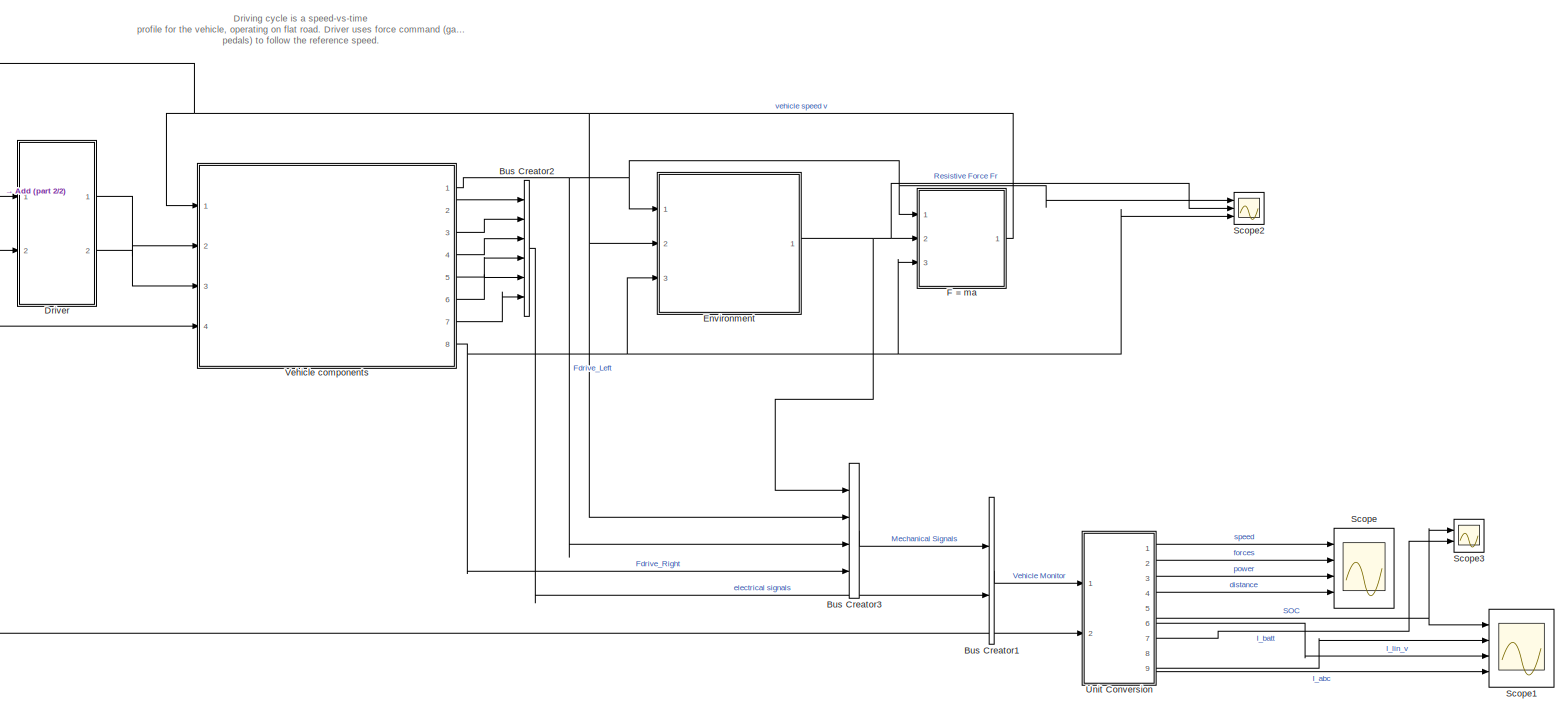
[diagram: root canvas - part 1/2, right side, full height]
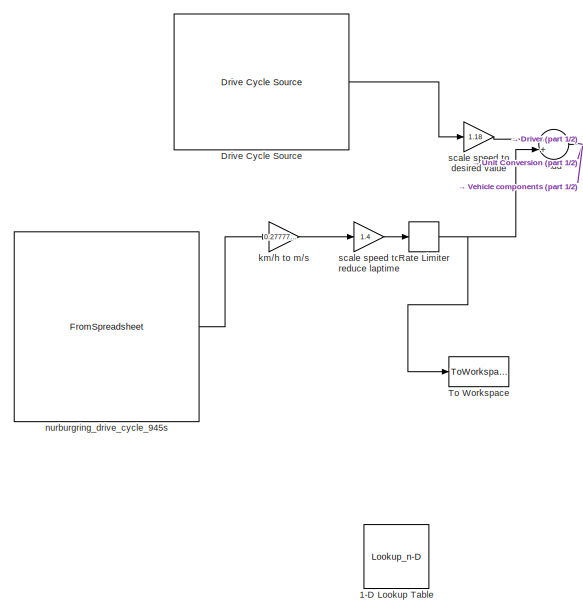
[diagram: root canvas - part 2/2, left side, full height]
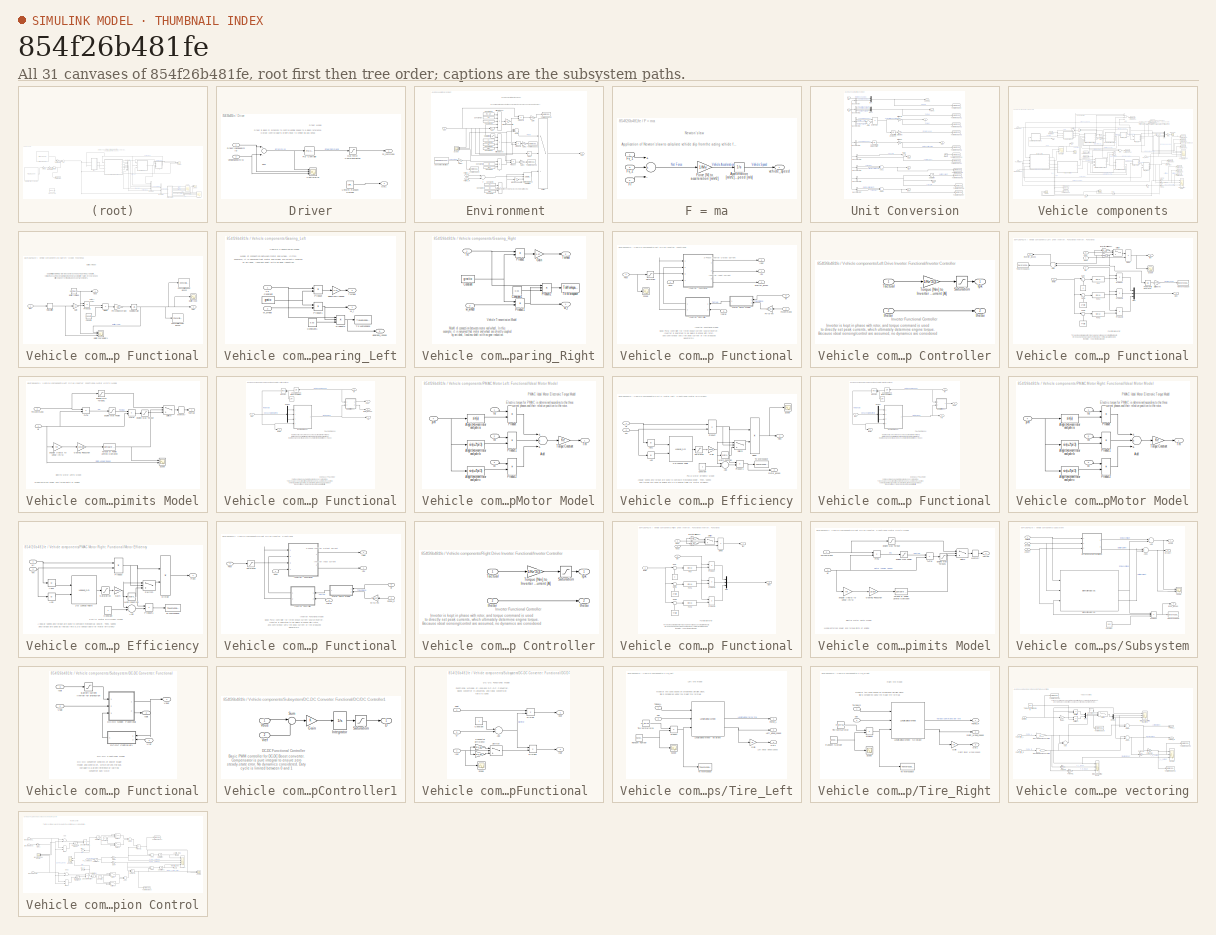
[diagram: thumbnail index - all 31 canvases of the model, root first then tree order]
MODEL slx_854f26b481fe
KIND model
CONFIG AbsTol = auto
CONFIG EnableMultiTasking = off
CONFIG FixedStep = auto
CONFIG MaxStep = auto
CONFIG MinStep = 1e-4
CONFIG RelTol = 3e-2
CONFIG SampleTimeConstraint = Unconstrained
CONFIG Solver = VariableStepAuto
CONFIG SolverName = VariableStepAuto
CONFIG StartTime = 0.0
CONFIG StopTime = 1400.0
BLOCK [Lookup_n-D] 1-D Lookup Table
  BreakpointsForDimension1 = [-5:5]
  InternalRulePriority = Speed
  NumberOfTableDimensions = 1
  Ports = [1, 1]
  RndMeth = Simplest
  Table = tanh([-5:5])
BLOCK [Sum] Add
  InputSameDT = off
  OutDataTypeStr = Inherit: Inherit via internal rule
  Ports = [2, 1]
  SaturateOnIntegerOverflow = off
BLOCK [BusCreator] Bus Creator1
  DisplayOption = bar
  InheritFromInputs = on
  Inputs = 2
  Ports = [2, 1]
BLOCK [BusCreator] Bus Creator2
  DisplayOption = bar
  InheritFromInputs = on
  Inputs = 6
  Ports = [6, 1]
BLOCK [BusCreator] Bus Creator3
  DisplayOption = bar
  InheritFromInputs = on
  Inputs = 4
  Ports = [4, 1]
BLOCK [Reference] Drive Cycle Source  REF=autolibshared/Drive Cycle Source
  AttributesFormatString = %<cycleVar> (%<tfinal>)
  Commented = on
  Ports = [0, 1]
  SourceBlock = autolibshared/Drive Cycle Source
  SourceProductBaseCode = PW
  SourceProductName = Powertrain Blockset
  SourceType = Drive Cycle Source
BLOCK [SubSystem] Driver
  AncestorBlock = Driver_Glider_Library/Driver
  Ports = [2, 2]
  RequestExecContextInheritance = off
BLOCK [Scope] Driver/Control error
  Floating = off
  NumInputPorts = 3
  Ports = [3]
  ScopeSpecificationString = Simulink.scopes.TimeScopeBlockCfg('CurrentConfiguration', extmgr.ConfigurationSet(extmgr.Configuration('Core','General UI',true),extmgr.Configuration('Core','Source UI',true),extmgr.Configuration('Sources','WiredSimulink',true,'DataLoggingVariableName','ScopeData6'),extmgr.Configuration('Visuals','Time Domain',true,'SerializedDisplays',{struct('MinYLimReal','-14.32197','MaxYLimReal','28.11068','YL...<+1442ch>
BLOCK [Inport] Driver/DriveCycleSpeed[m//s]
  IconDisplay = Port number
BLOCK [Outport] Driver/Fv_command
  IconDisplay = Port number
BLOCK [Saturate] Driver/Max Force Command limiter
  InputPortMap = u0
  LowerLimit = -Fv_max*2
  Ports = [1, 1]
  UpperLimit = Fv_max*12
BLOCK [Outport] Driver/Out1
  IconDisplay = Port number
  Port = 2
BLOCK [Reference] Driver/PID Controller  REF=simulink/Continuous/PID Controller
  Ports = [1, 1]
  SourceBlock = simulink/Continuous/PID Controller
  SourceProductBaseCode = SL
  SourceProductName = Simulink
  SourceType = PID 1dof
BLOCK [Sum] Driver/Sum
  InputSameDT = off
  Inputs = +-
  OutDataTypeStr = Inherit: Inherit via internal rule
  Ports = [2, 1]
  SaturateOnIntegerOverflow = off
BLOCK [UniformRandomNumber] Driver/Uniform Random Number
  Maximum = 90
  Minimum = -90
  SampleTime = 1
BLOCK [Inport] Driver/VehicleSpeed[m//s]
  IconDisplay = Port number
  Port = 2
BLOCK [SubSystem] Environment 
  Ports = [3, 1]
  RequestExecContextInheritance = off
BLOCK [Product] Environment /   
  Inputs = 3
  Ports = [3, 1]
  RndMeth = Floor
BLOCK [Product] Environment /   1
  Inputs = 3
  Ports = [3, 1]
  RndMeth = Floor
BLOCK [Sum] Environment /   2
  InputSameDT = off
  OutDataTypeStr = Inherit: Inherit via internal rule
  Ports = [2, 1]
  SaturateOnIntegerOverflow = off
BLOCK [Abs] Environment /Abs
BLOCK [Abs] Environment /Abs1
  SaturateOnIntegerOverflow = off
BLOCK [Gain] Environment /Bromsande kraft1
  Gain = 1/2
BLOCK [Gain] Environment /Bromsande kraft2
  Gain = -1
BLOCK [Constant] Environment /Constant1
  Value = grav
BLOCK [Constant] Environment /Constant13
  Value = rho_air
BLOCK [Constant] Environment /Constant14
  Value = grav
BLOCK [Constant] Environment /Constant15
  Value = Mv
BLOCK [Constant] Environment /Constant16
  Value = Cd
BLOCK [Constant] Environment /Constant18
  Value = Cr
BLOCK [Constant] Environment /Constant19
  Value = Av
BLOCK [Constant] Environment /Constant2
  Value = Mv
BLOCK [Constant] Environment /Constant3
  Value = Cr
BLOCK [Constant] Environment /Constant4
  Value = 9.81
BLOCK [Constant] Environment /Constant5
  Value = Mv
BLOCK [Inport] Environment /Fdrive_L
  IconDisplay = Port number
BLOCK [Inport] Environment /Fdrive_R
  IconDisplay = Port number
  Port = 3
BLOCK [Outport] Environment /Fres
  IconDisplay = Port number
  InitialOutput = 0
BLOCK [Gain] Environment /Gain
  Gain = 0.001
  OutDataTypeStr = Inherit: Inherit via internal rule
  ParamDataTypeStr = Inherit: Inherit via internal rule
  SaturateOnIntegerOverflow = off
BLOCK [Gain] Environment /Gain1
  Gain = 0.01
  OutDataTypeStr = Inherit: Inherit via internal rule
  ParamDataTypeStr = Inherit: Inherit via internal rule
  SaturateOnIntegerOverflow = off
BLOCK [Gain] Environment /Gain2
  Gain = 0.001
  OutDataTypeStr = Inherit: Inherit via internal rule
  ParamDataTypeStr = Inherit: Inherit via internal rule
  SaturateOnIntegerOverflow = off
BLOCK [Gain] Environment /Gain3
  Gain = 0.001
  OutDataTypeStr = Inherit: Inherit via internal rule
  ParamDataTypeStr = Inherit: Inherit via internal rule
  SaturateOnIntegerOverflow = off
BLOCK [Product] Environment /Product
  InputSameDT = off
  OutDataTypeStr = Inherit: Inherit via internal rule
  Ports = [2, 1]
  RndMeth = Floor
  SaturateOnIntegerOverflow = off
BLOCK [Product] Environment /Product1
  InputSameDT = off
  OutDataTypeStr = Inherit: Inherit via internal rule
  Ports = [2, 1]
  RndMeth = Floor
  SaturateOnIntegerOverflow = off
BLOCK [Product] Environment /Product2
  InputSameDT = off
  OutDataTypeStr = Inherit: Inherit via internal rule
  Ports = [2, 1]
  RndMeth = Floor
  SaturateOnIntegerOverflow = off
BLOCK [Reference] Environment /Roll Resistance Saturation  REF=simulink/Discontinuities/Saturation
Dynamic
  Ports = [3, 1]
  SourceBlock = simulink/Discontinuities/Saturation\nDynamic
  SourceProductBaseCode = SL
  SourceProductName = Simulink
  SourceType = Saturation Dynamic
BLOCK [Saturate] Environment /Saturation
  InputPortMap = u0
  LowerLimit = -1
  Ports = [1, 1]
  UpperLimit = 1
BLOCK [Scope] Environment /Scope
  Floating = off
  NumInputPorts = 3
  Ports = [3]
  ScopeSpecificationString = Simulink.scopes.TimeScopeBlockCfg('CurrentConfiguration', extmgr.ConfigurationSet(extmgr.Configuration('Core','General UI',true),extmgr.Configuration('Core','Source UI',true),extmgr.Configuration('Sources','WiredSimulink',true,'DataLoggingVariableName','ScopeData2'),extmgr.Configuration('Visuals','Time Domain',true,'SerializedDisplays',{struct('MinYLimReal','-0.4364','MaxYLimReal','0.34971','YLabe...<+1517ch>
BLOCK [Sum] Environment /Sum1
  Inputs = +++
  Ports = [3, 1]
BLOCK [Switch] Environment /Switch
  InputSameDT = off
  SaturateOnIntegerOverflow = off
BLOCK [ToWorkspace] Environment /To Workspace
  FixptAsFi = on
  MaxDataPoints = inf
  Ports = [1]
  SampleTime = -1
  Save2DSignal = 3-D array (concatenate along third dimension)
  SaveFormat = Structure With Time
  VariableName = slope
BLOCK [ToWorkspace] Environment /To Workspace1
  FixptAsFi = on
  MaxDataPoints = inf
  Ports = [1]
  SampleTime = s_time
  Save2DSignal = 3-D array (concatenate along third dimension)
  SaveFormat = Structure With Time
  VariableName = rolling_losses
BLOCK [ToWorkspace] Environment /To Workspace2
  FixptAsFi = on
  MaxDataPoints = inf
  Ports = [1]
  SampleTime = s_time
  Save2DSignal = 3-D array (concatenate along third dimension)
  SaveFormat = Structure With Time
  VariableName = aero_losses
BLOCK [ToWorkspace] Environment /To Workspace3
  FixptAsFi = on
  MaxDataPoints = inf
  Ports = [1]
  SampleTime = s_time
  Save2DSignal = 3-D array (concatenate along third dimension)
  SaveFormat = Structure With Time
  VariableName = incline_losses
BLOCK [Inport] Environment /Vev
  IconDisplay = Port number
  Port = 2
BLOCK [Product] Environment /air resistance
  Inputs = 5
  Ports = [5, 1]
  RndMeth = Floor
BLOCK [Product] Environment /roll resistance
  Inputs = 4
  Ports = [4, 1]
  RndMeth = Floor
BLOCK [FromSpreadsheet] Environment /slope profice of test track
  FileName = nurburg_data.xlsx
  OutDataTypeStr = double
  Ports = [0, 1]
  Range = d11:d844, i11:i844
  SampleTime = s_time
BLOCK [SubSystem] F = ma
  Ports = [3, 1]
  RequestExecContextInheritance = off
BLOCK [Sum] F = ma/   
  InputSameDT = off
  Inputs = ++-
  OutDataTypeStr = Inherit: Inherit via internal rule
  Ports = [3, 1]
  SaturateOnIntegerOverflow = off
BLOCK [Integrator] F = ma/Acceleration [m//s^2] to speed [m//s]
  Ports = [1, 1]
BLOCK [Gain] F = ma/Force [N] to acceleration [m//s^2]
  Gain = 1/Mv
  OutDataTypeStr = Inherit: Inherit via internal rule
  ParamDataTypeStr = Inherit: Inherit via internal rule
  SaturateOnIntegerOverflow = off
BLOCK [Inport] F = ma/Fr
  IconDisplay = Port number
  Port = 2
BLOCK [Inport] F = ma/Fv_1
  IconDisplay = Port number
BLOCK [Inport] F = ma/Fv_2
  IconDisplay = Port number
  Port = 3
BLOCK [Outport] F = ma/vehicle_speed
  IconDisplay = Port number
BLOCK [RateLimiter] Rate Limiter
  FallingSlewLimit = -2
  RisingSlewLimit = 2
  SampleTimeMode = inherited
BLOCK [Scope] Scope
  Floating = off
  NumInputPorts = 4
  Ports = [4]
  ScopeSpecificationString = Simulink.scopes.TimeScopeBlockCfg('CurrentConfiguration', extmgr.ConfigurationSet(extmgr.Configuration('Core','General UI',true),extmgr.Configuration('Core','Source UI',true),extmgr.Configuration('Sources','WiredSimulink',true,'DataLoggingSaveFormat','StructureWithTime','DataLoggingDecimation','1','DataLoggingDecimateData',true,'DataLoggingVariableName','ScopeData1'),extmgr.Configuration('Visuals'...<+3729ch>
BLOCK [Scope] Scope1
  Floating = off
  NumInputPorts = 4
  Ports = [4]
  ScopeSpecificationString = Simulink.scopes.TimeScopeBlockCfg('CurrentConfiguration', extmgr.ConfigurationSet(extmgr.Configuration('Core','General UI',true),extmgr.Configuration('Core','Source UI',true),extmgr.Configuration('Sources','WiredSimulink',true,'DataLoggingSaveFormat','StructureWithTime','DataLoggingDecimation','1','DataLoggingDecimateData',true),extmgr.Configuration('Visuals','Time Domain',true,'SerializedDisplays...<+3013ch>
BLOCK [Scope] Scope2
  Floating = off
  NumInputPorts = 3
  Ports = [3]
  ScopeSpecificationString = Simulink.scopes.TimeScopeBlockCfg('CurrentConfiguration', extmgr.ConfigurationSet(extmgr.Configuration('Core','General UI',true),extmgr.Configuration('Core','Source UI',true),extmgr.Configuration('Sources','WiredSimulink',true,'DataLoggingVariableName','ScopeData1'),extmgr.Configuration('Visuals','Time Domain',true,'SerializedDisplays',{struct('MinYLimReal','-3677.87871','MaxYLimReal','3831.6785',...<+1520ch>
BLOCK [Scope] Scope3
  Floating = off
  NumInputPorts = 2
  Ports = [2]
  ScopeSpecificationString = Simulink.scopes.TimeScopeBlockCfg('CurrentConfiguration', extmgr.ConfigurationSet(extmgr.Configuration('Core','General UI',true),extmgr.Configuration('Core','Source UI',true),extmgr.Configuration('Sources','WiredSimulink',true,'DataLoggingVariableName','ScopeData3'),extmgr.Configuration('Visuals','Time Domain',true,'SerializedDisplays',{struct('MinYLimReal','-690.75843','MaxYLimReal','4585.55269',...<+1418ch>
BLOCK [ToWorkspace] To Workspace
  Decimation = 2
  FixptAsFi = on
  MaxDataPoints = inf
  Ports = [1]
  SampleTime = -1
  Save2DSignal = 3-D array (concatenate along third dimension)
  SaveFormat = Structure With Time
  VariableName = nurburg_drive_cycle
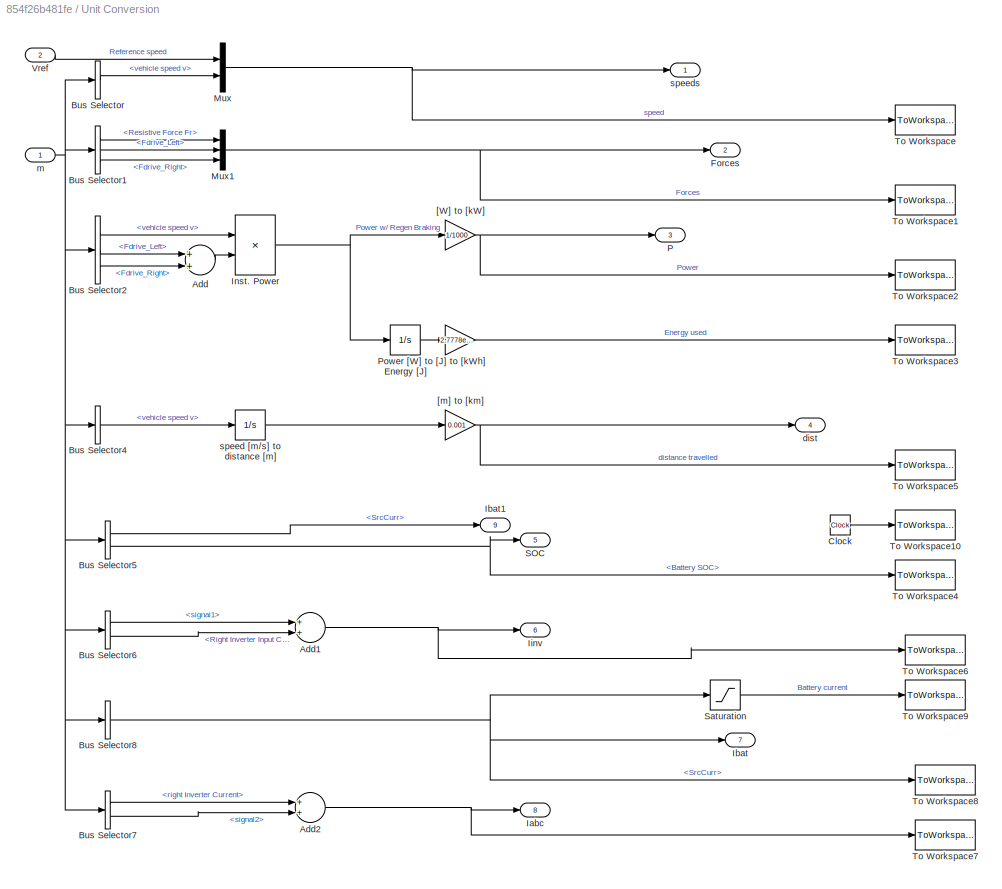
BLOCK [SubSystem] Unit Conversion
  Ports = [2, 9]
  RequestExecContextInheritance = off
BLOCK [Sum] Unit Conversion/Add
  InputSameDT = off
  OutDataTypeStr = Inherit: Inherit via internal rule
  Ports = [2, 1]
  SaturateOnIntegerOverflow = off
BLOCK [Sum] Unit Conversion/Add1
  InputSameDT = off
  OutDataTypeStr = Inherit: Inherit via internal rule
  Ports = [2, 1]
  SaturateOnIntegerOverflow = off
BLOCK [Sum] Unit Conversion/Add2
  InputSameDT = off
  OutDataTypeStr = Inherit: Inherit via internal rule
  Ports = [2, 1]
  SaturateOnIntegerOverflow = off
BLOCK [BusSelector] Unit Conversion/Bus Selector
  OutputAsBus = off
  OutputSignals = Mechanical Signals.vehicle speed v
  Ports = [1, 1]
BLOCK [BusSelector] Unit Conversion/Bus Selector1
  OutputAsBus = off
  OutputSignals = Mechanical Signals.Resistive Force Fr,Mechanical Signals.Fdrive_Left,Mechanical Signals.Fdrive_Right
  Ports = [1, 3]
BLOCK [BusSelector] Unit Conversion/Bus Selector2
  OutputAsBus = off
  OutputSignals = Mechanical Signals.vehicle speed v,Mechanical Signals.Fdrive_Left,Mechanical Signals.Fdrive_Right
  Ports = [1, 3]
BLOCK [BusSelector] Unit Conversion/Bus Selector4
  OutputAsBus = off
  OutputSignals = Mechanical Signals.vehicle speed v
  Ports = [1, 1]
BLOCK [BusSelector] Unit Conversion/Bus Selector5
  OutputAsBus = off
  OutputSignals = electrical signals.SrcCurr,electrical signals.Battery SOC
  Ports = [1, 2]
BLOCK [BusSelector] Unit Conversion/Bus Selector6
  OutputAsBus = off
  OutputSignals = electrical signals.signal1,electrical signals.Right Inverter Input Current
  Ports = [1, 2]
BLOCK [BusSelector] Unit Conversion/Bus Selector7
  OutputAsBus = off
  OutputSignals = electrical signals.right Inverter Current,electrical signals.signal2
  Ports = [1, 2]
BLOCK [BusSelector] Unit Conversion/Bus Selector8
  OutputAsBus = off
  OutputSignals = electrical signals.SrcCurr
  Ports = [1, 1]
BLOCK [Clock] Unit Conversion/Clock
BLOCK [Outport] Unit Conversion/Forces
  IconDisplay = Port number
  Port = 2
BLOCK [Outport] Unit Conversion/Iabc
  IconDisplay = Port number
  Port = 8
BLOCK [Outport] Unit Conversion/Ibat
  IconDisplay = Port number
  Port = 7
BLOCK [Outport] Unit Conversion/Ibat1
  IconDisplay = Port number
  Port = 9
BLOCK [Outport] Unit Conversion/Iinv
  IconDisplay = Port number
  Port = 6
BLOCK [Product] Unit Conversion/Inst. Power
  InputSameDT = off
  OutDataTypeStr = Inherit: Inherit via internal rule
  Ports = [2, 1]
  SaturateOnIntegerOverflow = off
BLOCK [Mux] Unit Conversion/Mux
  DisplayOption = bar
  Inputs = 2
  Ports = [2, 1]
BLOCK [Mux] Unit Conversion/Mux1
  DisplayOption = bar
  Inputs = 3
  Ports = [3, 1]
BLOCK [Outport] Unit Conversion/P
  IconDisplay = Port number
  Port = 3
BLOCK [Integrator] Unit Conversion/Power [W] to Energy [J]
  Ports = [1, 1]
BLOCK [Outport] Unit Conversion/SOC
  IconDisplay = Port number
  Port = 5
BLOCK [Saturate] Unit Conversion/Saturation
  InputPortMap = u0
  LowerLimit = 0
  Ports = [1, 1]
  UpperLimit = 1000
BLOCK [ToWorkspace] Unit Conversion/To Workspace
  MaxDataPoints = inf
  Ports = [1]
  SampleTime = s_time
  SaveFormat = Structure With Time
  VariableName = speeds
BLOCK [ToWorkspace] Unit Conversion/To Workspace1
  MaxDataPoints = inf
  Ports = [1]
  SampleTime = s_time
  SaveFormat = Structure With Time
  VariableName = Forces
BLOCK [ToWorkspace] Unit Conversion/To Workspace10
  Decimation = 3
  MaxDataPoints = inf
  Ports = [1]
  SampleTime = tstep
  Save2DSignal = 2-D array (concatenate along first dimension)
  VariableName = t_step
BLOCK [ToWorkspace] Unit Conversion/To Workspace2
  MaxDataPoints = inf
  Ports = [1]
  SampleTime = s_time
  SaveFormat = Structure With Time
  VariableName = P_single
BLOCK [ToWorkspace] Unit Conversion/To Workspace3
  MaxDataPoints = inf
  Ports = [1]
  SampleTime = s_time
  SaveFormat = Structure With Time
  VariableName = E_single
BLOCK [ToWorkspace] Unit Conversion/To Workspace4
  MaxDataPoints = inf
  Ports = [1]
  SampleTime = s_time
  Save2DSignal = 2-D array (concatenate along first dimension)
  SaveFormat = Structure With Time
  VariableName = SOC_single
BLOCK [ToWorkspace] Unit Conversion/To Workspace5
  MaxDataPoints = inf
  Ports = [1]
  SampleTime = tstep
  Save2DSignal = 2-D array (concatenate along first dimension)
  SaveFormat = Structure With Time
  VariableName = dist_single
BLOCK [ToWorkspace] Unit Conversion/To Workspace6
  MaxDataPoints = inf
  Ports = [1]
  SampleTime = s_time
  SaveFormat = Structure With Time
  VariableName = Iinv
BLOCK [ToWorkspace] Unit Conversion/To Workspace7
  MaxDataPoints = inf
  Ports = [1]
  SampleTime = s_time
  SaveFormat = Structure With Time
  VariableName = Iabc
BLOCK [ToWorkspace] Unit Conversion/To Workspace8
  MaxDataPoints = inf
  Ports = [1]
  SampleTime = s_time
  SaveFormat = Structure With Time
  VariableName = Ibat
BLOCK [ToWorkspace] Unit Conversion/To Workspace9
  MaxDataPoints = inf
  Ports = [1]
  SampleTime = s_time
  SaveFormat = Structure With Time
  VariableName = Ibat1
BLOCK [Inport] Unit Conversion/Vref
  IconDisplay = Port number
  Port = 2
BLOCK [Gain] Unit Conversion/[J] to [kWh]
  Gain = 2.7778e-7
  OutDataTypeStr = Inherit: Inherit via internal rule
  ParamDataTypeStr = Inherit: Inherit via internal rule
  SaturateOnIntegerOverflow = off
BLOCK [Gain] Unit Conversion/[W] to [kW]
  Gain = 1/1000
  OutDataTypeStr = Inherit: Inherit via internal rule
  ParamDataTypeStr = Inherit: Inherit via internal rule
  SaturateOnIntegerOverflow = off
BLOCK [Gain] Unit Conversion/[m] to [km]
  Gain = 0.001
  OutDataTypeStr = Inherit: Inherit via internal rule
  ParamDataTypeStr = Inherit: Inherit via internal rule
  SaturateOnIntegerOverflow = off
BLOCK [Outport] Unit Conversion/dist
  IconDisplay = Port number
  Port = 4
BLOCK [Inport] Unit Conversion/m
  IconDisplay = Port number
BLOCK [Integrator] Unit Conversion/speed [m//s] to distance [m]
  Ports = [1, 1]
BLOCK [Outport] Unit Conversion/speeds
  IconDisplay = Port number
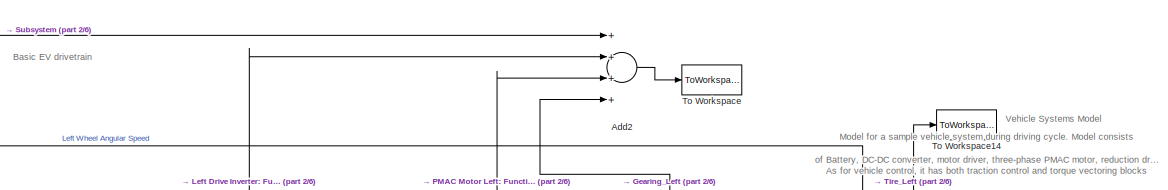
[diagram: Vehicle components - part 1/6, top center region]
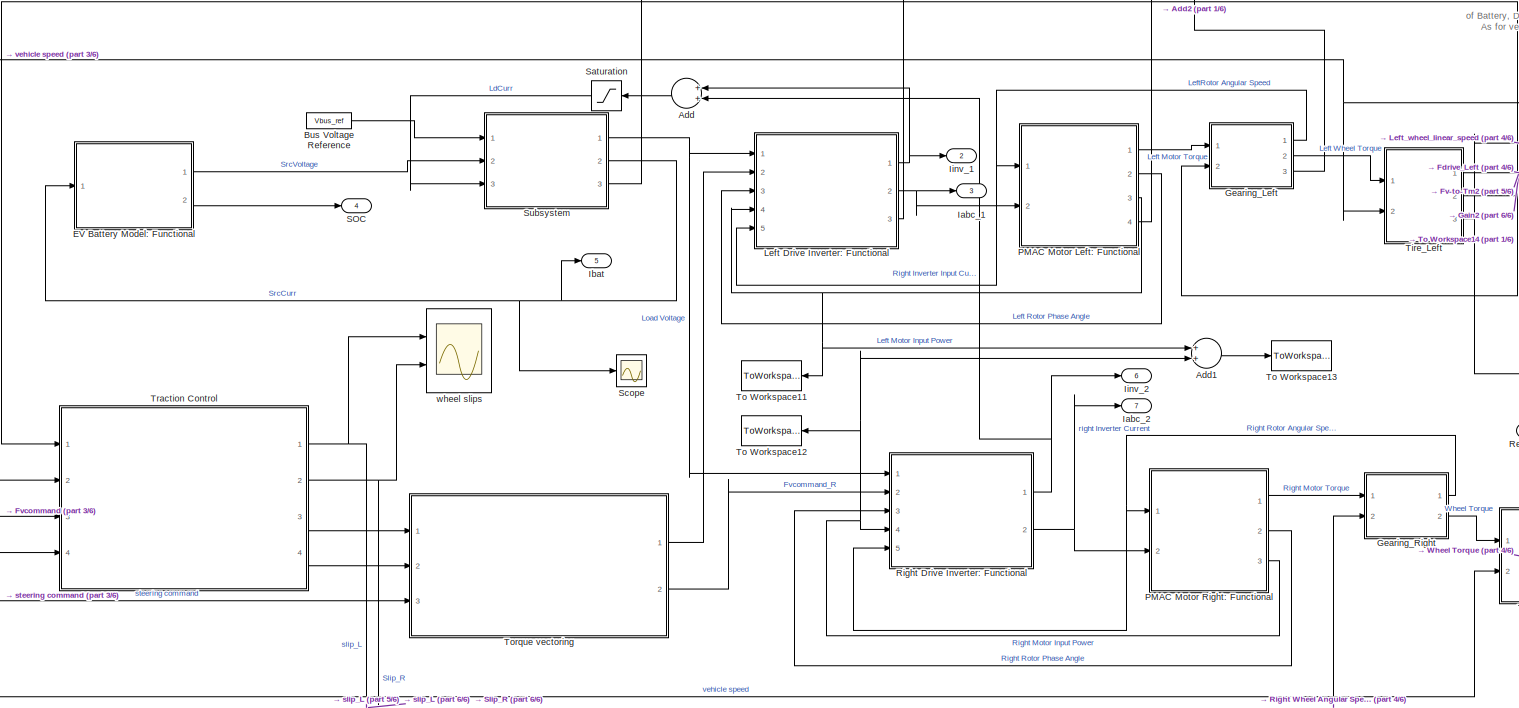
[diagram: Vehicle components - part 2/6, central region]
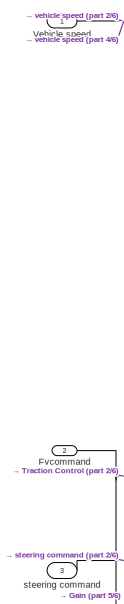
[diagram: Vehicle components - part 3/6, middle left region]
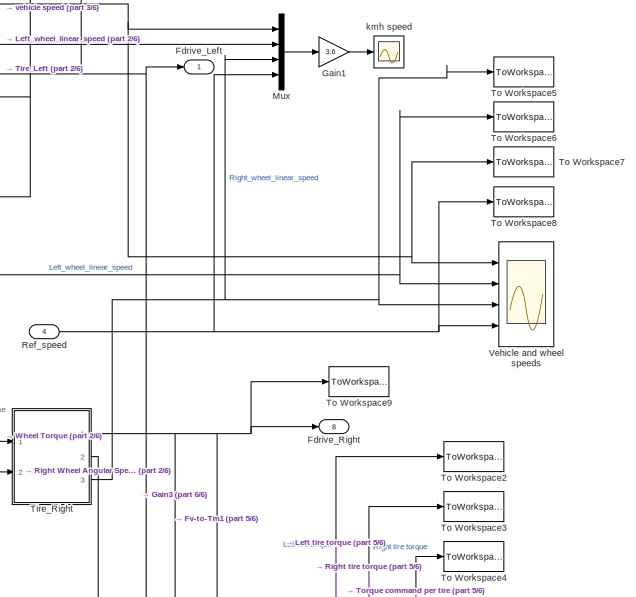
[diagram: Vehicle components - part 4/6, middle right region]
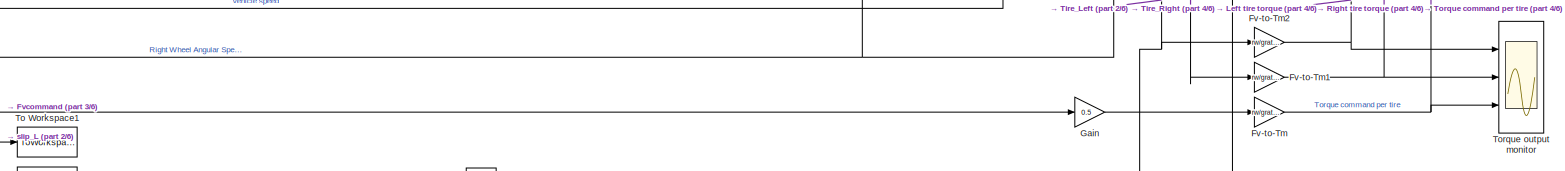
[diagram: Vehicle components - part 5/6, bottom center region]
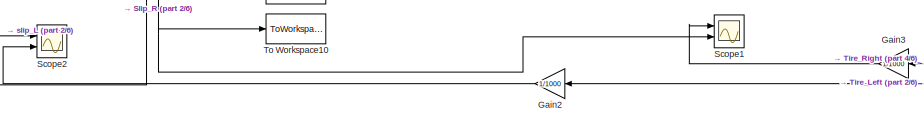
[diagram: Vehicle components - part 6/6, bottom center region]
BLOCK [SubSystem] Vehicle components
  Ports = [4, 8]
  RequestExecContextInheritance = off
BLOCK [Sum] Vehicle components/Add
  InputSameDT = off
  OutDataTypeStr = Inherit: Inherit via internal rule
  Ports = [2, 1]
  SaturateOnIntegerOverflow = off
BLOCK [Sum] Vehicle components/Add1
  InputSameDT = off
  OutDataTypeStr = Inherit: Inherit via internal rule
  Ports = [2, 1]
  SaturateOnIntegerOverflow = off
BLOCK [Sum] Vehicle components/Add2
  InputSameDT = off
  Inputs = ++++
  OutDataTypeStr = Inherit: Inherit via internal rule
  Ports = [4, 1]
  SaturateOnIntegerOverflow = off
BLOCK [Constant] Vehicle components/Bus Voltage Reference
  Value = Vbus_ref
BLOCK [SubSystem] Vehicle components/EV Battery Model: Functional
  Ports = [1, 2]
  RequestExecContextInheritance = off
BLOCK [Scope] Vehicle components/EV Battery Model: Functional/Battery SOC 
  Floating = off
  NumInputPorts = 1
  Ports = [1]
  ScopeSpecificationString = Simulink.scopes.TimeScopeBlockCfg('CurrentConfiguration', extmgr.ConfigurationSet(extmgr.Configuration('Core','General UI',true),extmgr.Configuration('Core','Source UI',true),extmgr.Configuration('Sources','WiredSimulink',true,'DataLoggingVariableName','ScopeData1'),extmgr.Configuration('Visuals','Time Domain',true,'SerializedDisplays',{struct('MinYLimReal','27.20128','MaxYLimReal','85.86652','YLa...<+1476ch>
BLOCK [Constant] Vehicle components/EV Battery Model: Functional/Battery Voltage
  Value = batt_max_v
BLOCK [Scope] Vehicle components/EV Battery Model: Functional/Battery parameters
  Floating = off
  NumInputPorts = 3
  Ports = [3]
  ScopeSpecificationString = Simulink.scopes.TimeScopeBlockCfg('CurrentConfiguration', extmgr.ConfigurationSet(extmgr.Configuration('Core','General UI',true),extmgr.Configuration('Core','Source UI',true),extmgr.Configuration('Sources','WiredSimulink',true,'DataLoggingVariableName','Battery_log','DataLogging',true,'DataLoggingSaveFormat','StructureWithTime'),extmgr.Configuration('Visuals','Time Domain',true,'SerializedDisplays...<+1618ch>
BLOCK [Constant] Vehicle components/EV Battery Model: Functional/Capacity
  Value = Capacity
BLOCK [Reference] Vehicle components/EV Battery Model: Functional/Check Static Lower Bound  REF=simulink/Model
Verification/Check Static 
Lower Bound
  Description = 0 <= u
  Ports = [1]
  SourceBlock = simulink/Model\nVerification/Check Static \nLower Bound
  SourceProductBaseCode = SL
  SourceProductName = Simulink
  SourceType = Checks_SMin
BLOCK [Reference] Vehicle components/EV Battery Model: Functional/Check Static Upper Bound  REF=simulink/Model
Verification/Check Static 
Upper Bound
  Description = u <= 100
  Ports = [1]
  SourceBlock = simulink/Model\nVerification/Check Static \nUpper Bound
  SourceProductBaseCode = SL
  SourceProductName = Simulink
  SourceType = Checks_SMax
BLOCK [Product] Vehicle components/EV Battery Model: Functional/Divide
  InputSameDT = off
  Inputs = */
  OutDataTypeStr = Inherit: Inherit via internal rule
  Ports = [2, 1]
  RndMeth = Floor
  SaturateOnIntegerOverflow = off
BLOCK [Gain] Vehicle components/EV Battery Model: Functional/Gain
  Gain = -1
  OutDataTypeStr = Inherit: Inherit via internal rule
  ParamDataTypeStr = Inherit: Inherit via internal rule
  SaturateOnIntegerOverflow = off
BLOCK [Inport] Vehicle components/EV Battery Model: Functional/Ibat
  IconDisplay = Port number
BLOCK [Gain] Vehicle components/EV Battery Model: Functional/Percent Conversion
  Gain = 100
  OutDataTypeStr = Inherit: Inherit via internal rule
  ParamDataTypeStr = Inherit: Inherit via internal rule
  SaturateOnIntegerOverflow = off
BLOCK [Product] Vehicle components/EV Battery Model: Functional/Product1
  InputSameDT = off
  OutDataTypeStr = Inherit: Inherit via internal rule
  Ports = [2, 1]
  SaturateOnIntegerOverflow = off
BLOCK [RateLimiter] Vehicle components/EV Battery Model: Functional/Rate Limiter
  FallingSlewLimit = -3
  RisingSlewLimit = 3
  SampleTimeMode = inherited
BLOCK [Outport] Vehicle components/EV Battery Model: Functional/SOC
  IconDisplay = Port number
  Port = 2
BLOCK [Integrator] Vehicle components/EV Battery Model: Functional/SOC Integrator
  InitialCondition = SOC_0
  Ports = [1, 1]
  ZeroCross = off
BLOCK [Outport] Vehicle components/EV Battery Model: Functional/Vbat
  IconDisplay = Port number
BLOCK [Outport] Vehicle components/Fdrive_Left 
  IconDisplay = Port number
BLOCK [Outport] Vehicle components/Fdrive_Right 
  IconDisplay = Port number
  Port = 8
BLOCK [Gain] Vehicle components/Fv-to-Tm
  Gain = rw/gratio
  OutDataTypeStr = Inherit: Inherit via internal rule
  ParamDataTypeStr = Inherit: Inherit via internal rule
  SaturateOnIntegerOverflow = off
BLOCK [Gain] Vehicle components/Fv-to-Tm1
  Gain = rw/gratio
  OutDataTypeStr = Inherit: Inherit via internal rule
  ParamDataTypeStr = Inherit: Inherit via internal rule
  SaturateOnIntegerOverflow = off
BLOCK [Gain] Vehicle components/Fv-to-Tm2
  Gain = rw/gratio
  OutDataTypeStr = Inherit: Inherit via internal rule
  ParamDataTypeStr = Inherit: Inherit via internal rule
  SaturateOnIntegerOverflow = off
BLOCK [Inport] Vehicle components/Fvcommand
  IconDisplay = Port number
  Port = 2
BLOCK [Gain] Vehicle components/Gain
  Gain = 0.5
  OutDataTypeStr = Inherit: Inherit via internal rule
  ParamDataTypeStr = Inherit: Inherit via internal rule
  SaturateOnIntegerOverflow = off
BLOCK [Gain] Vehicle components/Gain1
  Gain = 3.6
  OutDataTypeStr = Inherit: Inherit via internal rule
  ParamDataTypeStr = Inherit: Inherit via internal rule
  SaturateOnIntegerOverflow = off
BLOCK [Gain] Vehicle components/Gain2
  Gain = 1/1000
  OutDataTypeStr = Inherit: Inherit via internal rule
  ParamDataTypeStr = Inherit: Inherit via internal rule
  SaturateOnIntegerOverflow = off
BLOCK [Gain] Vehicle components/Gain3
  Gain = 1/1000
  OutDataTypeStr = Inherit: Inherit via internal rule
  ParamDataTypeStr = Inherit: Inherit via internal rule
  SaturateOnIntegerOverflow = off
BLOCK [SubSystem] Vehicle components/Gearing_Left
  Ports = [2, 3]
  RequestExecContextInheritance = off
BLOCK [Constant] Vehicle components/Gearing_Left/Constant
  Value = gratio
BLOCK [Constant] Vehicle components/Gearing_Left/Constant1
  Value = 0.03
BLOCK [Product] Vehicle components/Gearing_Left/Product
  InputSameDT = off
  OutDataTypeStr = Inherit: Inherit via internal rule
  Ports = [2, 1]
  SaturateOnIntegerOverflow = off
BLOCK [Product] Vehicle components/Gearing_Left/Product1
  InputSameDT = off
  OutDataTypeStr = Inherit: Inherit via internal rule
  Ports = [2, 1]
  SaturateOnIntegerOverflow = off
BLOCK [Product] Vehicle components/Gearing_Left/Product2
  InputSameDT = off
  Inputs = 3
  OutDataTypeStr = Inherit: Inherit via internal rule
  Ports = [3, 1]
  RndMeth = Floor
  SaturateOnIntegerOverflow = off
BLOCK [Inport] Vehicle components/Gearing_Left/Te
  IconDisplay = Port number
BLOCK [ToWorkspace] Vehicle components/Gearing_Left/To Workspace
  FixptAsFi = on
  MaxDataPoints = inf
  Ports = [1]
  SampleTime = s_time
  Save2DSignal = 3-D array (concatenate along third dimension)
  SaveFormat = Structure With Time
  VariableName = gearbox_losses_l
BLOCK [Outport] Vehicle components/Gearing_Left/Twheel
  IconDisplay = Port number
  Port = 2
BLOCK [Outport] Vehicle components/Gearing_Left/gearbox_losses
  IconDisplay = Port number
  Port = 3
BLOCK [Gain] Vehicle components/Gearing_Left/geartrain losses
  Gain = 0.97
  OutDataTypeStr = Inherit: Inherit via internal rule
  ParamDataTypeStr = Inherit: Inherit via internal rule
  SaturateOnIntegerOverflow = off
BLOCK [Outport] Vehicle components/Gearing_Left/w_r
  IconDisplay = Port number
BLOCK [Inport] Vehicle components/Gearing_Left/w_wheel
  IconDisplay = Port number
  Port = 2
BLOCK [SubSystem] Vehicle components/Gearing_Right
  Ports = [2, 2]
  RequestExecContextInheritance = off
BLOCK [Constant] Vehicle components/Gearing_Right/Constant
  Value = gratio
BLOCK [Constant] Vehicle components/Gearing_Right/Constant1
  Value = 0.03
BLOCK [Gain] Vehicle components/Gearing_Right/Gain
  Gain = 0.97
  OutDataTypeStr = Inherit: Inherit via internal rule
  ParamDataTypeStr = Inherit: Inherit via internal rule
  SaturateOnIntegerOverflow = off
BLOCK [Product] Vehicle components/Gearing_Right/Product
  InputSameDT = off
  OutDataTypeStr = Inherit: Inherit via internal rule
  Ports = [2, 1]
  SaturateOnIntegerOverflow = off
BLOCK [Product] Vehicle components/Gearing_Right/Product1
  InputSameDT = off
  OutDataTypeStr = Inherit: Inherit via internal rule
  Ports = [2, 1]
  SaturateOnIntegerOverflow = off
BLOCK [Product] Vehicle components/Gearing_Right/Product2
  InputSameDT = off
  Inputs = 3
  OutDataTypeStr = Inherit: Inherit via internal rule
  Ports = [3, 1]
  RndMeth = Floor
  SaturateOnIntegerOverflow = off
BLOCK [Inport] Vehicle components/Gearing_Right/Te
  IconDisplay = Port number
BLOCK [ToWorkspace] Vehicle components/Gearing_Right/To Workspace
  FixptAsFi = on
  MaxDataPoints = inf
  Ports = [1]
  SampleTime = s_time
  Save2DSignal = 3-D array (concatenate along third dimension)
  SaveFormat = Structure With Time
  VariableName = gearbox_losses_r
BLOCK [Outport] Vehicle components/Gearing_Right/Twheel
  IconDisplay = Port number
  Port = 2
BLOCK [Outport] Vehicle components/Gearing_Right/w_r
  IconDisplay = Port number
BLOCK [Inport] Vehicle components/Gearing_Right/w_wheel
  IconDisplay = Port number
  Port = 2
BLOCK [Outport] Vehicle components/Iabc_1
  IconDisplay = Port number
  Port = 3
BLOCK [Outport] Vehicle components/Iabc_2
  IconDisplay = Port number
  Port = 7
BLOCK [Outport] Vehicle components/Ibat
  IconDisplay = Port number
  Port = 5
BLOCK [Outport] Vehicle components/Iinv_1
  IconDisplay = Port number
  Port = 2
BLOCK [Outport] Vehicle components/Iinv_2
  IconDisplay = Port number
  Port = 6
BLOCK [SubSystem] Vehicle components/Left Drive Inverter: Functional
  Ports = [5, 3]
  RequestExecContextInheritance = off
BLOCK [Gain] Vehicle components/Left Drive Inverter: Functional/Fv-to-Tm
  Gain = rw/gratio
  OutDataTypeStr = Inherit: Inherit via internal rule
  ParamDataTypeStr = Inherit: Inherit via internal rule
  SaturateOnIntegerOverflow = off
BLOCK [Inport] Vehicle components/Left Drive Inverter: Functional/Fvcommand
  IconDisplay = Port number
  Port = 2
BLOCK [Outport] Vehicle components/Left Drive Inverter: Functional/Iabc
  IconDisplay = Port number
  Port = 2
BLOCK [Outport] Vehicle components/Left Drive Inverter: Functional/Iinv
  IconDisplay = Port number
BLOCK [SubSystem] Vehicle components/Left Drive Inverter: Functional/Inverter Controller
  Ports = [2, 2]
  RequestExecContextInheritance = off
BLOCK [Outport] Vehicle components/Left Drive Inverter: Functional/Inverter Controller/Ipk
  IconDisplay = Port number
BLOCK [Saturate] Vehicle components/Left Drive Inverter: Functional/Inverter Controller/Saturation
  InputPortMap = u0
  LowerLimit = -500
  Ports = [1, 1]
  UpperLimit = 500
BLOCK [Inport] Vehicle components/Left Drive Inverter: Functional/Inverter Controller/Tactual
  IconDisplay = Port number
BLOCK [Gain] Vehicle components/Left Drive Inverter: Functional/Inverter Controller/Torque [Nm] to Inverter Peak Current [A]
  Gain = 1/Ke*2/3
  OutDataTypeStr = Inherit: Inherit via internal rule
  ParamDataTypeStr = Inherit: Inherit via internal rule
  SaturateOnIntegerOverflow = off
BLOCK [Outport] Vehicle components/Left Drive Inverter: Functional/Inverter Controller/thetai
  IconDisplay = Port number
  Port = 2
BLOCK [Inport] Vehicle components/Left Drive Inverter: Functional/Inverter Controller/thetar
  IconDisplay = Port number
  Port = 2
BLOCK [SubSystem] Vehicle components/Left Drive Inverter: Functional/Inverter: Functional
  Ports = [4, 3]
  RequestExecContextInheritance = off
BLOCK [Constant] Vehicle components/Left Drive Inverter: Functional/Inverter: Functional/ 
  Value = 0
BLOCK [Constant] Vehicle components/Left Drive Inverter: Functional/Inverter: Functional/   
  Value = 2*pi/3
BLOCK [Constant] Vehicle components/Left Drive Inverter: Functional/Inverter: Functional/    
  Value = 4*pi/3
BLOCK [Fcn] Vehicle components/Left Drive Inverter: Functional/Inverter: Functional/ Fcn
  Expr = sin(u)
BLOCK [Sum] Vehicle components/Left Drive Inverter: Functional/Inverter: Functional/Add
  InputSameDT = off
  Inputs = +-
  OutDataTypeStr = Inherit: Inherit via internal rule
  Ports = [2, 1]
  SaturateOnIntegerOverflow = off
BLOCK [Product] Vehicle components/Left Drive Inverter: Functional/Inverter: Functional/Divide
  InputSameDT = off
  Inputs = */
  OutDataTypeStr = Inherit: Inherit via internal rule
  Ports = [2, 1]
  RndMeth = Floor
  SaturateOnIntegerOverflow = off
BLOCK [Fcn] Vehicle components/Left Drive Inverter: Functional/Inverter: Functional/Fcn1
  Expr = sin(u)
BLOCK [Fcn] Vehicle components/Left Drive Inverter: Functional/Inverter: Functional/Fcn2
  Expr = sin(u)
BLOCK [Outport] Vehicle components/Left Drive Inverter: Functional/Inverter: Functional/Iabc
  IconDisplay = Port number
BLOCK [Outport] Vehicle components/Left Drive Inverter: Functional/Inverter: Functional/Iinv
  IconDisplay = Port number
  Port = 2
BLOCK [Gain] Vehicle components/Left Drive Inverter: Functional/Inverter: Functional/Inverter Efficiency
  Gain = inv_eff-0.002*(front_motor+rear_motor)
  OutDataTypeStr = Inherit: Inherit via internal rule
  ParamDataTypeStr = Inherit: Inherit via internal rule
  SaturateOnIntegerOverflow = off
BLOCK [Inport] Vehicle components/Left Drive Inverter: Functional/Inverter: Functional/Ipk
  IconDisplay = Port number
  Port = 2
BLOCK [Mux] Vehicle components/Left Drive Inverter: Functional/Inverter: Functional/Mux
  DisplayOption = bar
  Inputs = 3
  Ports = [3, 1]
BLOCK [Inport] Vehicle components/Left Drive Inverter: Functional/Inverter: Functional/Pout
  IconDisplay = Port number
  Port = 3
BLOCK [Integrator] Vehicle components/Left Drive Inverter: Functional/Inverter: Functional/Power [W] to Energy [J]
  Ports = [1, 1]
BLOCK [Product] Vehicle components/Left Drive Inverter: Functional/Inverter: Functional/Product
  InputSameDT = off
  OutDataTypeStr = Inherit: Inherit via internal rule
  Ports = [2, 1]
  SaturateOnIntegerOverflow = off
BLOCK [Product] Vehicle components/Left Drive Inverter: Functional/Inverter: Functional/Product2
  InputSameDT = off
  OutDataTypeStr = Inherit: Inherit via internal rule
  Ports = [2, 1]
  SaturateOnIntegerOverflow = off
BLOCK [Product] Vehicle components/Left Drive Inverter: Functional/Inverter: Functional/Product3
  InputSameDT = off
  OutDataTypeStr = Inherit: Inherit via internal rule
  Ports = [2, 1]
  SaturateOnIntegerOverflow = off
BLOCK [Scope] Vehicle components/Left Drive Inverter: Functional/Inverter: Functional/Scope
  Floating = off
  NumInputPorts = 1
  Ports = [1]
  ScopeSpecificationString = Simulink.scopes.TimeScopeBlockCfg('CurrentConfiguration', extmgr.ConfigurationSet(extmgr.Configuration('Core','General UI',true),extmgr.Configuration('Core','Source UI',true),extmgr.Configuration('Sources','WiredSimulink',true,'DataLoggingVariableName','ScopeData1'),extmgr.Configuration('Visuals','Time Domain',true,'SerializedDisplays',{struct('MinYLimReal','-78.764','MaxYLimReal','194.32383','YLa...<+1400ch>
BLOCK [Sum] Vehicle components/Left Drive Inverter: Functional/Inverter: Functional/Sum
  IconShape = round
  InputSameDT = off
  Inputs = |+-
  OutDataTypeStr = Inherit: Inherit via internal rule
  Ports = [2, 1]
  SaturateOnIntegerOverflow = off
BLOCK [Sum] Vehicle components/Left Drive Inverter: Functional/Inverter: Functional/Sum1
  IconShape = round
  InputSameDT = off
  Inputs = |+-
  OutDataTypeStr = Inherit: Inherit via internal rule
  Ports = [2, 1]
  SaturateOnIntegerOverflow = off
BLOCK [Sum] Vehicle components/Left Drive Inverter: Functional/Inverter: Functional/Sum2
  IconShape = round
  InputSameDT = off
  Inputs = |+-
  OutDataTypeStr = Inherit: Inherit via internal rule
  Ports = [2, 1]
  SaturateOnIntegerOverflow = off
BLOCK [Switch] Vehicle components/Left Drive Inverter: Functional/Inverter: Functional/Switch
  InputSameDT = off
  SaturateOnIntegerOverflow = off
BLOCK [ToWorkspace] Vehicle components/Left Drive Inverter: Functional/Inverter: Functional/To Workspace
  FixptAsFi = on
  MaxDataPoints = inf
  Ports = [1]
  SampleTime = s_time
  Save2DSignal = 3-D array (concatenate along third dimension)
  SaveFormat = Structure With Time
  VariableName = energy_regen
BLOCK [ToWorkspace] Vehicle components/Left Drive Inverter: Functional/Inverter: Functional/To Workspace1
  FixptAsFi = on
  MaxDataPoints = inf
  Ports = [1]
  SampleTime = -1
  Save2DSignal = 3-D array (concatenate along third dimension)
  SaveFormat = Timeseries
  VariableName = inverter_losses_single
BLOCK [Inport] Vehicle components/Left Drive Inverter: Functional/Inverter: Functional/Vbus
  IconDisplay = Port number
  Port = 4
BLOCK [Gain] Vehicle components/Left Drive Inverter: Functional/Inverter: Functional/[J] to [kWh]
  Gain = 2.7778e-7
  OutDataTypeStr = Inherit: Inherit via internal rule
  ParamDataTypeStr = Inherit: Inherit via internal rule
  SaturateOnIntegerOverflow = off
BLOCK [Outport] Vehicle components/Left Drive Inverter: Functional/Inverter: Functional/inverter_losses
  IconDisplay = Port number
  Port = 3
BLOCK [Inport] Vehicle components/Left Drive Inverter: Functional/Inverter: Functional/thetai
  IconDisplay = Port number
BLOCK [SubSystem] Vehicle components/Left Drive Inverter: Functional/Motor Limits Model
  Ports = [2, 1]
  RequestExecContextInheritance = off
BLOCK [Saturate] Vehicle components/Left Drive Inverter: Functional/Motor Limits Model/Engine Max Power
  InputPortMap = u0
  LowerLimit = -Pe_max*0.5*(0.5*front_motor+0.5*rear_motor)
  Ports = [1, 1]
  UpperLimit = Pe_max*0.5*(0.5*front_motor+0.5*rear_motor)
BLOCK [Saturate] Vehicle components/Left Drive Inverter: Functional/Motor Limits Model/Engine Max Torque
  InputPortMap = u0
  LowerLimit = -Te_max*1.3
  Ports = [1, 1]
  UpperLimit = Te_max*1.3
BLOCK [Saturate] Vehicle components/Left Drive Inverter: Functional/Motor Limits Model/Engine Max Torque1
  InputPortMap = u0
  LowerLimit = -Te_max*0.5*(0.5*front_motor+0.5*rear_motor)
  Ports = [1, 1]
  UpperLimit = Te_max*0.5*(0.5*front_motor+0.5*rear_motor)
BLOCK [Gain] Vehicle components/Left Drive Inverter: Functional/Motor Limits Model/Gearing Reduction
  Gain = 1/gratio
  OutDataTypeStr = Inherit: Inherit via internal rule
  ParamDataTypeStr = Inherit: Inherit via internal rule
  SaturateOnIntegerOverflow = off
BLOCK [Memory] Vehicle components/Left Drive Inverter: Functional/Motor Limits Model/Memory
BLOCK [Product] Vehicle components/Left Drive Inverter: Functional/Motor Limits Model/P=Tw
  InputSameDT = off
  OutDataTypeStr = Inherit: Inherit via internal rule
  Ports = [2, 1]
  SaturateOnIntegerOverflow = off
BLOCK [Scope] Vehicle components/Left Drive Inverter: Functional/Motor Limits Model/Scope
  Floating = off
  NumInputPorts = 2
  Ports = [2]
  ScopeSpecificationString = Simulink.scopes.TimeScopeBlockCfg('CurrentConfiguration', extmgr.ConfigurationSet(extmgr.Configuration('Core','General UI',true),extmgr.Configuration('Core','Source UI',true),extmgr.Configuration('Sources','WiredSimulink',true,'DataLoggingVariableName','ScopeData9'),extmgr.Configuration('Visuals','Time Domain',true,'SerializedDisplays',{struct('MinYLimReal','-275.5477','MaxYLimReal','1219.99712','...<+1456ch>
BLOCK [Switch] Vehicle components/Left Drive Inverter: Functional/Motor Limits Model/Switch
  Criteria = u2 ~= 0
  InputSameDT = off
  SaturateOnIntegerOverflow = off
BLOCK [Product] Vehicle components/Left Drive Inverter: Functional/Motor Limits Model/T=P//w
  InputSameDT = off
  Inputs = */
  OutDataTypeStr = Inherit: Inherit via internal rule
  Ports = [2, 1]
  RndMeth = Floor
  SaturateOnIntegerOverflow = off
BLOCK [Outport] Vehicle components/Left Drive Inverter: Functional/Motor Limits Model/Tactual
  IconDisplay = Port number
BLOCK [Inport] Vehicle components/Left Drive Inverter: Functional/Motor Limits Model/Tmcommand
  IconDisplay = Port number
  Port = 2
BLOCK [Reference] Vehicle components/Left Drive Inverter: Functional/Motor Limits Model/Torque or Power Limited Operation  REF=simulink/Logic and Bit
Operations/Compare
To Constant
  Ports = [1, 1]
  SourceBlock = simulink/Logic and Bit\nOperations/Compare\nTo Constant
  SourceProductBaseCode = SL
  SourceProductName = Simulink
  SourceType = Compare To Constant
BLOCK [Gain] Vehicle components/Left Drive Inverter: Functional/Motor Limits Model/angular [rad//s]  to Linear [m//s]
  Gain = rw
  OutDataTypeStr = Inherit: Inherit via internal rule
  ParamDataTypeStr = Inherit: Inherit via internal rule
  SaturateOnIntegerOverflow = off
BLOCK [Inport] Vehicle components/Left Drive Inverter: Functional/Motor Limits Model/wr
  IconDisplay = Port number
BLOCK [Inport] Vehicle components/Left Drive Inverter: Functional/Pout
  IconDisplay = Port number
  Port = 4
BLOCK [Saturate] Vehicle components/Left Drive Inverter: Functional/Saturation
  InputPortMap = u0
  LowerLimit = -3e5
  Ports = [1, 1]
  UpperLimit = 3e5
BLOCK [Scope] Vehicle components/Left Drive Inverter: Functional/Scope
  Floating = off
  NumInputPorts = 1
  Ports = [1]
  ScopeSpecificationString = Simulink.scopes.TimeScopeBlockCfg('CurrentConfiguration', extmgr.ConfigurationSet(extmgr.Configuration('Core','General UI',true),extmgr.Configuration('Core','Source UI',true),extmgr.Configuration('Sources','WiredSimulink',true,'DataLoggingVariableName','ScopeData1'),extmgr.Configuration('Visuals','Time Domain',true,'SerializedDisplays',{struct('MinYLimReal','-233363.22145','MaxYLimReal','2649930.7...<+1480ch>
BLOCK [Inport] Vehicle components/Left Drive Inverter: Functional/Vbus
  IconDisplay = Port number
BLOCK [Outport] Vehicle components/Left Drive Inverter: Functional/inverter_losses
  IconDisplay = Port number
  Port = 3
BLOCK [Inport] Vehicle components/Left Drive Inverter: Functional/thetar
  IconDisplay = Port number
  Port = 3
BLOCK [Inport] Vehicle components/Left Drive Inverter: Functional/wr
  IconDisplay = Port number
  Port = 5
BLOCK [Mux] Vehicle components/Mux
  DisplayOption = bar
  Ports = [4, 1]
BLOCK [SubSystem] Vehicle components/PMAC Motor Left: Functional
  Ports = [2, 4]
  RequestExecContextInheritance = off
BLOCK [Constant] Vehicle components/PMAC Motor Left: Functional/ 
  Value = 2*pi
BLOCK [Demux] Vehicle components/PMAC Motor Left: Functional/Demux
  DisplayOption = bar
  Outputs = 3
  Ports = [1, 3]
BLOCK [Inport] Vehicle components/PMAC Motor Left: Functional/Iabc
  IconDisplay = Port number
  Port = 2
BLOCK [SubSystem] Vehicle components/PMAC Motor Left: Functional/Ideal Motor Model
  Ports = [4, 1]
  RequestExecContextInheritance = off
BLOCK [Sum] Vehicle components/PMAC Motor Left: Functional/Ideal Motor Model/Add
  InputSameDT = off
  Inputs = +++
  OutDataTypeStr = Inherit: Inherit via internal rule
  Ports = [3, 1]
  SaturateOnIntegerOverflow = off
BLOCK [Fcn] Vehicle components/PMAC Motor Left: Functional/Ideal Motor Model/Angle between rotor and pole a
  Expr = sin(u)
BLOCK [Fcn] Vehicle components/PMAC Motor Left: Functional/Ideal Motor Model/Angle between rotor and pole b
  Expr = sin(u-2*pi/3)
BLOCK [Fcn] Vehicle components/PMAC Motor Left: Functional/Ideal Motor Model/Angle between rotor and pole c
  Expr = sin(u-4*pi/3)
BLOCK [Inport] Vehicle components/PMAC Motor Left: Functional/Ideal Motor Model/Ia
  IconDisplay = Port number
BLOCK [Inport] Vehicle components/PMAC Motor Left: Functional/Ideal Motor Model/Ib
  IconDisplay = Port number
  Port = 2
BLOCK [Inport] Vehicle components/PMAC Motor Left: Functional/Ideal Motor Model/Ic
  IconDisplay = Port number
  Port = 3
BLOCK [Product] Vehicle components/PMAC Motor Left: Functional/Ideal Motor Model/Product
  InputSameDT = off
  OutDataTypeStr = Inherit: Inherit via internal rule
  Ports = [2, 1]
  SaturateOnIntegerOverflow = off
BLOCK [Product] Vehicle components/PMAC Motor Left: Functional/Ideal Motor Model/Product1
  InputSameDT = off
  OutDataTypeStr = Inherit: Inherit via internal rule
  Ports = [2, 1]
  SaturateOnIntegerOverflow = off
BLOCK [Product] Vehicle components/PMAC Motor Left: Functional/Ideal Motor Model/Product2
  InputSameDT = off
  OutDataTypeStr = Inherit: Inherit via internal rule
  Ports = [2, 1]
  SaturateOnIntegerOverflow = off
BLOCK [Outport] Vehicle components/PMAC Motor Left: Functional/Ideal Motor Model/Tm
  IconDisplay = Port number
BLOCK [Gain] Vehicle components/PMAC Motor Left: Functional/Ideal Motor Model/Torque Constant
  Gain = Ke
  OutDataTypeStr = Inherit: Inherit via internal rule
  ParamDataTypeStr = Inherit: Inherit via internal rule
  SaturateOnIntegerOverflow = off
BLOCK [Inport] Vehicle components/PMAC Motor Left: Functional/Ideal Motor Model/pihr
  IconDisplay = Port number
  Port = 4
BLOCK [Math] Vehicle components/PMAC Motor Left: Functional/Modulus
  Operator = mod
  Ports = [2, 1]
BLOCK [SubSystem] Vehicle components/PMAC Motor Left: Functional/Motor Efficiency
  Ports = [2, 2]
  RequestExecContextInheritance = off
BLOCK [Lookup_n-D] Vehicle components/PMAC Motor Left: Functional/Motor Efficiency/2-D Lookup Table
  BeginIndexSearchUsingPreviousIndexResult = on
  BreakpointsForDimension1 = motoreff_w
  BreakpointsForDimension2 = motoreff_T
  Ports = [2, 1]
  RndMeth = Simplest
  Table = motoreff'
  UseLastTableValue = on
BLOCK [Abs] Vehicle components/PMAC Motor Left: Functional/Motor Efficiency/Abs
  SaturateOnIntegerOverflow = off
BLOCK [Abs] Vehicle components/PMAC Motor Left: Functional/Motor Efficiency/Abs1
  SaturateOnIntegerOverflow = off
BLOCK [Sum] Vehicle components/PMAC Motor Left: Functional/Motor Efficiency/Add
  InputSameDT = off
  Inputs = -+
  OutDataTypeStr = Inherit: Inherit via internal rule
  Ports = [2, 1]
  SaturateOnIntegerOverflow = off
BLOCK [Constant] Vehicle components/PMAC Motor Left: Functional/Motor Efficiency/Constant
BLOCK [Product] Vehicle components/PMAC Motor Left: Functional/Motor Efficiency/Divide
  InputSameDT = off
  Inputs = */
  OutDataTypeStr = Inherit: Inherit via internal rule
  Ports = [2, 1]
  RndMeth = Floor
  SaturateOnIntegerOverflow = off
BLOCK [Gain] Vehicle components/PMAC Motor Left: Functional/Motor Efficiency/Gain
  Gain = 1-0.003*(front_motor+rear_motor)
  OutDataTypeStr = Inherit: Inherit via internal rule
  ParamDataTypeStr = Inherit: Inherit via internal rule
  SaturateOnIntegerOverflow = off
BLOCK [Math] Vehicle components/PMAC Motor Left: Functional/Motor Efficiency/Math Function
  Operator = reciprocal
  Ports = [1, 1]
BLOCK [Outport] Vehicle components/PMAC Motor Left: Functional/Motor Efficiency/Pem
  IconDisplay = Port number
BLOCK [Product] Vehicle components/PMAC Motor Left: Functional/Motor Efficiency/Product
  InputSameDT = off
  OutDataTypeStr = Inherit: Inherit via internal rule
  Ports = [2, 1]
  SaturateOnIntegerOverflow = off
BLOCK [Product] Vehicle components/PMAC Motor Left: Functional/Motor Efficiency/Product1
  InputSameDT = off
  OutDataTypeStr = Inherit: Inherit via internal rule
  Ports = [2, 1]
  RndMeth = Floor
  SaturateOnIntegerOverflow = off
BLOCK [Saturate] Vehicle components/PMAC Motor Left: Functional/Motor Efficiency/Saturation
  InputPortMap = u0
  LowerLimit = .3
  Ports = [1, 1]
  UpperLimit = 1
BLOCK [Scope] Vehicle components/PMAC Motor Left: Functional/Motor Efficiency/Scope
  Floating = off
  NumInputPorts = 1
  Ports = [1]
  ScopeSpecificationString = Simulink.scopes.TimeScopeBlockCfg('CurrentConfiguration', extmgr.ConfigurationSet(extmgr.Configuration('Core','General UI',true),extmgr.Configuration('Core','Source UI',true),extmgr.Configuration('Sources','WiredSimulink',true,'DataLoggingVariableName','ScopeData2'),extmgr.Configuration('Visuals','Time Domain',true,'SerializedDisplays',{struct('MinYLimReal','-52681.16638','MaxYLimReal','67982.6284...<+1466ch>
BLOCK [Switch] Vehicle components/PMAC Motor Left: Functional/Motor Efficiency/Switch
  InputSameDT = off
  SaturateOnIntegerOverflow = off
BLOCK [Inport] Vehicle components/PMAC Motor Left: Functional/Motor Efficiency/Tm
  IconDisplay = Port number
  Port = 2
BLOCK [ToWorkspace] Vehicle components/PMAC Motor Left: Functional/Motor Efficiency/To Workspace
  FixptAsFi = on
  MaxDataPoints = inf
  Ports = [1]
  SampleTime = s_time
  Save2DSignal = 3-D array (concatenate along third dimension)
  SaveFormat = Structure With Time
  VariableName = motor_losses_single
BLOCK [Outport] Vehicle components/PMAC Motor Left: Functional/Motor Efficiency/motor_losses
  IconDisplay = Port number
  Port = 2
BLOCK [Inport] Vehicle components/PMAC Motor Left: Functional/Motor Efficiency/wr
  IconDisplay = Port number
BLOCK [Outport] Vehicle components/PMAC Motor Left: Functional/Pem
  IconDisplay = Port number
  Port = 3
BLOCK [Outport] Vehicle components/PMAC Motor Left: Functional/Tm
  IconDisplay = Port number
BLOCK [Integrator] Vehicle components/PMAC Motor Left: Functional/angular speed [rad//s] to angle [rad]
  Ports = [1, 1]
BLOCK [Outport] Vehicle components/PMAC Motor Left: Functional/motor_losses
  IconDisplay = Port number
  Port = 4
BLOCK [Outport] Vehicle components/PMAC Motor Left: Functional/thetar
  IconDisplay = Port number
  Port = 2
BLOCK [Inport] Vehicle components/PMAC Motor Left: Functional/wr
  IconDisplay = Port number
BLOCK [SubSystem] Vehicle components/PMAC Motor Right: Functional
  Ports = [2, 3]
  RequestExecContextInheritance = off
BLOCK [Constant] Vehicle components/PMAC Motor Right: Functional/ 
  Value = 2*pi
BLOCK [Demux] Vehicle components/PMAC Motor Right: Functional/Demux
  DisplayOption = bar
  Outputs = 3
  Ports = [1, 3]
BLOCK [Inport] Vehicle components/PMAC Motor Right: Functional/Iabc
  IconDisplay = Port number
  Port = 2
BLOCK [SubSystem] Vehicle components/PMAC Motor Right: Functional/Ideal Motor Model
  Ports = [4, 1]
  RequestExecContextInheritance = off
BLOCK [Sum] Vehicle components/PMAC Motor Right: Functional/Ideal Motor Model/Add
  InputSameDT = off
  Inputs = +++
  OutDataTypeStr = Inherit: Inherit via internal rule
  Ports = [3, 1]
  SaturateOnIntegerOverflow = off
BLOCK [Fcn] Vehicle components/PMAC Motor Right: Functional/Ideal Motor Model/Angle between rotor and pole a
  Expr = sin(u)
BLOCK [Fcn] Vehicle components/PMAC Motor Right: Functional/Ideal Motor Model/Angle between rotor and pole b
  Expr = sin(u-2*pi/3)
BLOCK [Fcn] Vehicle components/PMAC Motor Right: Functional/Ideal Motor Model/Angle between rotor and pole c
  Expr = sin(u-4*pi/3)
BLOCK [Inport] Vehicle components/PMAC Motor Right: Functional/Ideal Motor Model/Ia
  IconDisplay = Port number
BLOCK [Inport] Vehicle components/PMAC Motor Right: Functional/Ideal Motor Model/Ib
  IconDisplay = Port number
  Port = 2
BLOCK [Inport] Vehicle components/PMAC Motor Right: Functional/Ideal Motor Model/Ic
  IconDisplay = Port number
  Port = 3
BLOCK [Product] Vehicle components/PMAC Motor Right: Functional/Ideal Motor Model/Product
  InputSameDT = off
  OutDataTypeStr = Inherit: Inherit via internal rule
  Ports = [2, 1]
  SaturateOnIntegerOverflow = off
BLOCK [Product] Vehicle components/PMAC Motor Right: Functional/Ideal Motor Model/Product1
  InputSameDT = off
  OutDataTypeStr = Inherit: Inherit via internal rule
  Ports = [2, 1]
  SaturateOnIntegerOverflow = off
BLOCK [Product] Vehicle components/PMAC Motor Right: Functional/Ideal Motor Model/Product2
  InputSameDT = off
  OutDataTypeStr = Inherit: Inherit via internal rule
  Ports = [2, 1]
  SaturateOnIntegerOverflow = off
BLOCK [Outport] Vehicle components/PMAC Motor Right: Functional/Ideal Motor Model/Tm
  IconDisplay = Port number
BLOCK [Gain] Vehicle components/PMAC Motor Right: Functional/Ideal Motor Model/Torque Constant
  Gain = Ke
  OutDataTypeStr = Inherit: Inherit via internal rule
  ParamDataTypeStr = Inherit: Inherit via internal rule
  SaturateOnIntegerOverflow = off
BLOCK [Inport] Vehicle components/PMAC Motor Right: Functional/Ideal Motor Model/pihr
  IconDisplay = Port number
  Port = 4
BLOCK [Math] Vehicle components/PMAC Motor Right: Functional/Modulus
  Operator = mod
  Ports = [2, 1]
BLOCK [SubSystem] Vehicle components/PMAC Motor Right: Functional/Motor Efficiency
  Ports = [2, 1]
  RequestExecContextInheritance = off
BLOCK [Lookup_n-D] Vehicle components/PMAC Motor Right: Functional/Motor Efficiency/2-D Lookup Table
  BeginIndexSearchUsingPreviousIndexResult = on
  BreakpointsForDimension1 = motoreff_w
  BreakpointsForDimension2 = motoreff_T
  Ports = [2, 1]
  RndMeth = Simplest
  Table = motoreff'
  UseLastTableValue = on
BLOCK [Abs] Vehicle components/PMAC Motor Right: Functional/Motor Efficiency/Abs
  SaturateOnIntegerOverflow = off
BLOCK [Abs] Vehicle components/PMAC Motor Right: Functional/Motor Efficiency/Abs1
  SaturateOnIntegerOverflow = off
BLOCK [Sum] Vehicle components/PMAC Motor Right: Functional/Motor Efficiency/Add
  InputSameDT = off
  Inputs = -+
  OutDataTypeStr = Inherit: Inherit via internal rule
  Ports = [2, 1]
  SaturateOnIntegerOverflow = off
BLOCK [Constant] Vehicle components/PMAC Motor Right: Functional/Motor Efficiency/Constant
BLOCK [Product] Vehicle components/PMAC Motor Right: Functional/Motor Efficiency/Divide
  InputSameDT = off
  Inputs = */
  OutDataTypeStr = Inherit: Inherit via internal rule
  Ports = [2, 1]
  RndMeth = Floor
  SaturateOnIntegerOverflow = off
BLOCK [Gain] Vehicle components/PMAC Motor Right: Functional/Motor Efficiency/Gain
  Gain = 1-0.003*(front_motor+rear_motor)
  OutDataTypeStr = Inherit: Inherit via internal rule
  ParamDataTypeStr = Inherit: Inherit via internal rule
  SaturateOnIntegerOverflow = off
BLOCK [Math] Vehicle components/PMAC Motor Right: Functional/Motor Efficiency/Math Function
  Operator = reciprocal
  Ports = [1, 1]
BLOCK [Outport] Vehicle components/PMAC Motor Right: Functional/Motor Efficiency/Pem
  IconDisplay = Port number
BLOCK [Product] Vehicle components/PMAC Motor Right: Functional/Motor Efficiency/Product
  InputSameDT = off
  OutDataTypeStr = Inherit: Inherit via internal rule
  Ports = [2, 1]
  SaturateOnIntegerOverflow = off
BLOCK [Product] Vehicle components/PMAC Motor Right: Functional/Motor Efficiency/Product1
  InputSameDT = off
  OutDataTypeStr = Inherit: Inherit via internal rule
  Ports = [2, 1]
  RndMeth = Floor
  SaturateOnIntegerOverflow = off
BLOCK [Saturate] Vehicle components/PMAC Motor Right: Functional/Motor Efficiency/Saturation
  InputPortMap = u0
  LowerLimit = .05
  Ports = [1, 1]
  UpperLimit = 1
BLOCK [Switch] Vehicle components/PMAC Motor Right: Functional/Motor Efficiency/Switch
  InputSameDT = off
  SaturateOnIntegerOverflow = off
BLOCK [Inport] Vehicle components/PMAC Motor Right: Functional/Motor Efficiency/Tm
  IconDisplay = Port number
  Port = 2
BLOCK [ToWorkspace] Vehicle components/PMAC Motor Right: Functional/Motor Efficiency/To Workspace
  FixptAsFi = on
  MaxDataPoints = inf
  Ports = [1]
  SampleTime = s_time
  Save2DSignal = 3-D array (concatenate along third dimension)
  SaveFormat = Structure With Time
  VariableName = motor_losses_r
BLOCK [Inport] Vehicle components/PMAC Motor Right: Functional/Motor Efficiency/wr
  IconDisplay = Port number
BLOCK [Outport] Vehicle components/PMAC Motor Right: Functional/Pem
  IconDisplay = Port number
  Port = 3
BLOCK [Outport] Vehicle components/PMAC Motor Right: Functional/Tm
  IconDisplay = Port number
BLOCK [Integrator] Vehicle components/PMAC Motor Right: Functional/angular speed [rad//s] to angle [rad]
  Ports = [1, 1]
BLOCK [Outport] Vehicle components/PMAC Motor Right: Functional/thetar
  IconDisplay = Port number
  Port = 2
BLOCK [Inport] Vehicle components/PMAC Motor Right: Functional/wr
  IconDisplay = Port number
BLOCK [Inport] Vehicle components/Ref_speed
  IconDisplay = Port number
  Port = 4
BLOCK [SubSystem] Vehicle components/Right Drive Inverter: Functional
  Ports = [5, 2]
  RequestExecContextInheritance = off
BLOCK [Inport] Vehicle components/Right Drive Inverter: Functional/Fdrive_R
  IconDisplay = Port number
  Port = 2
BLOCK [Gain] Vehicle components/Right Drive Inverter: Functional/Fv-to-Tm
  Gain = rw/gratio
  OutDataTypeStr = Inherit: Inherit via internal rule
  ParamDataTypeStr = Inherit: Inherit via internal rule
  SaturateOnIntegerOverflow = off
BLOCK [Outport] Vehicle components/Right Drive Inverter: Functional/Iabc
  IconDisplay = Port number
  Port = 2
BLOCK [Outport] Vehicle components/Right Drive Inverter: Functional/Iinv
  IconDisplay = Port number
BLOCK [SubSystem] Vehicle components/Right Drive Inverter: Functional/Inverter Controller
  Ports = [2, 2]
  RequestExecContextInheritance = off
BLOCK [Outport] Vehicle components/Right Drive Inverter: Functional/Inverter Controller/Ipk
  IconDisplay = Port number
BLOCK [Saturate] Vehicle components/Right Drive Inverter: Functional/Inverter Controller/Saturation
  InputPortMap = u0
  LowerLimit = -500
  Ports = [1, 1]
  UpperLimit = 500
BLOCK [Inport] Vehicle components/Right Drive Inverter: Functional/Inverter Controller/Tactual
  IconDisplay = Port number
BLOCK [Gain] Vehicle components/Right Drive Inverter: Functional/Inverter Controller/Torque [Nm] to Inverter Peak Current [A]
  Gain = 1/Ke*2/3
  OutDataTypeStr = Inherit: Inherit via internal rule
  ParamDataTypeStr = Inherit: Inherit via internal rule
  SaturateOnIntegerOverflow = off
BLOCK [Outport] Vehicle components/Right Drive Inverter: Functional/Inverter Controller/thetai
  IconDisplay = Port number
  Port = 2
BLOCK [Inport] Vehicle components/Right Drive Inverter: Functional/Inverter Controller/thetar
  IconDisplay = Port number
  Port = 2
BLOCK [SubSystem] Vehicle components/Right Drive Inverter: Functional/Inverter: Functional
  Ports = [4, 2]
  RequestExecContextInheritance = off
BLOCK [Constant] Vehicle components/Right Drive Inverter: Functional/Inverter: Functional/ 
  Value = 0
BLOCK [Constant] Vehicle components/Right Drive Inverter: Functional/Inverter: Functional/   
  Value = 2*pi/3
BLOCK [Constant] Vehicle components/Right Drive Inverter: Functional/Inverter: Functional/    
  Value = 4*pi/3
BLOCK [Fcn] Vehicle components/Right Drive Inverter: Functional/Inverter: Functional/ Fcn
  Expr = sin(u)
BLOCK [Product] Vehicle components/Right Drive Inverter: Functional/Inverter: Functional/Divide
  InputSameDT = off
  Inputs = */
  OutDataTypeStr = Inherit: Inherit via internal rule
  Ports = [2, 1]
  RndMeth = Floor
  SaturateOnIntegerOverflow = off
BLOCK [Fcn] Vehicle components/Right Drive Inverter: Functional/Inverter: Functional/Fcn1
  Expr = sin(u)
BLOCK [Fcn] Vehicle components/Right Drive Inverter: Functional/Inverter: Functional/Fcn2
  Expr = sin(u)
BLOCK [Outport] Vehicle components/Right Drive Inverter: Functional/Inverter: Functional/Iabc
  IconDisplay = Port number
BLOCK [Outport] Vehicle components/Right Drive Inverter: Functional/Inverter: Functional/Iinv
  IconDisplay = Port number
  Port = 2
BLOCK [Gain] Vehicle components/Right Drive Inverter: Functional/Inverter: Functional/Inverter Efficiency
  Gain = 1/(eta_inv--0.005*(front_motor+rear_motor))
  OutDataTypeStr = Inherit: Inherit via internal rule
  ParamDataTypeStr = Inherit: Inherit via internal rule
  SaturateOnIntegerOverflow = off
BLOCK [Inport] Vehicle components/Right Drive Inverter: Functional/Inverter: Functional/Ipk
  IconDisplay = Port number
  Port = 2
BLOCK [Mux] Vehicle components/Right Drive Inverter: Functional/Inverter: Functional/Mux
  DisplayOption = bar
  Inputs = 3
  Ports = [3, 1]
BLOCK [Inport] Vehicle components/Right Drive Inverter: Functional/Inverter: Functional/Pout
  IconDisplay = Port number
  Port = 3
BLOCK [Product] Vehicle components/Right Drive Inverter: Functional/Inverter: Functional/Product
  InputSameDT = off
  OutDataTypeStr = Inherit: Inherit via internal rule
  Ports = [2, 1]
  SaturateOnIntegerOverflow = off
BLOCK [Product] Vehicle components/Right Drive Inverter: Functional/Inverter: Functional/Product2
  InputSameDT = off
  OutDataTypeStr = Inherit: Inherit via internal rule
  Ports = [2, 1]
  SaturateOnIntegerOverflow = off
BLOCK [Product] Vehicle components/Right Drive Inverter: Functional/Inverter: Functional/Product3
  InputSameDT = off
  OutDataTypeStr = Inherit: Inherit via internal rule
  Ports = [2, 1]
  SaturateOnIntegerOverflow = off
BLOCK [Sum] Vehicle components/Right Drive Inverter: Functional/Inverter: Functional/Sum
  IconShape = round
  InputSameDT = off
  Inputs = |+-
  OutDataTypeStr = Inherit: Inherit via internal rule
  Ports = [2, 1]
  SaturateOnIntegerOverflow = off
BLOCK [Sum] Vehicle components/Right Drive Inverter: Functional/Inverter: Functional/Sum1
  IconShape = round
  InputSameDT = off
  Inputs = |+-
  OutDataTypeStr = Inherit: Inherit via internal rule
  Ports = [2, 1]
  SaturateOnIntegerOverflow = off
BLOCK [Sum] Vehicle components/Right Drive Inverter: Functional/Inverter: Functional/Sum2
  IconShape = round
  InputSameDT = off
  Inputs = |+-
  OutDataTypeStr = Inherit: Inherit via internal rule
  Ports = [2, 1]
  SaturateOnIntegerOverflow = off
BLOCK [Switch] Vehicle components/Right Drive Inverter: Functional/Inverter: Functional/Switch
  InputSameDT = off
  SaturateOnIntegerOverflow = off
BLOCK [Inport] Vehicle components/Right Drive Inverter: Functional/Inverter: Functional/Vbus
  IconDisplay = Port number
  Port = 4
BLOCK [Inport] Vehicle components/Right Drive Inverter: Functional/Inverter: Functional/thetai
  IconDisplay = Port number
BLOCK [SubSystem] Vehicle components/Right Drive Inverter: Functional/Motor Limits Model
  Ports = [2, 1]
  RequestExecContextInheritance = off
BLOCK [Saturate] Vehicle components/Right Drive Inverter: Functional/Motor Limits Model/Engine Max Power
  InputPortMap = u0
  LowerLimit = -Pe_max*0.5*(0.5*front_motor+0.5*rear_motor)
  Ports = [1, 1]
  UpperLimit = Pe_max*0.5*(0.5*front_motor+0.5*rear_motor)
BLOCK [Saturate] Vehicle components/Right Drive Inverter: Functional/Motor Limits Model/Engine Max Torque
  InputPortMap = u0
  LowerLimit = -Te_max*0.5*(0.5*front_motor+0.5*rear_motor)
  Ports = [1, 1]
  UpperLimit = Te_max*0.5*(0.5*front_motor+0.5*rear_motor)
BLOCK [Saturate] Vehicle components/Right Drive Inverter: Functional/Motor Limits Model/Engine Max Torque1
  InputPortMap = u0
  LowerLimit = -Te_max*1.3
  Ports = [1, 1]
  UpperLimit = Te_max*1.3
BLOCK [Gain] Vehicle components/Right Drive Inverter: Functional/Motor Limits Model/Gearing Reduction
  Gain = 1/gratio
  OutDataTypeStr = Inherit: Inherit via internal rule
  ParamDataTypeStr = Inherit: Inherit via internal rule
  SaturateOnIntegerOverflow = off
BLOCK [Memory] Vehicle components/Right Drive Inverter: Functional/Motor Limits Model/Memory
BLOCK [Product] Vehicle components/Right Drive Inverter: Functional/Motor Limits Model/P=Tw
  InputSameDT = off
  OutDataTypeStr = Inherit: Inherit via internal rule
  Ports = [2, 1]
  SaturateOnIntegerOverflow = off
BLOCK [Switch] Vehicle components/Right Drive Inverter: Functional/Motor Limits Model/Switch
  Criteria = u2 ~= 0
  InputSameDT = off
  SaturateOnIntegerOverflow = off
BLOCK [Product] Vehicle components/Right Drive Inverter: Functional/Motor Limits Model/T=P//w
  InputSameDT = off
  Inputs = */
  OutDataTypeStr = Inherit: Inherit via internal rule
  Ports = [2, 1]
  RndMeth = Floor
  SaturateOnIntegerOverflow = off
BLOCK [Outport] Vehicle components/Right Drive Inverter: Functional/Motor Limits Model/Tactual
  IconDisplay = Port number
BLOCK [Inport] Vehicle components/Right Drive Inverter: Functional/Motor Limits Model/Tmcommand
  IconDisplay = Port number
  Port = 2
BLOCK [Reference] Vehicle components/Right Drive Inverter: Functional/Motor Limits Model/Torque or Power Limited Operation  REF=simulink/Logic and Bit
Operations/Compare
To Constant
  Ports = [1, 1]
  SourceBlock = simulink/Logic and Bit\nOperations/Compare\nTo Constant
  SourceProductBaseCode = SL
  SourceProductName = Simulink
  SourceType = Compare To Constant
BLOCK [Gain] Vehicle components/Right Drive Inverter: Functional/Motor Limits Model/angular [rad//s]  to Linear [m//s]
  Gain = rw
  OutDataTypeStr = Inherit: Inherit via internal rule
  ParamDataTypeStr = Inherit: Inherit via internal rule
  SaturateOnIntegerOverflow = off
BLOCK [Inport] Vehicle components/Right Drive Inverter: Functional/Motor Limits Model/wr
  IconDisplay = Port number
BLOCK [Inport] Vehicle components/Right Drive Inverter: Functional/Pout
  IconDisplay = Port number
  Port = 4
BLOCK [Saturate] Vehicle components/Right Drive Inverter: Functional/Saturation
  InputPortMap = u0
  LowerLimit = -3e5
  Ports = [1, 1]
  UpperLimit = 3e5
BLOCK [Inport] Vehicle components/Right Drive Inverter: Functional/Vbus
  IconDisplay = Port number
BLOCK [Inport] Vehicle components/Right Drive Inverter: Functional/thetar
  IconDisplay = Port number
  Port = 3
BLOCK [Inport] Vehicle components/Right Drive Inverter: Functional/wr
  IconDisplay = Port number
  Port = 5
BLOCK [Outport] Vehicle components/SOC
  IconDisplay = Port number
  Port = 4
BLOCK [Saturate] Vehicle components/Saturation
  InputPortMap = u0
  LowerLimit = -333
  Ports = [1, 1]
  UpperLimit = 333
BLOCK [Scope] Vehicle components/Scope
  Floating = off
  NumInputPorts = 1
  Ports = [1]
  ScopeSpecificationString = Simulink.scopes.TimeScopeBlockCfg('CurrentConfiguration', extmgr.ConfigurationSet(extmgr.Configuration('Core','General UI',true),extmgr.Configuration('Core','Source UI',true),extmgr.Configuration('Sources','WiredSimulink',true,'DataLoggingVariableName','ScopeData2'),extmgr.Configuration('Visuals','Time Domain',true),extmgr.Configuration('Tools','Plot Navigation',true),extmgr.Configuration('Tools',...<+40ch>
BLOCK [Scope] Vehicle components/Scope1
  Floating = off
  NumInputPorts = 2
  Ports = [2]
  ScopeSpecificationString = Simulink.scopes.TimeScopeBlockCfg('CurrentConfiguration', extmgr.ConfigurationSet(extmgr.Configuration('Core','General UI',true),extmgr.Configuration('Core','Source UI',true),extmgr.Configuration('Sources','WiredSimulink',true,'DataLoggingVariableName','ScopeData1'),extmgr.Configuration('Visuals','Time Domain',true,'SerializedDisplays',{struct('MinYLimReal','-2.17842','MaxYLimReal','1.94944','YLab...<+1446ch>
BLOCK [Scope] Vehicle components/Scope2
  Floating = off
  NumInputPorts = 2
  Ports = [2]
  ScopeSpecificationString = Simulink.scopes.TimeScopeBlockCfg('CurrentConfiguration', extmgr.ConfigurationSet(extmgr.Configuration('Core','General UI',true),extmgr.Configuration('Core','Source UI',true),extmgr.Configuration('Sources','WiredSimulink',true,'DataLoggingVariableName','ScopeData2'),extmgr.Configuration('Visuals','Time Domain',true,'SerializedDisplays',{struct('MinYLimReal','-0.35727','MaxYLimReal','0.38578','YLab...<+1447ch>
BLOCK [SubSystem] Vehicle components/Subsystem
  Ports = [3, 3]
  RequestExecContextInheritance = off
BLOCK [Sum] Vehicle components/Subsystem/Add
  InputSameDT = off
  OutDataTypeStr = Inherit: Inherit via internal rule
  Ports = [2, 1]
  SaturateOnIntegerOverflow = off
BLOCK [Sum] Vehicle components/Subsystem/Add1
  InputSameDT = off
  OutDataTypeStr = Inherit: Inherit via internal rule
  Ports = [2, 1]
  SaturateOnIntegerOverflow = off
BLOCK [Reference] Vehicle components/Subsystem/Bidirectional DC-DC  REF=autolibdcdc/Bidirectional DC-DC
  Ports = [3, 3]
  SourceBlock = autolibdcdc/Bidirectional DC-DC
  SourceProductBaseCode = PW
  SourceProductName = Powertrain Blockset
  SourceType = DcToDcConverter
BLOCK [Constant] Vehicle components/Subsystem/Constant
  Value = 0.02
BLOCK [SubSystem] Vehicle components/Subsystem/DC-DC Converter: Functional
  Commented = on
  Ports = [3, 2]
  RequestExecContextInheritance = off
BLOCK [Saturate] Vehicle components/Subsystem/DC-DC Converter: Functional/Battery current limiter for protection
  Commented = through
  InputPortMap = u0
  LowerLimit = max_curr
  Ports = [1, 1]
  UpperLimit = max_curr*1.2
BLOCK [SubSystem] Vehicle components/Subsystem/DC-DC Converter: Functional/DC//DC Controller1
  Ports = [2, 1]
  RequestExecContextInheritance = off
BLOCK [Outport] Vehicle components/Subsystem/DC-DC Converter: Functional/DC//DC Controller1/D
  IconDisplay = Port number
BLOCK [Gain] Vehicle components/Subsystem/DC-DC Converter: Functional/DC//DC Controller1/Gain
  OutDataTypeStr = Inherit: Inherit via internal rule
  ParamDataTypeStr = Inherit: Inherit via internal rule
  SaturateOnIntegerOverflow = off
BLOCK [Integrator] Vehicle components/Subsystem/DC-DC Converter: Functional/DC//DC Controller1/Integrator
  InitialCondition = .5
  Ports = [1, 1]
BLOCK [Saturate] Vehicle components/Subsystem/DC-DC Converter: Functional/DC//DC Controller1/Saturation
  InputPortMap = u0
  LowerLimit = 0
  Ports = [1, 1]
  UpperLimit = 1
BLOCK [Sum] Vehicle components/Subsystem/DC-DC Converter: Functional/DC//DC Controller1/Sum
  IconShape = round
  InputSameDT = off
  Inputs = |-+
  OutDataTypeStr = Inherit: Inherit via internal rule
  Ports = [2, 1]
  SaturateOnIntegerOverflow = off
BLOCK [Inport] Vehicle components/Subsystem/DC-DC Converter: Functional/DC//DC Controller1/Vbus
  IconDisplay = Port number
BLOCK [Inport] Vehicle components/Subsystem/DC-DC Converter: Functional/DC//DC Controller1/Vref
  IconDisplay = Port number
  Port = 2
BLOCK [SubSystem] Vehicle components/Subsystem/DC-DC Converter: Functional/DC//DC Model: Functional 
  Ports = [3, 2]
  RequestExecContextInheritance = off
BLOCK [Gain] Vehicle components/Subsystem/DC-DC Converter: Functional/DC//DC Model: Functional / 
  Gain = eta_DC
  OutDataTypeStr = Inherit: Inherit via internal rule
  ParamDataTypeStr = Inherit: Inherit via internal rule
  SaturateOnIntegerOverflow = off
BLOCK [Sum] Vehicle components/Subsystem/DC-DC Converter: Functional/DC//DC Model: Functional /Add
  InputSameDT = off
  Inputs = +-
  OutDataTypeStr = Inherit: Inherit via internal rule
  Ports = [2, 1]
  SaturateOnIntegerOverflow = off
BLOCK [Constant] Vehicle components/Subsystem/DC-DC Converter: Functional/DC//DC Model: Functional /Constant
BLOCK [Gain] Vehicle components/Subsystem/DC-DC Converter: Functional/DC//DC Model: Functional /Converter Efficiency
  Gain = eta_DC
  OutDataTypeStr = Inherit: Inherit via internal rule
  ParamDataTypeStr = Inherit: Inherit via internal rule
  SaturateOnIntegerOverflow = off
BLOCK [Inport] Vehicle components/Subsystem/DC-DC Converter: Functional/DC//DC Model: Functional /D
  IconDisplay = Port number
  Port = 3
BLOCK [Product] Vehicle components/Subsystem/DC-DC Converter: Functional/DC//DC Model: Functional /Divide
  InputSameDT = off
  Inputs = */
  OutDataTypeStr = Inherit: Inherit via internal rule
  Ports = [2, 1]
  RndMeth = Floor
  SaturateOnIntegerOverflow = off
BLOCK [Product] Vehicle components/Subsystem/DC-DC Converter: Functional/DC//DC Model: Functional /Divide1
  InputSameDT = off
  Inputs = /*
  OutDataTypeStr = Inherit: Inherit via internal rule
  Ports = [2, 1]
  RndMeth = Floor
  SaturateOnIntegerOverflow = off
BLOCK [Outport] Vehicle components/Subsystem/DC-DC Converter: Functional/DC//DC Model: Functional /Ibat
  IconDisplay = Port number
  Port = 2
BLOCK [Inport] Vehicle components/Subsystem/DC-DC Converter: Functional/DC//DC Model: Functional /Iout
  IconDisplay = Port number
BLOCK [Scope] Vehicle components/Subsystem/DC-DC Converter: Functional/DC//DC Model: Functional /Scope
  Floating = off
  NumInputPorts = 1
  Ports = [1]
  ScopeSpecificationString = Simulink.scopes.TimeScopeBlockCfg('CurrentConfiguration', extmgr.ConfigurationSet(extmgr.Configuration('Core','General UI',true),extmgr.Configuration('Core','Source UI',true),extmgr.Configuration('Sources','WiredSimulink',true,'DataLoggingVariableName','ScopeData1'),extmgr.Configuration('Visuals','Time Domain',true,'SerializedDisplays',{struct('MinYLimReal','500.00000','MaxYLimReal','700.00000','Y...<+1406ch>
BLOCK [Switch] Vehicle components/Subsystem/DC-DC Converter: Functional/DC//DC Model: Functional /Switch
  InputSameDT = off
  SaturateOnIntegerOverflow = off
BLOCK [Inport] Vehicle components/Subsystem/DC-DC Converter: Functional/DC//DC Model: Functional /Vbat
  IconDisplay = Port number
  Port = 2
BLOCK [Outport] Vehicle components/Subsystem/DC-DC Converter: Functional/DC//DC Model: Functional /Vout
  IconDisplay = Port number
BLOCK [Outport] Vehicle components/Subsystem/DC-DC Converter: Functional/Ibat
  IconDisplay = Port number
  Port = 2
BLOCK [Inport] Vehicle components/Subsystem/DC-DC Converter: Functional/Iout
  IconDisplay = Port number
  Port = 3
BLOCK [Inport] Vehicle components/Subsystem/DC-DC Converter: Functional/Vbat
  IconDisplay = Port number
  Port = 2
BLOCK [Outport] Vehicle components/Subsystem/DC-DC Converter: Functional/Vbus
  IconDisplay = Port number
BLOCK [Inport] Vehicle components/Subsystem/DC-DC Converter: Functional/Vref
  IconDisplay = Port number
BLOCK [Inport] Vehicle components/Subsystem/LdCurr
  IconDisplay = Port number
  Port = 3
BLOCK [Outport] Vehicle components/Subsystem/LdVolt
  IconDisplay = Port number
BLOCK [Product] Vehicle components/Subsystem/Product
  InputSameDT = off
  Inputs = 3
  OutDataTypeStr = Inherit: Inherit via internal rule
  Ports = [3, 1]
  RndMeth = Floor
  SaturateOnIntegerOverflow = off
BLOCK [Scope] Vehicle components/Subsystem/Scope
  Floating = off
  NumInputPorts = 2
  Ports = [2]
  ScopeSpecificationString = Simulink.scopes.TimeScopeBlockCfg('CurrentConfiguration', extmgr.ConfigurationSet(extmgr.Configuration('Core','General UI',true),extmgr.Configuration('Core','Source UI',true),extmgr.Configuration('Sources','WiredSimulink',true,'DataLoggingVariableName','ScopeData1'),extmgr.Configuration('Visuals','Time Domain',true,'SerializedDisplays',{struct('MinYLimReal','-132.28962','MaxYLimReal','1190.47662',...<+1484ch>
BLOCK [Outport] Vehicle components/Subsystem/SrcCurr
  IconDisplay = Port number
  Port = 2
BLOCK [Inport] Vehicle components/Subsystem/SrcVolt
  IconDisplay = Port number
  Port = 2
BLOCK [ToWorkspace] Vehicle components/Subsystem/To Workspace
  FixptAsFi = on
  MaxDataPoints = inf
  Ports = [1]
  SampleTime = s_time
  Save2DSignal = 3-D array (concatenate along third dimension)
  SaveFormat = Structure With Time
  VariableName = dcdc_losses_single
BLOCK [Inport] Vehicle components/Subsystem/VoltCmd
  IconDisplay = Port number
BLOCK [Outport] Vehicle components/Subsystem/dcdc_losses
  IconDisplay = Port number
  Port = 3
BLOCK [SubSystem] Vehicle components/Tire_Left
  Ports = [2, 3]
  RequestExecContextInheritance = off
BLOCK [Outport] Vehicle components/Tire_Left/Fdrive_L
  IconDisplay = Port number
BLOCK [Gain] Vehicle components/Tire_Left/Gain
  Gain = rw
  OutDataTypeStr = Inherit: Inherit via internal rule
  ParamDataTypeStr = Inherit: Inherit via internal rule
  SaturateOnIntegerOverflow = off
BLOCK [Outport] Vehicle components/Tire_Left/Left_wheel_speed
  IconDisplay = Port number
  Port = 2
BLOCK [Reference] Vehicle components/Tire_Left/Longitudinal Wheel - No Brake  REF=autolibshared/Longitudinal Wheel
  AttributesFormatString = Fx Type: %<FxType>\nRolling Type: %<rollingType>
  Ports = [3, 3]
  SourceBlock = autolibshared/Longitudinal Wheel
  SourceProductBaseCode = PW
  SourceProductName = Powertrain Blockset
  SourceType = Longitudinal Wheel
BLOCK [Outport] Vehicle components/Tire_Left/Out1
  IconDisplay = Port number
  Port = 3
BLOCK [Product] Vehicle components/Tire_Left/Product
  InputSameDT = off
  OutDataTypeStr = Inherit: Inherit via internal rule
  Ports = [2, 1]
  RndMeth = Floor
  SaturateOnIntegerOverflow = off
BLOCK [RandomNumber] Vehicle components/Tire_Left/Random Number
  Mean = 1
  SampleTime = 1
  Seed = 0.95
  Variance = 0.01
BLOCK [Scope] Vehicle components/Tire_Left/Scope
  Floating = off
  NumInputPorts = 1
  Ports = [1]
  ScopeSpecificationString = Simulink.scopes.TimeScopeBlockCfg('CurrentConfiguration', extmgr.ConfigurationSet(extmgr.Configuration('Core','General UI',true),extmgr.Configuration('Core','Source UI',true),extmgr.Configuration('Sources','WiredSimulink',true,'DataLoggingVariableName','ScopeData1'),extmgr.Configuration('Visuals','Time Domain',true,'SerializedDisplays',{struct('MinYLimReal','0.57426','MaxYLimReal','1.39834','YLabe...<+1402ch>
BLOCK [Constant] Vehicle components/Tire_Left/Tire normal force
  Value = Fz_tire*0.5*(front_motor+rear_motor)
BLOCK [ToWorkspace] Vehicle components/Tire_Left/To Workspace
  FixptAsFi = on
  MaxDataPoints = inf
  Ports = [1]
  SampleTime = -1
  Save2DSignal = 3-D array (concatenate along third dimension)
  SaveFormat = Timeseries
  VariableName = l_tire_load
BLOCK [Inport] Vehicle components/Tire_Left/Twheel_L
  IconDisplay = Port number
BLOCK [Inport] Vehicle components/Tire_Left/Vev
  IconDisplay = Port number
  Port = 2
BLOCK [SubSystem] Vehicle components/Tire_Right
  Ports = [2, 3]
  RequestExecContextInheritance = off
BLOCK [Outport] Vehicle components/Tire_Right/Fdrive_R
  IconDisplay = Port number
BLOCK [Gain] Vehicle components/Tire_Right/Gain
  Gain = rw
  OutDataTypeStr = Inherit: Inherit via internal rule
  ParamDataTypeStr = Inherit: Inherit via internal rule
  SaturateOnIntegerOverflow = off
BLOCK [Reference] Vehicle components/Tire_Right/Longitudinal Wheel - No Brake  REF=autolibshared/Longitudinal Wheel
  AttributesFormatString = Fx Type: %<FxType>\nRolling Type: %<rollingType>
  Ports = [3, 3]
  SourceBlock = autolibshared/Longitudinal Wheel
  SourceProductBaseCode = PW
  SourceProductName = Powertrain Blockset
  SourceType = Longitudinal Wheel
BLOCK [Outport] Vehicle components/Tire_Right/Out1
  IconDisplay = Port number
  Port = 3
BLOCK [Product] Vehicle components/Tire_Right/Product
  InputSameDT = off
  OutDataTypeStr = Inherit: Inherit via internal rule
  Ports = [2, 1]
  RndMeth = Floor
  SaturateOnIntegerOverflow = off
BLOCK [RandomNumber] Vehicle components/Tire_Right/Random Number
  Mean = 1
  SampleTime = 1
  Seed = 1.02
  Variance = 0.01
BLOCK [Outport] Vehicle components/Tire_Right/Right_wheel_speed
  IconDisplay = Port number
  Port = 2
BLOCK [Scope] Vehicle components/Tire_Right/Scope
  Floating = off
  NumInputPorts = 1
  Ports = [1]
  ScopeSpecificationString = Simulink.scopes.TimeScopeBlockCfg('CurrentConfiguration', extmgr.ConfigurationSet(extmgr.Configuration('Core','General UI',true),extmgr.Configuration('Core','Source UI',true),extmgr.Configuration('Sources','WiredSimulink',true,'DataLoggingVariableName','ScopeData2'),extmgr.Configuration('Visuals','Time Domain',true,'SerializedDisplays',{struct('MinYLimReal','0.57426','MaxYLimReal','1.39834','YLabe...<+1402ch>
BLOCK [Constant] Vehicle components/Tire_Right/Tire normal force
  Value = Fz_tire*0.5*(front_motor+rear_motor)
BLOCK [ToWorkspace] Vehicle components/Tire_Right/To Workspace
  FixptAsFi = on
  MaxDataPoints = inf
  Ports = [1]
  SampleTime = -1
  Save2DSignal = 3-D array (concatenate along third dimension)
  SaveFormat = Timeseries
  VariableName = r_tire_load
BLOCK [Inport] Vehicle components/Tire_Right/Twheel_R
  IconDisplay = Port number
BLOCK [Inport] Vehicle components/Tire_Right/Vev
  IconDisplay = Port number
  Port = 2
BLOCK [ToWorkspace] Vehicle components/To Workspace
  FixptAsFi = on
  MaxDataPoints = inf
  Ports = [1]
  SampleTime = s_time
  Save2DSignal = 3-D array (concatenate along third dimension)
  SaveFormat = Structure With Time
  VariableName = drivetrain_losses_single
BLOCK [ToWorkspace] Vehicle components/To Workspace1
  FixptAsFi = on
  MaxDataPoints = inf
  Ports = [1]
  SampleTime = s_time
  Save2DSignal = 3-D array (concatenate along third dimension)
  SaveFormat = Structure With Time
  VariableName = slip_left_single
BLOCK [ToWorkspace] Vehicle components/To Workspace10
  FixptAsFi = on
  MaxDataPoints = inf
  Ports = [1]
  SampleTime = s_time
  Save2DSignal = 3-D array (concatenate along third dimension)
  SaveFormat = Structure With Time
  VariableName = slip_right_single
BLOCK [ToWorkspace] Vehicle components/To Workspace11
  FixptAsFi = on
  MaxDataPoints = inf
  Ports = [1]
  SampleTime = s_time
  Save2DSignal = 3-D array (concatenate along third dimension)
  SaveFormat = Structure With Time
  VariableName = Pmec_l
BLOCK [ToWorkspace] Vehicle components/To Workspace12
  FixptAsFi = on
  MaxDataPoints = inf
  Ports = [1]
  SampleTime = s_time
  Save2DSignal = 3-D array (concatenate along third dimension)
  SaveFormat = Timeseries
  VariableName = Pmec_r
BLOCK [ToWorkspace] Vehicle components/To Workspace13
  FixptAsFi = on
  MaxDataPoints = inf
  Ports = [1]
  SampleTime = s_time
  Save2DSignal = 3-D array (concatenate along third dimension)
  SaveFormat = Structure With Time
  VariableName = Pmec_single
BLOCK [ToWorkspace] Vehicle components/To Workspace14
  FixptAsFi = on
  MaxDataPoints = inf
  Ports = [1]
  SampleTime = s_time
  Save2DSignal = 3-D array (concatenate along third dimension)
  SaveFormat = Structure With Time
  VariableName = force_left
BLOCK [ToWorkspace] Vehicle components/To Workspace2
  FixptAsFi = on
  MaxDataPoints = inf
  Ports = [1]
  SampleTime = tstep
  Save2DSignal = 3-D array (concatenate along third dimension)
  SaveFormat = Structure With Time
  VariableName = Left_torque_single
BLOCK [ToWorkspace] Vehicle components/To Workspace3
  FixptAsFi = on
  MaxDataPoints = inf
  Ports = [1]
  SampleTime = tstep
  Save2DSignal = 3-D array (concatenate along third dimension)
  SaveFormat = Structure With Time
  VariableName = Right_torque_single
BLOCK [ToWorkspace] Vehicle components/To Workspace4
  FixptAsFi = on
  MaxDataPoints = inf
  Ports = [1]
  SampleTime = tstep
  Save2DSignal = 3-D array (concatenate along third dimension)
  SaveFormat = Structure With Time
  VariableName = Commanded_torque_single
BLOCK [ToWorkspace] Vehicle components/To Workspace5
  FixptAsFi = on
  MaxDataPoints = inf
  Ports = [1]
  SampleTime = tstep
  Save2DSignal = 3-D array (concatenate along third dimension)
  SaveFormat = Structure With Time
  VariableName = R_speed
BLOCK [ToWorkspace] Vehicle components/To Workspace6
  FixptAsFi = on
  MaxDataPoints = inf
  Ports = [1]
  SampleTime = tstep
  Save2DSignal = 3-D array (concatenate along third dimension)
  SaveFormat = Structure With Time
  VariableName = L_speed
BLOCK [ToWorkspace] Vehicle components/To Workspace7
  FixptAsFi = on
  MaxDataPoints = inf
  Ports = [1]
  SampleTime = tstep
  Save2DSignal = 3-D array (concatenate along third dimension)
  SaveFormat = Structure With Time
  VariableName = Ve_speed_single
BLOCK [ToWorkspace] Vehicle components/To Workspace8
  FixptAsFi = on
  MaxDataPoints = inf
  Ports = [1]
  SampleTime = tstep
  Save2DSignal = 3-D array (concatenate along third dimension)
  SaveFormat = Structure With Time
  VariableName = Cm_speed
BLOCK [ToWorkspace] Vehicle components/To Workspace9
  FixptAsFi = on
  MaxDataPoints = inf
  Ports = [1]
  SampleTime = s_time
  Save2DSignal = 3-D array (concatenate along third dimension)
  SaveFormat = Structure With Time
  VariableName = force_right
BLOCK [Scope] Vehicle components/Torque output monitor
  Floating = off
  NumInputPorts = 3
  Ports = [3]
  ScopeSpecificationString = Simulink.scopes.TimeScopeBlockCfg('CurrentConfiguration', extmgr.ConfigurationSet(extmgr.Configuration('Core','General UI',true),extmgr.Configuration('Core','Source UI',true),extmgr.Configuration('Sources','WiredSimulink',true,'DataLoggingVariableName','torque_output','DataLogging',true),extmgr.Configuration('Visuals','Time Domain',true,'SerializedDisplays',{struct('MinYLimReal','-550.86423','MaxY...<+1622ch>
BLOCK [SubSystem] Vehicle components/Torque vectoring
  Ports = [3, 2]
  RequestExecContextInheritance = off
BLOCK [Sum] Vehicle components/Torque vectoring/Add
  InputSameDT = off
  OutDataTypeStr = Inherit: Inherit via internal rule
  Ports = [2, 1]
  SaturateOnIntegerOverflow = off
BLOCK [Sum] Vehicle components/Torque vectoring/Add2
  InputSameDT = off
  OutDataTypeStr = Inherit: Inherit via internal rule
  Ports = [2, 1]
  SaturateOnIntegerOverflow = off
BLOCK [Sum] Vehicle components/Torque vectoring/Add3
  InputSameDT = off
  OutDataTypeStr = Inherit: Inherit via internal rule
  Ports = [2, 1]
  SaturateOnIntegerOverflow = off
BLOCK [Constant] Vehicle components/Torque vectoring/Constant
  Value = 0
BLOCK [Demux] Vehicle components/Torque vectoring/Demux
  DisplayOption = bar
  Outputs = 2
  Ports = [1, 2]
BLOCK [Outport] Vehicle components/Torque vectoring/Fmotor_L
  IconDisplay = Port number
BLOCK [Outport] Vehicle components/Torque vectoring/Fmotor_R
  IconDisplay = Port number
  Port = 2
BLOCK [Inport] Vehicle components/Torque vectoring/Force_tire_L
  IconDisplay = Port number
BLOCK [Inport] Vehicle components/Torque vectoring/Force_tire_R
  IconDisplay = Port number
  Port = 2
BLOCK [Gain] Vehicle components/Torque vectoring/Fv-to-Tm
  Gain = rw/gratio
  OutDataTypeStr = Inherit: Inherit via internal rule
  ParamDataTypeStr = Inherit: Inherit via internal rule
  SaturateOnIntegerOverflow = off
BLOCK [Gain] Vehicle components/Torque vectoring/Fv-to-Tm1
  Gain = rw/gratio
  OutDataTypeStr = Inherit: Inherit via internal rule
  ParamDataTypeStr = Inherit: Inherit via internal rule
  SaturateOnIntegerOverflow = off
BLOCK [Gain] Vehicle components/Torque vectoring/Fv-to-Tm2
  Gain = rw/gratio
  OutDataTypeStr = Inherit: Inherit via internal rule
  ParamDataTypeStr = Inherit: Inherit via internal rule
  SaturateOnIntegerOverflow = off
BLOCK [Gain] Vehicle components/Torque vectoring/Fv-to-Tm3
  Gain = rw/gratio
  OutDataTypeStr = Inherit: Inherit via internal rule
  ParamDataTypeStr = Inherit: Inherit via internal rule
  SaturateOnIntegerOverflow = off
BLOCK [Gain] Vehicle components/Torque vectoring/Gain3
  Gain = -1
  OutDataTypeStr = Inherit: Inherit via internal rule
  ParamDataTypeStr = Inherit: Inherit via internal rule
  SaturateOnIntegerOverflow = off
BLOCK [Gain] Vehicle components/Torque vectoring/Max L Motor Torque Scaling
  OutDataTypeStr = Inherit: Inherit via internal rule
  ParamDataTypeStr = Inherit: Inherit via internal rule
  SaturateOnIntegerOverflow = off
BLOCK [Gain] Vehicle components/Torque vectoring/Max R Motor Torque Scaling
  OutDataTypeStr = Inherit: Inherit via internal rule
  ParamDataTypeStr = Inherit: Inherit via internal rule
  SaturateOnIntegerOverflow = off
BLOCK [Product] Vehicle components/Torque vectoring/Multiply
  InputSameDT = off
  Inputs = **
  OutDataTypeStr = Inherit: Inherit via internal rule
  Ports = [2, 1]
  RndMeth = Floor
  SaturateOnIntegerOverflow = off
BLOCK [Product] Vehicle components/Torque vectoring/Multiply1
  InputSameDT = off
  Inputs = **
  OutDataTypeStr = Inherit: Inherit via internal rule
  Ports = [2, 1]
  RndMeth = Floor
  SaturateOnIntegerOverflow = off
BLOCK [Mux] Vehicle components/Torque vectoring/Mux
  DisplayOption = bar
  Inputs = 2
  Ports = [2, 1]
BLOCK [Scope] Vehicle components/Torque vectoring/Scope
  Floating = off
  NumInputPorts = 3
  Ports = [3]
  ScopeSpecificationString = Simulink.scopes.TimeScopeBlockCfg('CurrentConfiguration', extmgr.ConfigurationSet(extmgr.Configuration('Core','General UI',true),extmgr.Configuration('Core','Source UI',true),extmgr.Configuration('Sources','WiredSimulink',true,'DataLoggingVariableName','ScopeData1'),extmgr.Configuration('Visuals','Time Domain',true,'SerializedDisplays',{struct('MinYLimReal','-2074.05075','MaxYLimReal','347.52078',...<+1445ch>
BLOCK [Inport] Vehicle components/Torque vectoring/Steering
  IconDisplay = Port number
  Port = 3
BLOCK [Switch] Vehicle components/Torque vectoring/Switch
  Criteria = u2 ~= 0
  InputSameDT = off
  SaturateOnIntegerOverflow = off
  Threshold = 0.05
  ZeroCross = off
BLOCK [ToWorkspace] Vehicle components/Torque vectoring/To Workspace
  FixptAsFi = on
  MaxDataPoints = inf
  Ports = [1]
  SampleTime = -1
  Save2DSignal = 3-D array (concatenate along third dimension)
  SaveFormat = Structure With Time
  VariableName = tv_command
BLOCK [ToWorkspace] Vehicle components/Torque vectoring/To Workspace1
  FixptAsFi = on
  MaxDataPoints = inf
  Ports = [1]
  SampleTime = -1
  Save2DSignal = 3-D array (concatenate along third dimension)
  SaveFormat = Structure With Time
  VariableName = steering_angle
BLOCK [ToWorkspace] Vehicle components/Torque vectoring/To Workspace2
  FixptAsFi = on
  MaxDataPoints = inf
  Ports = [1]
  SampleTime = s_time
  Save2DSignal = 3-D array (concatenate along third dimension)
  SaveFormat = Structure With Time
  VariableName = tv_right
BLOCK [ToWorkspace] Vehicle components/Torque vectoring/To Workspace3
  FixptAsFi = on
  MaxDataPoints = inf
  Ports = [1]
  SampleTime = s_time
  Save2DSignal = 3-D array (concatenate along third dimension)
  SaveFormat = Structure With Time
  VariableName = tv_left
BLOCK [Constant] Vehicle components/Torque vectoring/TorqueVectoringGain
  Value = 0.08
BLOCK [Scope] Vehicle components/Torque vectoring/torqeu vectoring inputs
  Floating = off
  NumInputPorts = 3
  Ports = [3]
  ScopeSpecificationString = Simulink.scopes.TimeScopeBlockCfg('CurrentConfiguration', extmgr.ConfigurationSet(extmgr.Configuration('Core','General UI',true),extmgr.Configuration('Core','Source UI',true),extmgr.Configuration('Sources','WiredSimulink',true,'DataLoggingVariableName','ScopeData10'),extmgr.Configuration('Visuals','Time Domain',true,'SerializedDisplays',{struct('MinYLimReal','-550.85735','MaxYLimReal','550.85061',...<+1549ch>
BLOCK [Scope] Vehicle components/Torque vectoring/torque vectoring reactions
  Floating = off
  NumInputPorts = 3
  Ports = [3]
  ScopeSpecificationString = Simulink.scopes.TimeScopeBlockCfg('CurrentConfiguration', extmgr.ConfigurationSet(extmgr.Configuration('Core','General UI',true),extmgr.Configuration('Core','Source UI',true),extmgr.Configuration('Sources','WiredSimulink',true,'DataLoggingVariableName','ScopeData2'),extmgr.Configuration('Visuals','Time Domain',true),extmgr.Configuration('Tools','Plot Navigation',true),extmgr.Configuration('Tools',...<+40ch>
BLOCK [SubSystem] Vehicle components/Traction Control
  Ports = [4, 4]
  RequestExecContextInheritance = off
BLOCK [Sum] Vehicle components/Traction Control/Add
  InputSameDT = off
  Inputs = -+
  OutDataTypeStr = Inherit: Inherit via internal rule
  Ports = [2, 1]
  SaturateOnIntegerOverflow = off
BLOCK [Sum] Vehicle components/Traction Control/Add1
  InputSameDT = off
  OutDataTypeStr = Inherit: Inherit via internal rule
  Ports = [2, 1]
  SaturateOnIntegerOverflow = off
BLOCK [Sum] Vehicle components/Traction Control/Add2
  InputSameDT = off
  Inputs = -+
  OutDataTypeStr = Inherit: Inherit via internal rule
  Ports = [2, 1]
  SaturateOnIntegerOverflow = off
BLOCK [Sum] Vehicle components/Traction Control/Add3
  InputSameDT = off
  Inputs = -+
  OutDataTypeStr = Inherit: Inherit via internal rule
  Ports = [2, 1]
  SaturateOnIntegerOverflow = off
BLOCK [Sum] Vehicle components/Traction Control/Add4
  InputSameDT = off
  Inputs = +-
  OutDataTypeStr = Inherit: Inherit via internal rule
  Ports = [2, 1]
  SaturateOnIntegerOverflow = off
BLOCK [Sum] Vehicle components/Traction Control/Add5
  InputSameDT = off
  OutDataTypeStr = Inherit: Inherit via internal rule
  Ports = [2, 1]
  SaturateOnIntegerOverflow = off
BLOCK [Product] Vehicle components/Traction Control/CalculateTireSlipL
  InputSameDT = off
  Inputs = */
  OutDataTypeStr = Inherit: Inherit via internal rule
  Ports = [2, 1]
  RndMeth = Floor
  SaturateOnIntegerOverflow = off
BLOCK [Product] Vehicle components/Traction Control/CalculateTireSlipR
  InputSameDT = off
  Inputs = */
  OutDataTypeStr = Inherit: Inherit via internal rule
  Ports = [2, 1]
  RndMeth = Floor
  SaturateOnIntegerOverflow = off
BLOCK [Constant] Vehicle components/Traction Control/Constant
  Value = 0
BLOCK [Constant] Vehicle components/Traction Control/Constant1
  Value = 0
BLOCK [Inport] Vehicle components/Traction Control/Fv_command
  IconDisplay = Port number
  Port = 3
BLOCK [Gain] Vehicle components/Traction Control/Gain1
  Gain = 1/rw
  OutDataTypeStr = Inherit: Inherit via internal rule
  ParamDataTypeStr = Inherit: Inherit via internal rule
  SaturateOnIntegerOverflow = off
BLOCK [Gain] Vehicle components/Traction Control/Gain2
  Gain = 0.5
  OutDataTypeStr = Inherit: Inherit via internal rule
  ParamDataTypeStr = Inherit: Inherit via internal rule
  SaturateOnIntegerOverflow = off
BLOCK [Gain] Vehicle components/Traction Control/Gain4
  Gain = 0.5
  OutDataTypeStr = Inherit: Inherit via internal rule
  ParamDataTypeStr = Inherit: Inherit via internal rule
  SaturateOnIntegerOverflow = off
BLOCK [Inport] Vehicle components/Traction Control/Ground Speed
  IconDisplay = Port number
  Port = 2
BLOCK [Outport] Vehicle components/Traction Control/Left_tire_force
  IconDisplay = Port number
  Port = 3
BLOCK [MinMax] Vehicle components/Traction Control/Max
  Function = max
  InputSameDT = off
  Inputs = 2
  Ports = [2, 1]
  SaturateOnIntegerOverflow = off
BLOCK [MinMax] Vehicle components/Traction Control/Max1
  Function = max
  InputSameDT = off
  Inputs = 2
  Ports = [2, 1]
  SaturateOnIntegerOverflow = off
BLOCK [Saturate] Vehicle components/Traction Control/Prevent Zero Division
  InputPortMap = u0
  LowerLimit = 0.0001
  Ports = [1, 1]
  UpperLimit = 1000
BLOCK [Saturate] Vehicle components/Traction Control/Prevent Zero Division1
  InputPortMap = u0
  LowerLimit = 0.0001
  Ports = [1, 1]
  UpperLimit = 1000
BLOCK [Product] Vehicle components/Traction Control/Product1
  InputSameDT = off
  OutDataTypeStr = Inherit: Inherit via internal rule
  Ports = [2, 1]
  RndMeth = Floor
  SaturateOnIntegerOverflow = off
BLOCK [Product] Vehicle components/Traction Control/Product2
  InputSameDT = off
  OutDataTypeStr = Inherit: Inherit via internal rule
  Ports = [2, 1]
  RndMeth = Floor
  SaturateOnIntegerOverflow = off
BLOCK [Outport] Vehicle components/Traction Control/Right_tire_force
  IconDisplay = Port number
  Port = 4
BLOCK [Saturate] Vehicle components/Traction Control/Saturation
  InputPortMap = u0
  LowerLimit = -Te_max*(0.5*front_motor+0.5*rear_motor)*(gratio/rw)*0.5
  Ports = [1, 1]
  UpperLimit = Te_max*(0.5*front_motor+0.5*rear_motor)*(gratio/rw)*0.5
BLOCK [Saturate] Vehicle components/Traction Control/Saturation1
  InputPortMap = u0
  LowerLimit = -Te_max*(0.5*front_motor+0.5*rear_motor)*(gratio/rw)*0.5
  Ports = [1, 1]
  UpperLimit = Te_max*(0.5*front_motor+0.5*rear_motor)*(gratio/rw)*0.5
BLOCK [Saturate] Vehicle components/Traction Control/Saturation2
  InputPortMap = u0
  LowerLimit = -Te_max*(0.5*front_motor+0.5*rear_motor)*(gratio/rw)
  Ports = [1, 1]
  UpperLimit = Te_max*(0.5*front_motor+0.5*rear_motor)*(gratio/rw)
BLOCK [Saturate] Vehicle components/Traction Control/Saturation3
  InputPortMap = u0
  LowerLimit = -0.8
  Ports = [1, 1]
  UpperLimit = 0.8
  ZeroCross = off
BLOCK [Saturate] Vehicle components/Traction Control/Saturation4
  InputPortMap = u0
  LowerLimit = -0.8
  Ports = [1, 1]
  UpperLimit = 0.8
  ZeroCross = off
BLOCK [Scope] Vehicle components/Traction Control/Scope
  Floating = off
  NumInputPorts = 2
  Ports = [2]
  ScopeSpecificationString = Simulink.scopes.TimeScopeBlockCfg('CurrentConfiguration', extmgr.ConfigurationSet(extmgr.Configuration('Core','General UI',true),extmgr.Configuration('Core','Source UI',true),extmgr.Configuration('Sources','WiredSimulink',true,'DataLoggingVariableName','ScopeData3'),extmgr.Configuration('Visuals','Time Domain',true,'SerializedDisplays',{struct('MinYLimReal','-4.07775','MaxYLimReal','2.52245','YLab...<+1447ch>
BLOCK [Scope] Vehicle components/Traction Control/Scope1
  Floating = off
  NumInputPorts = 4
  Ports = [4]
  ScopeSpecificationString = Simulink.scopes.TimeScopeBlockCfg('CurrentConfiguration', extmgr.ConfigurationSet(extmgr.Configuration('Core','General UI',true),extmgr.Configuration('Core','Source UI',true),extmgr.Configuration('Sources','WiredSimulink',true,'DataLoggingVariableName','ScopeData8'),extmgr.Configuration('Visuals','Time Domain',true,'SerializedDisplays',{struct('MinYLimReal','-9366.3587','MaxYLimReal','14367.15835'...<+1634ch>
BLOCK [Scope] Vehicle components/Traction Control/Scope3
  Floating = off
  NumInputPorts = 2
  Ports = [2]
  ScopeSpecificationString = Simulink.scopes.TimeScopeBlockCfg('CurrentConfiguration', extmgr.ConfigurationSet(extmgr.Configuration('Core','General UI',true),extmgr.Configuration('Core','Source UI',true),extmgr.Configuration('Sources','WiredSimulink',true,'DataLoggingVariableName','ScopeData2'),extmgr.Configuration('Visuals','Time Domain',true,'SerializedDisplays',{struct('MinYLimReal','-0.25006','MaxYLimReal','0.27588','YLab...<+1541ch>
BLOCK [Switch] Vehicle components/Traction Control/Switch
  Criteria = u2 > Threshold
  InputSameDT = off
  SaturateOnIntegerOverflow = off
  Threshold = opt_slip
  ZeroCross = off
BLOCK [Switch] Vehicle components/Traction Control/Switch1
  Criteria = u2 > Threshold
  InputSameDT = off
  SaturateOnIntegerOverflow = off
  Threshold = -opt_slip
  ZeroCross = off
BLOCK [Switch] Vehicle components/Traction Control/Switch2
  Criteria = u2 > Threshold
  InputSameDT = off
  SaturateOnIntegerOverflow = off
  Threshold = opt_slip
  ZeroCross = off
BLOCK [Switch] Vehicle components/Traction Control/Switch3
  Criteria = u2 > Threshold
  InputSameDT = off
  SaturateOnIntegerOverflow = off
  Threshold = -opt_slip
  ZeroCross = off
BLOCK [ToWorkspace] Vehicle components/Traction Control/To Workspace
  FixptAsFi = on
  MaxDataPoints = inf
  Ports = [1]
  SampleTime = s_time
  Save2DSignal = 3-D array (concatenate along third dimension)
  SaveFormat = Structure With Time
  VariableName = traction_correction_r
BLOCK [ToWorkspace] Vehicle components/Traction Control/To Workspace1
  FixptAsFi = on
  MaxDataPoints = inf
  Ports = [1]
  SampleTime = s_time
  Save2DSignal = 3-D array (concatenate along third dimension)
  SaveFormat = Structure With Time
  VariableName = traction_correction_l
BLOCK [Inport] Vehicle components/Traction Control/Wheel Speed L
  IconDisplay = Port number
BLOCK [Inport] Vehicle components/Traction Control/Wheel Speed R
  IconDisplay = Port number
  Port = 4
BLOCK [Scope] Vehicle components/Traction Control/Wheel speeds monitor
  Floating = off
  NumInputPorts = 3
  Ports = [3]
  ScopeSpecificationString = Simulink.scopes.TimeScopeBlockCfg('CurrentConfiguration', extmgr.ConfigurationSet(extmgr.Configuration('Core','General UI',true),extmgr.Configuration('Core','Source UI',true),extmgr.Configuration('Sources','WiredSimulink',true,'DataLoggingVariableName','ScopeData2'),extmgr.Configuration('Visuals','Time Domain',true,'SerializedDisplays',{struct('MinYLimReal','-0.04871','MaxYLimReal','0.43842','YLab...<+1523ch>
BLOCK [Outport] Vehicle components/Traction Control/slip_L
  IconDisplay = Port number
BLOCK [Outport] Vehicle components/Traction Control/slip_R
  IconDisplay = Port number
  Port = 2
BLOCK [Scope] Vehicle components/Vehicle and wheel speeds
  Floating = off
  NumInputPorts = 4
  Ports = [4]
  ScopeSpecificationString = Simulink.scopes.TimeScopeBlockCfg('CurrentConfiguration', extmgr.ConfigurationSet(extmgr.Configuration('Core','General UI',true,'FigureColor',[0 0 0]),extmgr.Configuration('Core','Source UI',true),extmgr.Configuration('Sources','WiredSimulink',true,'DataLoggingVariableName','Vehicle_speeds','DataLogging',true,'DataLoggingSaveFormat','StructureWithTime'),extmgr.Configuration('Visuals','Time Domain'...<+1709ch>
BLOCK [Inport] Vehicle components/Vehicle speed
  IconDisplay = Port number
BLOCK [Scope] Vehicle components/kmh speed
  Floating = off
  NumInputPorts = 1
  Ports = [1]
  ScopeSpecificationString = Simulink.scopes.TimeScopeBlockCfg('CurrentConfiguration', extmgr.ConfigurationSet(extmgr.Configuration('Core','General UI',true),extmgr.Configuration('Core','Source UI',true),extmgr.Configuration('Sources','WiredSimulink',true,'DataLoggingVariableName','ScopeData1'),extmgr.Configuration('Visuals','Time Domain',true,'SerializedDisplays',{struct('MinYLimReal','-17.11227','MaxYLimReal','238.61375','Y...<+1572ch>
BLOCK [Inport] Vehicle components/steering command
  IconDisplay = Port number
  Port = 3
BLOCK [Scope] Vehicle components/wheel slips
  Floating = off
  NumInputPorts = 2
  Ports = [2]
  ScopeSpecificationString = Simulink.scopes.TimeScopeBlockCfg('CurrentConfiguration', extmgr.ConfigurationSet(extmgr.Configuration('Core','General UI',true),extmgr.Configuration('Core','Source UI',true),extmgr.Configuration('Sources','WiredSimulink',true,'DataLoggingVariableName','Wheel_slips','DataLogging',true,'DataLoggingSaveFormat','StructureWithTime'),extmgr.Configuration('Visuals','Time Domain',true,'SerializedDisplays...<+1577ch>
BLOCK [Gain] km//h to m//s
  Gain = 0.277777777
  OutDataTypeStr = Inherit: Inherit via internal rule
  ParamDataTypeStr = Inherit: Inherit via internal rule
  SaturateOnIntegerOverflow = off
BLOCK [FromSpreadsheet] nurburgring_drive_cycle_945s
  FileName = nurburg_data.xlsx
  OutDataTypeStr = double
  Ports = [0, 1]
  Range = d11:e844
  SampleTime = s_time
BLOCK [Gain] scale speed to desired value
  Gain = 1.18
  OutDataTypeStr = Inherit: Inherit via internal rule
  ParamDataTypeStr = Inherit: Inherit via internal rule
  SaturateOnIntegerOverflow = off
BLOCK [Gain] scale speed to reduce laptime
  Gain = 1.4
  OutDataTypeStr = Inherit: Inherit via internal rule
  ParamDataTypeStr = Inherit: Inherit via internal rule
  SaturateOnIntegerOverflow = off
ANNOTATION (root): Driving cycle is a speed-vs-time profile for the vehicle, operating on flat road. Driver uses force command (gas & brake pedals) to follow the reference speed.
ANNOTATION Driver: Driver Model
ANNOTATION Driver: Driver is given PI dynamics to control vehicle speed to a given reference. Output control value is drvier's input to vehicle via gas pedal
ANNOTATION Environment : Envinronment Interaction Model
ANNOTATION Environment : Dynamic resistive forces that the vehicel must overcome. These include the dinamic friction and the aerodynamic drag, which are directly dependat on vehicle speed
ANNOTATION Environment : Static friction that the vehicle must overcome to start moving
ANNOTATION F = ma: Application of Newton's law to calculate vehicle slip from the acting vehicle forces
ANNOTATION F = ma: Newton's law
ANNOTATION Vehicle components: Model for a sample vehicle system during driving cycle. Model consists of Battery, DC-DC converter, motor driver, three-phase PMAC motor, reduction drive, and vehicle tires. As for vehicle control, it has both traction control and torque vectoring blocks
ANNOTATION Vehicle components: Vehicle Systems Model
ANNOTATION Vehicle components: Basic EV drivetrain
ANNOTATION Vehicle components/EV Battery Model: Functional: Battery model
ANNOTATION Vehicle components/EV Battery Model: Functional: Battery Power
ANNOTATION Vehicle components/EV Battery Model: Functional: SOC is initialized in integrator block and tracked during driving cycle. Battery voltage is assumed constant. Model keeps track of battery state-of-charge and will throw an error if SOC is above 100% or below 0%
ANNOTATION Vehicle components/Gearing_Left: Vehicle Transmission Model
ANNOTATION Vehicle components/Gearing_Left: Model of connection between motor and wheel. In this example, it is assumed that motor and wheel are directly coupled by an ideal, lossless shaft with no gear reduction.
ANNOTATION Vehicle components/Gearing_Right: Model of connection between motor and wheel. In this example, it is assumed that motor and wheel are directly coupled by an ideal, lossless shaft with no gear reduction.
ANNOTATION Vehicle components/Gearing_Right: Vehicle Transmission Model
ANNOTATION Vehicle components/Left Drive Inverter: Functional: 3-Phase Inverter Output Current
ANNOTATION Vehicle components/Left Drive Inverter: Functional: Basic PWM controller for three phase current source inverter. Inverter is operated to be always in-phase with rotor, and control input sets the peak current of the produced waveforms.
ANNOTATION Vehicle components/Left Drive Inverter: Functional: Inverter Functional Model
ANNOTATION Vehicle components/Left Drive Inverter: Functional: Inverter Input current
ANNOTATION Vehicle components/Left Drive Inverter: Functional/Inverter Controller: Inverter Functional Controller
ANNOTATION Vehicle components/Left Drive Inverter: Functional/Inverter Controller: Inverter is kept in phase with rotor, and torque command is used to directly set peak currents, which ultimately determine engine torque. Because ideal sensing/control are assumed, no dynamics are considered
ANNOTATION Vehicle components/Left Drive Inverter: Functional/Inverter: Functional: Functional Inverter
ANNOTATION Vehicle components/Left Drive Inverter: Functional/Inverter: Functional: Three sinusoidal waveforms are generated according to the inputs for phase and peak values. The input current is calculated using the motor-reported input power
ANNOTATION Vehicle components/Left Drive Inverter: Functional/Motor Limits Model: Electric Motor Limits Model
ANNOTATION Vehicle components/Left Drive Inverter: Functional/Motor Limits Model: Model enforces power and torque limits of engine
ANNOTATION Vehicle components/PMAC Motor Left: Functional: ECEN 5017 PMAC motor
ANNOTATION Vehicle components/PMAC Motor Left: Functional: Motor model receives three-phase input currents from inverter and rotational speed of rotor from gearing. Motor outputs torque from ideal motor model and electrical power consumption from motor efficiency model
ANNOTATION Vehicle components/PMAC Motor Left: Functional: PMAC Motor Model
ANNOTATION Vehicle components/PMAC Motor Left: Functional: Permanent Magnet AC Motor model is given according to the Torque balance equation, with damping included. Load torque is supplied externally. Motor input power is calculated from current speed and torque through efficiency tables provided in the MotorEff.mat file
ANNOTATION Vehicle components/PMAC Motor Left: Functional/Ideal Motor Model: Electric torque for PMAC is determined according to the three current phases and their relative position to the rotor.
ANNOTATION Vehicle components/PMAC Motor Left: Functional/Ideal Motor Model: PMAC Ideal Motor Electronic Torque Model
ANNOTATION Vehicle components/PMAC Motor Left: Functional/Motor Efficiency: Angular speed and torque are used to compute mechanical power. Then, speed and torque are used as indices into a 2-d lookup table for motor efficiency
ANNOTATION Vehicle components/PMAC Motor Left: Functional/Motor Efficiency: PMAC Motor Efficiency Model
ANNOTATION Vehicle components/PMAC Motor Right: Functional: ECEN 5017 PMAC motor
ANNOTATION Vehicle components/PMAC Motor Right: Functional: Motor model receives three-phase input currents from inverter and rotational speed of rotor from gearing. Motor outputs torque from ideal motor model and electrical power consumption from motor efficiency model
ANNOTATION Vehicle components/PMAC Motor Right: Functional: PMAC Motor Model
ANNOTATION Vehicle components/PMAC Motor Right: Functional: Permanent Magnet AC Motor model is given according to the Torque balance equation, with damping included. Load torque is supplied externally. Motor input power is calculated from current speed and torque through efficiency tables provided in the MotorEff.mat file
ANNOTATION Vehicle components/PMAC Motor Right: Functional/Ideal Motor Model: Electric torque for PMAC is determined according to the three current phases and their relative position to the rotor.
ANNOTATION Vehicle components/PMAC Motor Right: Functional/Ideal Motor Model: PMAC Ideal Motor Electronic Torque Model
ANNOTATION Vehicle components/PMAC Motor Right: Functional/Motor Efficiency: Angular speed and torque are used to compute mechanical power. Then, speed and torque are used as indices into a 2-d lookup table for motor efficiency
ANNOTATION Vehicle components/PMAC Motor Right: Functional/Motor Efficiency: PMAC Motor Efficiency Model
ANNOTATION Vehicle components/Right Drive Inverter: Functional: 3-Phase Inverter Output Current
ANNOTATION Vehicle components/Right Drive Inverter: Functional: Basic PWM controller for three phase current source inverter. Inverter is operated to be always in-phase with rotor, and control input sets the peak current of the produced waveforms.
ANNOTATION Vehicle components/Right Drive Inverter: Functional: Inverter Functional Model
ANNOTATION Vehicle components/Right Drive Inverter: Functional: Inverter Input current
ANNOTATION Vehicle components/Right Drive Inverter: Functional/Inverter Controller: Inverter Functional Controller
ANNOTATION Vehicle components/Right Drive Inverter: Functional/Inverter Controller: Inverter is kept in phase with rotor, and torque command is used to directly set peak currents, which ultimately determine engine torque. Because ideal sensing/control are assumed, no dynamics are considered
ANNOTATION Vehicle components/Right Drive Inverter: Functional/Inverter: Functional: Functional Inverter
ANNOTATION Vehicle components/Right Drive Inverter: Functional/Inverter: Functional: Three sinusoidal waveforms are generated according to the inputs for phase and peak values. The input current is calculated using the motor-reported input power
ANNOTATION Vehicle components/Right Drive Inverter: Functional/Motor Limits Model: Electric Motor Limits Model
ANNOTATION Vehicle components/Right Drive Inverter: Functional/Motor Limits Model: Model enforces power and torque limits of engine
ANNOTATION Vehicle components/Subsystem/DC-DC Converter: Functional: DC-DC Functional Model
ANNOTATION Vehicle components/Subsystem/DC-DC Converter: Functional: DC-DC converter consists of power stage model and controller, which drives the bus voltage to a given reference by varying converter duty cycle
ANNOTATION Vehicle components/Subsystem/DC-DC Converter: Functional/DC//DC Controller1: Basic PWM controller for DC-DC Boost converter. Compensator is pure integral to ensure zero steady-state error. No dynamics considered. Duty cycle is limited between 0 and 1
ANNOTATION Vehicle components/Subsystem/DC-DC Converter: Functional/DC//DC Controller1: DC-DC Functional Controller
ANNOTATION Vehicle components/Subsystem/DC-DC Converter: Functional/DC//DC Model: Functional : DC-DC Functional Model
ANNOTATION Vehicle components/Subsystem/DC-DC Converter: Functional/DC//DC Model: Functional : Functional Mmodel of lossless DC-DC Converter. Boost converter is assumed, and ideal conversion ratio is used
ANNOTATION Vehicle components/Tire_Left: Left tire model
ANNOTATION Vehicle components/Tire_Left: Left linear wheel speed
ANNOTATION Vehicle components/Tire_Left: Model of tire used based on predefined simulink block. Slip is considered using the magic tire formula
ANNOTATION Vehicle components/Tire_Right: Right tire model
ANNOTATION Vehicle components/Tire_Right: Model of tire used based on predefined simulink block. Slip is considered using the magic tire formula
ANNOTATION Vehicle components/Tire_Right: Right linear wheel speed
ANNOTATION Vehicle components/Torque vectoring: Torque vectoring block, where torque is distributed according to steering input in a linear fashion. When turning, the outside tire is supplied a positive torque, while the inside one jas a negative torque applied, this improves the dynamic respones of the vehicle
ANNOTATION Vehicle components/Torque vectoring: Torque Vectoring
ANNOTATION Vehicle components/Traction Control: Traction control block, which modulates the output torque according to the tire's slip condition. Tha ammount of interference can be adjusted by modifying the gain value between 0 and 1
ANNOTATION Vehicle components/Traction Control: Traction Control
NET Add:1 -> Driver:1, Unit Conversion:2, Vehicle components:4
LINE Bus Creator1:1 -> Unit Conversion:1
LINE Bus Creator2:1 -> Bus Creator1:2
LINE Bus Creator3:1 -> Bus Creator1:1
LINE Drive Cycle Source:1 -> scale speed to desired value:1
LINE Driver:1 -> Vehicle components:2
LINE Driver:2 -> Vehicle components:3
NET Environment /   1:1 -> Environment /Product:2, Environment /Scope:2, Environment /Sum1:3
LINE Environment /   2:1 -> Environment /Roll Resistance Saturation:2
NET Environment /   :1 -> Environment /Bromsande kraft2:1, Environment /Roll Resistance Saturation:1
LINE Environment /Abs1:1 -> Environment /Switch:2
LINE Environment /Abs:1 -> Environment /air resistance:5
NET Environment /Bromsande kraft1:1 -> Environment /Product2:2, Environment /Sum1:1
LINE Environment /Bromsande kraft2:1 -> Environment /Roll Resistance Saturation:3
LINE Environment /Constant13:1 -> Environment /air resistance:1
LINE Environment /Constant14:1 -> Environment /roll resistance:4
LINE Environment /Constant15:1 -> Environment /roll resistance:3
LINE Environment /Constant16:1 -> Environment /air resistance:2
LINE Environment /Constant18:1 -> Environment /roll resistance:2
LINE Environment /Constant19:1 -> Environment /air resistance:3
LINE Environment /Constant1:1 -> Environment /   :3
LINE Environment /Constant2:1 -> Environment /   :2
LINE Environment /Constant3:1 -> Environment /   :1
LINE Environment /Constant4:1 -> Environment /   1:3
LINE Environment /Constant5:1 -> Environment /   1:2
LINE Environment /Fdrive_L:1 -> Environment /   2:1
LINE Environment /Fdrive_R:1 -> Environment /   2:2
NET Environment /Gain1:1 -> Environment /   1:1, Environment /Scope:3, Environment /To Workspace:1
LINE Environment /Gain2:1 -> Environment /To Workspace1:1
LINE Environment /Gain3:1 -> Environment /To Workspace3:1
LINE Environment /Gain:1 -> Environment /To Workspace2:1
LINE Environment /Product1:1 -> Environment /Gain2:1
LINE Environment /Product2:1 -> Environment /Gain:1
LINE Environment /Product:1 -> Environment /Gain3:1
LINE Environment /Roll Resistance Saturation:1 -> Environment /Switch:3
LINE Environment /Saturation:1 -> Environment /roll resistance:1
LINE Environment /Sum1:1 -> Environment /Switch:1
LINE Environment /Switch:1 -> Environment /Fres:1
NET Environment /Vev:1 -> Environment /Abs1:1, Environment /Abs:1, Environment /Product1:1, Environment /Product2:1, Environment /Product:1, Environment /Saturation:1, Environment /Scope:1, Environment /air resistance:4
LINE Environment /air resistance:1 -> Environment /Bromsande kraft1:1
NET Environment /roll resistance:1 -> Environment /Product1:2, Environment /Sum1:2
LINE Environment /slope profice of test track:1 -> Environment /Gain1:1
NET Environment :1 -> Bus Creator3:1, F = ma:2, Scope2:2
LINE F = ma/   :1 -> F = ma/Force [N] to acceleration [m//s^2]:1
LINE F = ma/Acceleration [m//s^2] to speed [m//s]:1 -> F = ma/vehicle_speed:1
LINE F = ma/Force [N] to acceleration [m//s^2]:1 -> F = ma/Acceleration [m//s^2] to speed [m//s]:1
LINE F = ma/Fr:1 -> F = ma/   :3
LINE F = ma/Fv_1:1 -> F = ma/   :1
LINE F = ma/Fv_2:1 -> F = ma/   :2
NET F = ma:1 -> Bus Creator3:2, Driver:2, Environment :2, Vehicle components:1
NET Rate Limiter:1 -> Add:2, To Workspace:1
NET Unit Conversion/Add1:1 -> Unit Conversion/Iinv:1, Unit Conversion/To Workspace6:1
NET Unit Conversion/Add2:1 -> Unit Conversion/Iabc:1, Unit Conversion/To Workspace7:1
LINE Unit Conversion/Add:1 -> Unit Conversion/Inst. Power:2
LINE Unit Conversion/Bus Selector1:1 -> Unit Conversion/Mux1:1
LINE Unit Conversion/Bus Selector1:2 -> Unit Conversion/Mux1:2
LINE Unit Conversion/Bus Selector1:3 -> Unit Conversion/Mux1:3
LINE Unit Conversion/Bus Selector2:1 -> Unit Conversion/Inst. Power:1
LINE Unit Conversion/Bus Selector2:2 -> Unit Conversion/Add:1
LINE Unit Conversion/Bus Selector2:3 -> Unit Conversion/Add:2
LINE Unit Conversion/Bus Selector4:1 -> Unit Conversion/speed [m//s] to distance [m]:1
LINE Unit Conversion/Bus Selector5:1 -> Unit Conversion/Ibat1:1
NET Unit Conversion/Bus Selector5:2 -> Unit Conversion/SOC:1, Unit Conversion/To Workspace4:1
LINE Unit Conversion/Bus Selector6:1 -> Unit Conversion/Add1:1
LINE Unit Conversion/Bus Selector6:2 -> Unit Conversion/Add1:2
LINE Unit Conversion/Bus Selector7:1 -> Unit Conversion/Add2:1
LINE Unit Conversion/Bus Selector7:2 -> Unit Conversion/Add2:2
NET Unit Conversion/Bus Selector8:1 -> Unit Conversion/Ibat:1, Unit Conversion/Saturation:1, Unit Conversion/To Workspace8:1
LINE Unit Conversion/Bus Selector:1 -> Unit Conversion/Mux:2
LINE Unit Conversion/Clock:1 -> Unit Conversion/To Workspace10:1
NET Unit Conversion/Inst. Power:1 -> Unit Conversion/Power [W] to Energy [J]:1, Unit Conversion/[W] to [kW]:1
NET Unit Conversion/Mux1:1 -> Unit Conversion/Forces:1, Unit Conversion/To Workspace1:1
NET Unit Conversion/Mux:1 -> Unit Conversion/To Workspace:1, Unit Conversion/speeds:1
LINE Unit Conversion/Power [W] to Energy [J]:1 -> Unit Conversion/[J] to [kWh]:1
LINE Unit Conversion/Saturation:1 -> Unit Conversion/To Workspace9:1
LINE Unit Conversion/Vref:1 -> Unit Conversion/Mux:1
LINE Unit Conversion/[J] to [kWh]:1 -> Unit Conversion/To Workspace3:1
NET Unit Conversion/[W] to [kW]:1 -> Unit Conversion/P:1, Unit Conversion/To Workspace2:1
NET Unit Conversion/[m] to [km]:1 -> Unit Conversion/To Workspace5:1, Unit Conversion/dist:1
NET Unit Conversion/m:1 -> Unit Conversion/Bus Selector1:1, Unit Conversion/Bus Selector2:1, Unit Conversion/Bus Selector4:1, Unit Conversion/Bus Selector5:1, Unit Conversion/Bus Selector6:1, Unit Conversion/Bus Selector7:1, Unit Conversion/Bus Selector8:1, Unit Conversion/Bus Selector:1
LINE Unit Conversion/speed [m//s] to distance [m]:1 -> Unit Conversion/[m] to [km]:1
LINE Unit Conversion:1 -> Scope:1
LINE Unit Conversion:2 -> Scope:2
LINE Unit Conversion:3 -> Scope:3
LINE Unit Conversion:4 -> Scope:4
NET Unit Conversion:5 -> Scope1:1, Scope3:1
LINE Unit Conversion:6 -> Scope1:3
LINE Unit Conversion:7 -> Scope3:2
LINE Unit Conversion:8 -> Scope1:4
LINE Unit Conversion:9 -> Scope1:2
LINE Vehicle components/Add1:1 -> Vehicle components/To Workspace13:1
LINE Vehicle components/Add2:1 -> Vehicle components/To Workspace:1
LINE Vehicle components/Add:1 -> Vehicle components/Saturation:1
LINE Vehicle components/Bus Voltage Reference:1 -> Vehicle components/Subsystem:1
NET Vehicle components/EV Battery Model: Functional/Battery Voltage:1 -> Vehicle components/EV Battery Model: Functional/Battery parameters:2, Vehicle components/EV Battery Model: Functional/Product1:1, Vehicle components/EV Battery Model: Functional/Vbat:1
LINE Vehicle components/EV Battery Model: Functional/Capacity:1 -> Vehicle components/EV Battery Model: Functional/Divide:2
LINE Vehicle components/EV Battery Model: Functional/Divide:1 -> Vehicle components/EV Battery Model: Functional/Percent Conversion:1
LINE Vehicle components/EV Battery Model: Functional/Gain:1 -> Vehicle components/EV Battery Model: Functional/Product1:2
LINE Vehicle components/EV Battery Model: Functional/Ibat:1 -> Vehicle components/EV Battery Model: Functional/Rate Limiter:1
LINE Vehicle components/EV Battery Model: Functional/Percent Conversion:1 -> Vehicle components/EV Battery Model: Functional/SOC Integrator:1
LINE Vehicle components/EV Battery Model: Functional/Product1:1 -> Vehicle components/EV Battery Model: Functional/Divide:1
NET Vehicle components/EV Battery Model: Functional/Rate Limiter:1 -> Vehicle components/EV Battery Model: Functional/Battery parameters:3, Vehicle components/EV Battery Model: Functional/Gain:1
NET Vehicle components/EV Battery Model: Functional/SOC Integrator:1 -> Vehicle components/EV Battery Model: Functional/Battery SOC :1, Vehicle components/EV Battery Model: Functional/Battery parameters:1, Vehicle components/EV Battery Model: Functional/Check Static Lower Bound:1, Vehicle components/EV Battery Model: Functional/Check Static Upper Bound:1, Vehicle components/EV Battery Model: Functional/SOC:1
LINE Vehicle components/EV Battery Model: Functional:1 -> Vehicle components/Subsystem:2
LINE Vehicle components/EV Battery Model: Functional:2 -> Vehicle components/SOC:1
NET Vehicle components/Fv-to-Tm1:1 -> Vehicle components/To Workspace3:1, Vehicle components/Torque output monitor:2
NET Vehicle components/Fv-to-Tm2:1 -> Vehicle components/To Workspace2:1, Vehicle components/Torque output monitor:1
NET Vehicle components/Fv-to-Tm:1 -> Vehicle components/To Workspace4:1, Vehicle components/Torque output monitor:3
NET Vehicle components/Fvcommand:1 -> Vehicle components/Gain:1, Vehicle components/Traction Control:3
LINE Vehicle components/Gain1:1 -> Vehicle components/kmh speed:1
LINE Vehicle components/Gain2:1 -> Vehicle components/Scope2:2
LINE Vehicle components/Gain3:1 -> Vehicle components/Scope1:1
LINE Vehicle components/Gain:1 -> Vehicle components/Fv-to-Tm:1
LINE Vehicle components/Gearing_Left/Constant1:1 -> Vehicle components/Gearing_Left/Product2:3
NET Vehicle components/Gearing_Left/Constant:1 -> Vehicle components/Gearing_Left/Product1:1, Vehicle components/Gearing_Left/Product:2
NET Vehicle components/Gearing_Left/Product1:1 -> Vehicle components/Gearing_Left/Product2:2, Vehicle components/Gearing_Left/w_r:1
NET Vehicle components/Gearing_Left/Product2:1 -> Vehicle components/Gearing_Left/To Workspace:1, Vehicle components/Gearing_Left/gearbox_losses:1
LINE Vehicle components/Gearing_Left/Product:1 -> Vehicle components/Gearing_Left/geartrain losses:1
NET Vehicle components/Gearing_Left/Te:1 -> Vehicle components/Gearing_Left/Product2:1, Vehicle components/Gearing_Left/Product:1
LINE Vehicle components/Gearing_Left/geartrain losses:1 -> Vehicle components/Gearing_Left/Twheel:1
LINE Vehicle components/Gearing_Left/w_wheel:1 -> Vehicle components/Gearing_Left/Product1:2
NET Vehicle components/Gearing_Left:1 -> Vehicle components/Left Drive Inverter: Functional:5, Vehicle components/PMAC Motor Left: Functional:1
LINE Vehicle components/Gearing_Left:2 -> Vehicle components/Tire_Left:1
LINE Vehicle components/Gearing_Left:3 -> Vehicle components/Add2:4
LINE Vehicle components/Gearing_Right/Constant1:1 -> Vehicle components/Gearing_Right/Product2:3
NET Vehicle components/Gearing_Right/Constant:1 -> Vehicle components/Gearing_Right/Product1:1, Vehicle components/Gearing_Right/Product:2
LINE Vehicle components/Gearing_Right/Gain:1 -> Vehicle components/Gearing_Right/Twheel:1
NET Vehicle components/Gearing_Right/Product1:1 -> Vehicle components/Gearing_Right/Product2:2, Vehicle components/Gearing_Right/w_r:1
LINE Vehicle components/Gearing_Right/Product2:1 -> Vehicle components/Gearing_Right/To Workspace:1
LINE Vehicle components/Gearing_Right/Product:1 -> Vehicle components/Gearing_Right/Gain:1
NET Vehicle components/Gearing_Right/Te:1 -> Vehicle components/Gearing_Right/Product2:1, Vehicle components/Gearing_Right/Product:1
LINE Vehicle components/Gearing_Right/w_wheel:1 -> Vehicle components/Gearing_Right/Product1:2
NET Vehicle components/Gearing_Right:1 -> Vehicle components/PMAC Motor Right: Functional:1, Vehicle components/Right Drive Inverter: Functional:5
LINE Vehicle components/Gearing_Right:2 -> Vehicle components/Tire_Right:1
LINE Vehicle components/Left Drive Inverter: Functional/Fv-to-Tm:1 -> Vehicle components/Left Drive Inverter: Functional/Motor Limits Model:2
LINE Vehicle components/Left Drive Inverter: Functional/Fvcommand:1 -> Vehicle components/Left Drive Inverter: Functional/Fv-to-Tm:1
LINE Vehicle components/Left Drive Inverter: Functional/Inverter Controller/Saturation:1 -> Vehicle components/Left Drive Inverter: Functional/Inverter Controller/Ipk:1
LINE Vehicle components/Left Drive Inverter: Functional/Inverter Controller/Tactual:1 -> Vehicle components/Left Drive Inverter: Functional/Inverter Controller/Torque [Nm] to Inverter Peak Current [A]:1
LINE Vehicle components/Left Drive Inverter: Functional/Inverter Controller/Torque [Nm] to Inverter Peak Current [A]:1 -> Vehicle components/Left Drive Inverter: Functional/Inverter Controller/Saturation:1
LINE Vehicle components/Left Drive Inverter: Functional/Inverter Controller/thetar:1 -> Vehicle components/Left Drive Inverter: Functional/Inverter Controller/thetai:1
LINE Vehicle components/Left Drive Inverter: Functional/Inverter Controller:1 -> Vehicle components/Left Drive Inverter: Functional/Inverter: Functional:2
LINE Vehicle components/Left Drive Inverter: Functional/Inverter Controller:2 -> Vehicle components/Left Drive Inverter: Functional/Inverter: Functional:1
LINE Vehicle components/Left Drive Inverter: Functional/Inverter: Functional/    :1 -> Vehicle components/Left Drive Inverter: Functional/Inverter: Functional/Sum2:2
LINE Vehicle components/Left Drive Inverter: Functional/Inverter: Functional/   :1 -> Vehicle components/Left Drive Inverter: Functional/Inverter: Functional/Sum1:2
NET Vehicle components/Left Drive Inverter: Functional/Inverter: Functional/ :1 -> Vehicle components/Left Drive Inverter: Functional/Inverter: Functional/Add:2, Vehicle components/Left Drive Inverter: Functional/Inverter: Functional/Power [W] to Energy [J]:1, Vehicle components/Left Drive Inverter: Functional/Inverter: Functional/Sum:2, Vehicle components/Left Drive Inverter: Functional/Inverter: Functional/Switch:3
LINE Vehicle components/Left Drive Inverter: Functional/Inverter: Functional/ Fcn:1 -> Vehicle components/Left Drive Inverter: Functional/Inverter: Functional/Product:2
NET Vehicle components/Left Drive Inverter: Functional/Inverter: Functional/Add:1 -> Vehicle components/Left Drive Inverter: Functional/Inverter: Functional/To Workspace1:1, Vehicle components/Left Drive Inverter: Functional/Inverter: Functional/inverter_losses:1
NET Vehicle components/Left Drive Inverter: Functional/Inverter: Functional/Divide:1 -> Vehicle components/Left Drive Inverter: Functional/Inverter: Functional/Iinv:1, Vehicle components/Left Drive Inverter: Functional/Inverter: Functional/Scope:1
LINE Vehicle components/Left Drive Inverter: Functional/Inverter: Functional/Fcn1:1 -> Vehicle components/Left Drive Inverter: Functional/Inverter: Functional/Product2:2
LINE Vehicle components/Left Drive Inverter: Functional/Inverter: Functional/Fcn2:1 -> Vehicle components/Left Drive Inverter: Functional/Inverter: Functional/Product3:2
LINE Vehicle components/Left Drive Inverter: Functional/Inverter: Functional/Inverter Efficiency:1 -> Vehicle components/Left Drive Inverter: Functional/Inverter: Functional/Switch:1
NET Vehicle components/Left Drive Inverter: Functional/Inverter: Functional/Ipk:1 -> Vehicle components/Left Drive Inverter: Functional/Inverter: Functional/Product2:1, Vehicle components/Left Drive Inverter: Functional/Inverter: Functional/Product3:1, Vehicle components/Left Drive Inverter: Functional/Inverter: Functional/Product:1
LINE Vehicle components/Left Drive Inverter: Functional/Inverter: Functional/Mux:1 -> Vehicle components/Left Drive Inverter: Functional/Inverter: Functional/Iabc:1
NET Vehicle components/Left Drive Inverter: Functional/Inverter: Functional/Pout:1 -> Vehicle components/Left Drive Inverter: Functional/Inverter: Functional/ :1, Vehicle components/Left Drive Inverter: Functional/Inverter: Functional/Add:1, Vehicle components/Left Drive Inverter: Functional/Inverter: Functional/Inverter Efficiency:1, Vehicle components/Left Drive Inverter: Functional/Inverter: Functional/Switch:2
LINE Vehicle components/Left Drive Inverter: Functional/Inverter: Functional/Power [W] to Energy [J]:1 -> Vehicle components/Left Drive Inverter: Functional/Inverter: Functional/[J] to [kWh]:1
LINE Vehicle components/Left Drive Inverter: Functional/Inverter: Functional/Product2:1 -> Vehicle components/Left Drive Inverter: Functional/Inverter: Functional/Mux:2
LINE Vehicle components/Left Drive Inverter: Functional/Inverter: Functional/Product3:1 -> Vehicle components/Left Drive Inverter: Functional/Inverter: Functional/Mux:3
LINE Vehicle components/Left Drive Inverter: Functional/Inverter: Functional/Product:1 -> Vehicle components/Left Drive Inverter: Functional/Inverter: Functional/Mux:1
LINE Vehicle components/Left Drive Inverter: Functional/Inverter: Functional/Sum1:1 -> Vehicle components/Left Drive Inverter: Functional/Inverter: Functional/Fcn1:1
LINE Vehicle components/Left Drive Inverter: Functional/Inverter: Functional/Sum2:1 -> Vehicle components/Left Drive Inverter: Functional/Inverter: Functional/Fcn2:1
LINE Vehicle components/Left Drive Inverter: Functional/Inverter: Functional/Sum:1 -> Vehicle components/Left Drive Inverter: Functional/Inverter: Functional/ Fcn:1
LINE Vehicle components/Left Drive Inverter: Functional/Inverter: Functional/Switch:1 -> Vehicle components/Left Drive Inverter: Functional/Inverter: Functional/Divide:1
LINE Vehicle components/Left Drive Inverter: Functional/Inverter: Functional/Vbus:1 -> Vehicle components/Left Drive Inverter: Functional/Inverter: Functional/Divide:2
LINE Vehicle components/Left Drive Inverter: Functional/Inverter: Functional/[J] to [kWh]:1 -> Vehicle components/Left Drive Inverter: Functional/Inverter: Functional/To Workspace:1
NET Vehicle components/Left Drive Inverter: Functional/Inverter: Functional/thetai:1 -> Vehicle components/Left Drive Inverter: Functional/Inverter: Functional/Sum1:1, Vehicle components/Left Drive Inverter: Functional/Inverter: Functional/Sum2:1, Vehicle components/Left Drive Inverter: Functional/Inverter: Functional/Sum:1
LINE Vehicle components/Left Drive Inverter: Functional/Inverter: Functional:1 -> Vehicle components/Left Drive Inverter: Functional/Iabc:1
LINE Vehicle components/Left Drive Inverter: Functional/Inverter: Functional:2 -> Vehicle components/Left Drive Inverter: Functional/Iinv:1
LINE Vehicle components/Left Drive Inverter: Functional/Inverter: Functional:3 -> Vehicle components/Left Drive Inverter: Functional/inverter_losses:1
LINE Vehicle components/Left Drive Inverter: Functional/Motor Limits Model/Engine Max Power:1 -> Vehicle components/Left Drive Inverter: Functional/Motor Limits Model/T=P//w:1
LINE Vehicle components/Left Drive Inverter: Functional/Motor Limits Model/Engine Max Torque1:1 -> Vehicle components/Left Drive Inverter: Functional/Motor Limits Model/Switch:1
LINE Vehicle components/Left Drive Inverter: Functional/Motor Limits Model/Engine Max Torque:1 -> Vehicle components/Left Drive Inverter: Functional/Motor Limits Model/Switch:3
LINE Vehicle components/Left Drive Inverter: Functional/Motor Limits Model/Gearing Reduction:1 -> Vehicle components/Left Drive Inverter: Functional/Motor Limits Model/Torque or Power Limited Operation:1
LINE Vehicle components/Left Drive Inverter: Functional/Motor Limits Model/Memory:1 -> Vehicle components/Left Drive Inverter: Functional/Motor Limits Model/Tactual:1
LINE Vehicle components/Left Drive Inverter: Functional/Motor Limits Model/P=Tw:1 -> Vehicle components/Left Drive Inverter: Functional/Motor Limits Model/Engine Max Power:1
LINE Vehicle components/Left Drive Inverter: Functional/Motor Limits Model/Switch:1 -> Vehicle components/Left Drive Inverter: Functional/Motor Limits Model/Memory:1
LINE Vehicle components/Left Drive Inverter: Functional/Motor Limits Model/T=P//w:1 -> Vehicle components/Left Drive Inverter: Functional/Motor Limits Model/Engine Max Torque:1
NET Vehicle components/Left Drive Inverter: Functional/Motor Limits Model/Tmcommand:1 -> Vehicle components/Left Drive Inverter: Functional/Motor Limits Model/Engine Max Torque1:1, Vehicle components/Left Drive Inverter: Functional/Motor Limits Model/P=Tw:1
NET Vehicle components/Left Drive Inverter: Functional/Motor Limits Model/Torque or Power Limited Operation:1 -> Vehicle components/Left Drive Inverter: Functional/Motor Limits Model/Scope:1, Vehicle components/Left Drive Inverter: Functional/Motor Limits Model/Switch:2
LINE Vehicle components/Left Drive Inverter: Functional/Motor Limits Model/angular [rad//s]  to Linear [m//s]:1 -> Vehicle components/Left Drive Inverter: Functional/Motor Limits Model/Gearing Reduction:1
NET Vehicle components/Left Drive Inverter: Functional/Motor Limits Model/wr:1 -> Vehicle components/Left Drive Inverter: Functional/Motor Limits Model/P=Tw:2, Vehicle components/Left Drive Inverter: Functional/Motor Limits Model/Scope:2, Vehicle components/Left Drive Inverter: Functional/Motor Limits Model/T=P//w:2, Vehicle components/Left Drive Inverter: Functional/Motor Limits Model/angular [rad//s]  to Linear [m//s]:1
LINE Vehicle components/Left Drive Inverter: Functional/Motor Limits Model:1 -> Vehicle components/Left Drive Inverter: Functional/Inverter Controller:1
NET Vehicle components/Left Drive Inverter: Functional/Pout:1 -> Vehicle components/Left Drive Inverter: Functional/Saturation:1, Vehicle components/Left Drive Inverter: Functional/Scope:1
LINE Vehicle components/Left Drive Inverter: Functional/Saturation:1 -> Vehicle components/Left Drive Inverter: Functional/Inverter: Functional:3
LINE Vehicle components/Left Drive Inverter: Functional/Vbus:1 -> Vehicle components/Left Drive Inverter: Functional/Inverter: Functional:4
LINE Vehicle components/Left Drive Inverter: Functional/thetar:1 -> Vehicle components/Left Drive Inverter: Functional/Inverter Controller:2
LINE Vehicle components/Left Drive Inverter: Functional/wr:1 -> Vehicle components/Left Drive Inverter: Functional/Motor Limits Model:1
NET Vehicle components/Left Drive Inverter: Functional:1 -> Vehicle components/Add:1, Vehicle components/Iinv_1:1
NET Vehicle components/Left Drive Inverter: Functional:2 -> Vehicle components/Iabc_1:1, Vehicle components/PMAC Motor Left: Functional:2
LINE Vehicle components/Left Drive Inverter: Functional:3 -> Vehicle components/Add2:2
LINE Vehicle components/Mux:1 -> Vehicle components/Gain1:1
LINE Vehicle components/PMAC Motor Left: Functional/ :1 -> Vehicle components/PMAC Motor Left: Functional/Modulus:2
LINE Vehicle components/PMAC Motor Left: Functional/Demux:1 -> Vehicle components/PMAC Motor Left: Functional/Ideal Motor Model:1
LINE Vehicle components/PMAC Motor Left: Functional/Demux:2 -> Vehicle components/PMAC Motor Left: Functional/Ideal Motor Model:2
LINE Vehicle components/PMAC Motor Left: Functional/Demux:3 -> Vehicle components/PMAC Motor Left: Functional/Ideal Motor Model:3
LINE Vehicle components/PMAC Motor Left: Functional/Iabc:1 -> Vehicle components/PMAC Motor Left: Functional/Demux:1
LINE Vehicle components/PMAC Motor Left: Functional/Ideal Motor Model/Add:1 -> Vehicle components/PMAC Motor Left: Functional/Ideal Motor Model/Torque Constant:1
LINE Vehicle components/PMAC Motor Left: Functional/Ideal Motor Model/Angle between rotor and pole a:1 -> Vehicle components/PMAC Motor Left: Functional/Ideal Motor Model/Product:2
LINE Vehicle components/PMAC Motor Left: Functional/Ideal Motor Model/Angle between rotor and pole b:1 -> Vehicle components/PMAC Motor Left: Functional/Ideal Motor Model/Product1:2
LINE Vehicle components/PMAC Motor Left: Functional/Ideal Motor Model/Angle between rotor and pole c:1 -> Vehicle components/PMAC Motor Left: Functional/Ideal Motor Model/Product2:2
LINE Vehicle components/PMAC Motor Left: Functional/Ideal Motor Model/Ia:1 -> Vehicle components/PMAC Motor Left: Functional/Ideal Motor Model/Product:1
LINE Vehicle components/PMAC Motor Left: Functional/Ideal Motor Model/Ib:1 -> Vehicle components/PMAC Motor Left: Functional/Ideal Motor Model/Product1:1
LINE Vehicle components/PMAC Motor Left: Functional/Ideal Motor Model/Ic:1 -> Vehicle components/PMAC Motor Left: Functional/Ideal Motor Model/Product2:1
LINE Vehicle components/PMAC Motor Left: Functional/Ideal Motor Model/Product1:1 -> Vehicle components/PMAC Motor Left: Functional/Ideal Motor Model/Add:2
LINE Vehicle components/PMAC Motor Left: Functional/Ideal Motor Model/Product2:1 -> Vehicle components/PMAC Motor Left: Functional/Ideal Motor Model/Add:3
LINE Vehicle components/PMAC Motor Left: Functional/Ideal Motor Model/Product:1 -> Vehicle components/PMAC Motor Left: Functional/Ideal Motor Model/Add:1
LINE Vehicle components/PMAC Motor Left: Functional/Ideal Motor Model/Torque Constant:1 -> Vehicle components/PMAC Motor Left: Functional/Ideal Motor Model/Tm:1
NET Vehicle components/PMAC Motor Left: Functional/Ideal Motor Model/pihr:1 -> Vehicle components/PMAC Motor Left: Functional/Ideal Motor Model/Angle between rotor and pole a:1, Vehicle components/PMAC Motor Left: Functional/Ideal Motor Model/Angle between rotor and pole b:1, Vehicle components/PMAC Motor Left: Functional/Ideal Motor Model/Angle between rotor and pole c:1
NET Vehicle components/PMAC Motor Left: Functional/Ideal Motor Model:1 -> Vehicle components/PMAC Motor Left: Functional/Motor Efficiency:2, Vehicle components/PMAC Motor Left: Functional/Tm:1
NET Vehicle components/PMAC Motor Left: Functional/Modulus:1 -> Vehicle components/PMAC Motor Left: Functional/Ideal Motor Model:4, Vehicle components/PMAC Motor Left: Functional/thetar:1
LINE Vehicle components/PMAC Motor Left: Functional/Motor Efficiency/2-D Lookup Table:1 -> Vehicle components/PMAC Motor Left: Functional/Motor Efficiency/Saturation:1
LINE Vehicle components/PMAC Motor Left: Functional/Motor Efficiency/Abs1:1 -> Vehicle components/PMAC Motor Left: Functional/Motor Efficiency/2-D Lookup Table:1
LINE Vehicle components/PMAC Motor Left: Functional/Motor Efficiency/Abs:1 -> Vehicle components/PMAC Motor Left: Functional/Motor Efficiency/2-D Lookup Table:2
LINE Vehicle components/PMAC Motor Left: Functional/Motor Efficiency/Add:1 -> Vehicle components/PMAC Motor Left: Functional/Motor Efficiency/Product1:2
LINE Vehicle components/PMAC Motor Left: Functional/Motor Efficiency/Constant:1 -> Vehicle components/PMAC Motor Left: Functional/Motor Efficiency/Add:2
NET Vehicle components/PMAC Motor Left: Functional/Motor Efficiency/Divide:1 -> Vehicle components/PMAC Motor Left: Functional/Motor Efficiency/Pem:1, Vehicle components/PMAC Motor Left: Functional/Motor Efficiency/Scope:1
NET Vehicle components/PMAC Motor Left: Functional/Motor Efficiency/Gain:1 -> Vehicle components/PMAC Motor Left: Functional/Motor Efficiency/Add:1, Vehicle components/PMAC Motor Left: Functional/Motor Efficiency/Math Function:1, Vehicle components/PMAC Motor Left: Functional/Motor Efficiency/Switch:1
LINE Vehicle components/PMAC Motor Left: Functional/Motor Efficiency/Math Function:1 -> Vehicle components/PMAC Motor Left: Functional/Motor Efficiency/Switch:3
NET Vehicle components/PMAC Motor Left: Functional/Motor Efficiency/Product1:1 -> Vehicle components/PMAC Motor Left: Functional/Motor Efficiency/To Workspace:1, Vehicle components/PMAC Motor Left: Functional/Motor Efficiency/motor_losses:1
NET Vehicle components/PMAC Motor Left: Functional/Motor Efficiency/Product:1 -> Vehicle components/PMAC Motor Left: Functional/Motor Efficiency/Divide:1, Vehicle components/PMAC Motor Left: Functional/Motor Efficiency/Product1:1, Vehicle components/PMAC Motor Left: Functional/Motor Efficiency/Switch:2
LINE Vehicle components/PMAC Motor Left: Functional/Motor Efficiency/Saturation:1 -> Vehicle components/PMAC Motor Left: Functional/Motor Efficiency/Gain:1
LINE Vehicle components/PMAC Motor Left: Functional/Motor Efficiency/Switch:1 -> Vehicle components/PMAC Motor Left: Functional/Motor Efficiency/Divide:2
NET Vehicle components/PMAC Motor Left: Functional/Motor Efficiency/Tm:1 -> Vehicle components/PMAC Motor Left: Functional/Motor Efficiency/Abs:1, Vehicle components/PMAC Motor Left: Functional/Motor Efficiency/Product:2
NET Vehicle components/PMAC Motor Left: Functional/Motor Efficiency/wr:1 -> Vehicle components/PMAC Motor Left: Functional/Motor Efficiency/Abs1:1, Vehicle components/PMAC Motor Left: Functional/Motor Efficiency/Product:1
LINE Vehicle components/PMAC Motor Left: Functional/Motor Efficiency:1 -> Vehicle components/PMAC Motor Left: Functional/Pem:1
LINE Vehicle components/PMAC Motor Left: Functional/Motor Efficiency:2 -> Vehicle components/PMAC Motor Left: Functional/motor_losses:1
LINE Vehicle components/PMAC Motor Left: Functional/angular speed [rad//s] to angle [rad]:1 -> Vehicle components/PMAC Motor Left: Functional/Modulus:1
NET Vehicle components/PMAC Motor Left: Functional/wr:1 -> Vehicle components/PMAC Motor Left: Functional/Motor Efficiency:1, Vehicle components/PMAC Motor Left: Functional/angular speed [rad//s] to angle [rad]:1
LINE Vehicle components/PMAC Motor Left: Functional:1 -> Vehicle components/Gearing_Left:1
LINE Vehicle components/PMAC Motor Left: Functional:2 -> Vehicle components/Left Drive Inverter: Functional:3
NET Vehicle components/PMAC Motor Left: Functional:3 -> Vehicle components/Add1:1, Vehicle components/Left Drive Inverter: Functional:4, Vehicle components/To Workspace11:1
LINE Vehicle components/PMAC Motor Left: Functional:4 -> Vehicle components/Add2:3
LINE Vehicle components/PMAC Motor Right: Functional/ :1 -> Vehicle components/PMAC Motor Right: Functional/Modulus:2
LINE Vehicle components/PMAC Motor Right: Functional/Demux:1 -> Vehicle components/PMAC Motor Right: Functional/Ideal Motor Model:1
LINE Vehicle components/PMAC Motor Right: Functional/Demux:2 -> Vehicle components/PMAC Motor Right: Functional/Ideal Motor Model:2
LINE Vehicle components/PMAC Motor Right: Functional/Demux:3 -> Vehicle components/PMAC Motor Right: Functional/Ideal Motor Model:3
LINE Vehicle components/PMAC Motor Right: Functional/Iabc:1 -> Vehicle components/PMAC Motor Right: Functional/Demux:1
LINE Vehicle components/PMAC Motor Right: Functional/Ideal Motor Model/Add:1 -> Vehicle components/PMAC Motor Right: Functional/Ideal Motor Model/Torque Constant:1
LINE Vehicle components/PMAC Motor Right: Functional/Ideal Motor Model/Angle between rotor and pole a:1 -> Vehicle components/PMAC Motor Right: Functional/Ideal Motor Model/Product:2
LINE Vehicle components/PMAC Motor Right: Functional/Ideal Motor Model/Angle between rotor and pole b:1 -> Vehicle components/PMAC Motor Right: Functional/Ideal Motor Model/Product1:2
LINE Vehicle components/PMAC Motor Right: Functional/Ideal Motor Model/Angle between rotor and pole c:1 -> Vehicle components/PMAC Motor Right: Functional/Ideal Motor Model/Product2:2
LINE Vehicle components/PMAC Motor Right: Functional/Ideal Motor Model/Ia:1 -> Vehicle components/PMAC Motor Right: Functional/Ideal Motor Model/Product:1
LINE Vehicle components/PMAC Motor Right: Functional/Ideal Motor Model/Ib:1 -> Vehicle components/PMAC Motor Right: Functional/Ideal Motor Model/Product1:1
LINE Vehicle components/PMAC Motor Right: Functional/Ideal Motor Model/Ic:1 -> Vehicle components/PMAC Motor Right: Functional/Ideal Motor Model/Product2:1
LINE Vehicle components/PMAC Motor Right: Functional/Ideal Motor Model/Product1:1 -> Vehicle components/PMAC Motor Right: Functional/Ideal Motor Model/Add:2
LINE Vehicle components/PMAC Motor Right: Functional/Ideal Motor Model/Product2:1 -> Vehicle components/PMAC Motor Right: Functional/Ideal Motor Model/Add:3
LINE Vehicle components/PMAC Motor Right: Functional/Ideal Motor Model/Product:1 -> Vehicle components/PMAC Motor Right: Functional/Ideal Motor Model/Add:1
LINE Vehicle components/PMAC Motor Right: Functional/Ideal Motor Model/Torque Constant:1 -> Vehicle components/PMAC Motor Right: Functional/Ideal Motor Model/Tm:1
NET Vehicle components/PMAC Motor Right: Functional/Ideal Motor Model/pihr:1 -> Vehicle components/PMAC Motor Right: Functional/Ideal Motor Model/Angle between rotor and pole a:1, Vehicle components/PMAC Motor Right: Functional/Ideal Motor Model/Angle between rotor and pole b:1, Vehicle components/PMAC Motor Right: Functional/Ideal Motor Model/Angle between rotor and pole c:1
NET Vehicle components/PMAC Motor Right: Functional/Ideal Motor Model:1 -> Vehicle components/PMAC Motor Right: Functional/Motor Efficiency:2, Vehicle components/PMAC Motor Right: Functional/Tm:1
NET Vehicle components/PMAC Motor Right: Functional/Modulus:1 -> Vehicle components/PMAC Motor Right: Functional/Ideal Motor Model:4, Vehicle components/PMAC Motor Right: Functional/thetar:1
LINE Vehicle components/PMAC Motor Right: Functional/Motor Efficiency/2-D Lookup Table:1 -> Vehicle components/PMAC Motor Right: Functional/Motor Efficiency/Saturation:1
LINE Vehicle components/PMAC Motor Right: Functional/Motor Efficiency/Abs1:1 -> Vehicle components/PMAC Motor Right: Functional/Motor Efficiency/2-D Lookup Table:1
LINE Vehicle components/PMAC Motor Right: Functional/Motor Efficiency/Abs:1 -> Vehicle components/PMAC Motor Right: Functional/Motor Efficiency/2-D Lookup Table:2
LINE Vehicle components/PMAC Motor Right: Functional/Motor Efficiency/Add:1 -> Vehicle components/PMAC Motor Right: Functional/Motor Efficiency/Product1:2
LINE Vehicle components/PMAC Motor Right: Functional/Motor Efficiency/Constant:1 -> Vehicle components/PMAC Motor Right: Functional/Motor Efficiency/Add:2
LINE Vehicle components/PMAC Motor Right: Functional/Motor Efficiency/Divide:1 -> Vehicle components/PMAC Motor Right: Functional/Motor Efficiency/Pem:1
NET Vehicle components/PMAC Motor Right: Functional/Motor Efficiency/Gain:1 -> Vehicle components/PMAC Motor Right: Functional/Motor Efficiency/Add:1, Vehicle components/PMAC Motor Right: Functional/Motor Efficiency/Math Function:1, Vehicle components/PMAC Motor Right: Functional/Motor Efficiency/Switch:1
LINE Vehicle components/PMAC Motor Right: Functional/Motor Efficiency/Math Function:1 -> Vehicle components/PMAC Motor Right: Functional/Motor Efficiency/Switch:3
LINE Vehicle components/PMAC Motor Right: Functional/Motor Efficiency/Product1:1 -> Vehicle components/PMAC Motor Right: Functional/Motor Efficiency/To Workspace:1
NET Vehicle components/PMAC Motor Right: Functional/Motor Efficiency/Product:1 -> Vehicle components/PMAC Motor Right: Functional/Motor Efficiency/Divide:1, Vehicle components/PMAC Motor Right: Functional/Motor Efficiency/Product1:1, Vehicle components/PMAC Motor Right: Functional/Motor Efficiency/Switch:2
LINE Vehicle components/PMAC Motor Right: Functional/Motor Efficiency/Saturation:1 -> Vehicle components/PMAC Motor Right: Functional/Motor Efficiency/Gain:1
LINE Vehicle components/PMAC Motor Right: Functional/Motor Efficiency/Switch:1 -> Vehicle components/PMAC Motor Right: Functional/Motor Efficiency/Divide:2
NET Vehicle components/PMAC Motor Right: Functional/Motor Efficiency/Tm:1 -> Vehicle components/PMAC Motor Right: Functional/Motor Efficiency/Abs:1, Vehicle components/PMAC Motor Right: Functional/Motor Efficiency/Product:2
NET Vehicle components/PMAC Motor Right: Functional/Motor Efficiency/wr:1 -> Vehicle components/PMAC Motor Right: Functional/Motor Efficiency/Abs1:1, Vehicle components/PMAC Motor Right: Functional/Motor Efficiency/Product:1
LINE Vehicle components/PMAC Motor Right: Functional/Motor Efficiency:1 -> Vehicle components/PMAC Motor Right: Functional/Pem:1
LINE Vehicle components/PMAC Motor Right: Functional/angular speed [rad//s] to angle [rad]:1 -> Vehicle components/PMAC Motor Right: Functional/Modulus:1
NET Vehicle components/PMAC Motor Right: Functional/wr:1 -> Vehicle components/PMAC Motor Right: Functional/Motor Efficiency:1, Vehicle components/PMAC Motor Right: Functional/angular speed [rad//s] to angle [rad]:1
LINE Vehicle components/PMAC Motor Right: Functional:1 -> Vehicle components/Gearing_Right:1
LINE Vehicle components/PMAC Motor Right: Functional:2 -> Vehicle components/Right Drive Inverter: Functional:3
NET Vehicle components/PMAC Motor Right: Functional:3 -> Vehicle components/Add1:2, Vehicle components/Right Drive Inverter: Functional:4, Vehicle components/To Workspace12:1
NET Vehicle components/Ref_speed:1 -> Vehicle components/Mux:4, Vehicle components/To Workspace8:1, Vehicle components/Vehicle and wheel speeds:4
LINE Vehicle components/Right Drive Inverter: Functional/Fdrive_R:1 -> Vehicle components/Right Drive Inverter: Functional/Fv-to-Tm:1
LINE Vehicle components/Right Drive Inverter: Functional/Fv-to-Tm:1 -> Vehicle components/Right Drive Inverter: Functional/Motor Limits Model:2
LINE Vehicle components/Right Drive Inverter: Functional/Inverter Controller/Saturation:1 -> Vehicle components/Right Drive Inverter: Functional/Inverter Controller/Ipk:1
LINE Vehicle components/Right Drive Inverter: Functional/Inverter Controller/Tactual:1 -> Vehicle components/Right Drive Inverter: Functional/Inverter Controller/Torque [Nm] to Inverter Peak Current [A]:1
LINE Vehicle components/Right Drive Inverter: Functional/Inverter Controller/Torque [Nm] to Inverter Peak Current [A]:1 -> Vehicle components/Right Drive Inverter: Functional/Inverter Controller/Saturation:1
LINE Vehicle components/Right Drive Inverter: Functional/Inverter Controller/thetar:1 -> Vehicle components/Right Drive Inverter: Functional/Inverter Controller/thetai:1
LINE Vehicle components/Right Drive Inverter: Functional/Inverter Controller:1 -> Vehicle components/Right Drive Inverter: Functional/Inverter: Functional:2
LINE Vehicle components/Right Drive Inverter: Functional/Inverter Controller:2 -> Vehicle components/Right Drive Inverter: Functional/Inverter: Functional:1
LINE Vehicle components/Right Drive Inverter: Functional/Inverter: Functional/    :1 -> Vehicle components/Right Drive Inverter: Functional/Inverter: Functional/Sum2:2
LINE Vehicle components/Right Drive Inverter: Functional/Inverter: Functional/   :1 -> Vehicle components/Right Drive Inverter: Functional/Inverter: Functional/Sum1:2
NET Vehicle components/Right Drive Inverter: Functional/Inverter: Functional/ :1 -> Vehicle components/Right Drive Inverter: Functional/Inverter: Functional/Sum:2, Vehicle components/Right Drive Inverter: Functional/Inverter: Functional/Switch:3
LINE Vehicle components/Right Drive Inverter: Functional/Inverter: Functional/ Fcn:1 -> Vehicle components/Right Drive Inverter: Functional/Inverter: Functional/Product:2
LINE Vehicle components/Right Drive Inverter: Functional/Inverter: Functional/Divide:1 -> Vehicle components/Right Drive Inverter: Functional/Inverter: Functional/Iinv:1
LINE Vehicle components/Right Drive Inverter: Functional/Inverter: Functional/Fcn1:1 -> Vehicle components/Right Drive Inverter: Functional/Inverter: Functional/Product2:2
LINE Vehicle components/Right Drive Inverter: Functional/Inverter: Functional/Fcn2:1 -> Vehicle components/Right Drive Inverter: Functional/Inverter: Functional/Product3:2
LINE Vehicle components/Right Drive Inverter: Functional/Inverter: Functional/Inverter Efficiency:1 -> Vehicle components/Right Drive Inverter: Functional/Inverter: Functional/Switch:1
NET Vehicle components/Right Drive Inverter: Functional/Inverter: Functional/Ipk:1 -> Vehicle components/Right Drive Inverter: Functional/Inverter: Functional/Product2:1, Vehicle components/Right Drive Inverter: Functional/Inverter: Functional/Product3:1, Vehicle components/Right Drive Inverter: Functional/Inverter: Functional/Product:1
LINE Vehicle components/Right Drive Inverter: Functional/Inverter: Functional/Mux:1 -> Vehicle components/Right Drive Inverter: Functional/Inverter: Functional/Iabc:1
NET Vehicle components/Right Drive Inverter: Functional/Inverter: Functional/Pout:1 -> Vehicle components/Right Drive Inverter: Functional/Inverter: Functional/ :1, Vehicle components/Right Drive Inverter: Functional/Inverter: Functional/Inverter Efficiency:1, Vehicle components/Right Drive Inverter: Functional/Inverter: Functional/Switch:2
LINE Vehicle components/Right Drive Inverter: Functional/Inverter: Functional/Product2:1 -> Vehicle components/Right Drive Inverter: Functional/Inverter: Functional/Mux:2
LINE Vehicle components/Right Drive Inverter: Functional/Inverter: Functional/Product3:1 -> Vehicle components/Right Drive Inverter: Functional/Inverter: Functional/Mux:3
LINE Vehicle components/Right Drive Inverter: Functional/Inverter: Functional/Product:1 -> Vehicle components/Right Drive Inverter: Functional/Inverter: Functional/Mux:1
LINE Vehicle components/Right Drive Inverter: Functional/Inverter: Functional/Sum1:1 -> Vehicle components/Right Drive Inverter: Functional/Inverter: Functional/Fcn1:1
LINE Vehicle components/Right Drive Inverter: Functional/Inverter: Functional/Sum2:1 -> Vehicle components/Right Drive Inverter: Functional/Inverter: Functional/Fcn2:1
LINE Vehicle components/Right Drive Inverter: Functional/Inverter: Functional/Sum:1 -> Vehicle components/Right Drive Inverter: Functional/Inverter: Functional/ Fcn:1
LINE Vehicle components/Right Drive Inverter: Functional/Inverter: Functional/Switch:1 -> Vehicle components/Right Drive Inverter: Functional/Inverter: Functional/Divide:1
LINE Vehicle components/Right Drive Inverter: Functional/Inverter: Functional/Vbus:1 -> Vehicle components/Right Drive Inverter: Functional/Inverter: Functional/Divide:2
NET Vehicle components/Right Drive Inverter: Functional/Inverter: Functional/thetai:1 -> Vehicle components/Right Drive Inverter: Functional/Inverter: Functional/Sum1:1, Vehicle components/Right Drive Inverter: Functional/Inverter: Functional/Sum2:1, Vehicle components/Right Drive Inverter: Functional/Inverter: Functional/Sum:1
LINE Vehicle components/Right Drive Inverter: Functional/Inverter: Functional:1 -> Vehicle components/Right Drive Inverter: Functional/Iabc:1
LINE Vehicle components/Right Drive Inverter: Functional/Inverter: Functional:2 -> Vehicle components/Right Drive Inverter: Functional/Iinv:1
LINE Vehicle components/Right Drive Inverter: Functional/Motor Limits Model/Engine Max Power:1 -> Vehicle components/Right Drive Inverter: Functional/Motor Limits Model/T=P//w:1
LINE Vehicle components/Right Drive Inverter: Functional/Motor Limits Model/Engine Max Torque1:1 -> Vehicle components/Right Drive Inverter: Functional/Motor Limits Model/Switch:3
LINE Vehicle components/Right Drive Inverter: Functional/Motor Limits Model/Engine Max Torque:1 -> Vehicle components/Right Drive Inverter: Functional/Motor Limits Model/Switch:1
LINE Vehicle components/Right Drive Inverter: Functional/Motor Limits Model/Gearing Reduction:1 -> Vehicle components/Right Drive Inverter: Functional/Motor Limits Model/Torque or Power Limited Operation:1
LINE Vehicle components/Right Drive Inverter: Functional/Motor Limits Model/Memory:1 -> Vehicle components/Right Drive Inverter: Functional/Motor Limits Model/Tactual:1
LINE Vehicle components/Right Drive Inverter: Functional/Motor Limits Model/P=Tw:1 -> Vehicle components/Right Drive Inverter: Functional/Motor Limits Model/Engine Max Power:1
LINE Vehicle components/Right Drive Inverter: Functional/Motor Limits Model/Switch:1 -> Vehicle components/Right Drive Inverter: Functional/Motor Limits Model/Memory:1
LINE Vehicle components/Right Drive Inverter: Functional/Motor Limits Model/T=P//w:1 -> Vehicle components/Right Drive Inverter: Functional/Motor Limits Model/Engine Max Torque1:1
NET Vehicle components/Right Drive Inverter: Functional/Motor Limits Model/Tmcommand:1 -> Vehicle components/Right Drive Inverter: Functional/Motor Limits Model/Engine Max Torque:1, Vehicle components/Right Drive Inverter: Functional/Motor Limits Model/P=Tw:1
LINE Vehicle components/Right Drive Inverter: Functional/Motor Limits Model/Torque or Power Limited Operation:1 -> Vehicle components/Right Drive Inverter: Functional/Motor Limits Model/Switch:2
LINE Vehicle components/Right Drive Inverter: Functional/Motor Limits Model/angular [rad//s]  to Linear [m//s]:1 -> Vehicle components/Right Drive Inverter: Functional/Motor Limits Model/Gearing Reduction:1
NET Vehicle components/Right Drive Inverter: Functional/Motor Limits Model/wr:1 -> Vehicle components/Right Drive Inverter: Functional/Motor Limits Model/P=Tw:2, Vehicle components/Right Drive Inverter: Functional/Motor Limits Model/T=P//w:2, Vehicle components/Right Drive Inverter: Functional/Motor Limits Model/angular [rad//s]  to Linear [m//s]:1
LINE Vehicle components/Right Drive Inverter: Functional/Motor Limits Model:1 -> Vehicle components/Right Drive Inverter: Functional/Inverter Controller:1
LINE Vehicle components/Right Drive Inverter: Functional/Pout:1 -> Vehicle components/Right Drive Inverter: Functional/Saturation:1
LINE Vehicle components/Right Drive Inverter: Functional/Saturation:1 -> Vehicle components/Right Drive Inverter: Functional/Inverter: Functional:3
LINE Vehicle components/Right Drive Inverter: Functional/Vbus:1 -> Vehicle components/Right Drive Inverter: Functional/Inverter: Functional:4
LINE Vehicle components/Right Drive Inverter: Functional/thetar:1 -> Vehicle components/Right Drive Inverter: Functional/Inverter Controller:2
LINE Vehicle components/Right Drive Inverter: Functional/wr:1 -> Vehicle components/Right Drive Inverter: Functional/Motor Limits Model:1
NET Vehicle components/Right Drive Inverter: Functional:1 -> Vehicle components/Add:2, Vehicle components/Iinv_2:1
NET Vehicle components/Right Drive Inverter: Functional:2 -> Vehicle components/Iabc_2:1, Vehicle components/PMAC Motor Right: Functional:2
LINE Vehicle components/Saturation:1 -> Vehicle components/Subsystem:3
NET Vehicle components/Subsystem/Add1:1 -> Vehicle components/Subsystem/Scope:2, Vehicle components/Subsystem/SrcCurr:1
NET Vehicle components/Subsystem/Add:1 -> Vehicle components/Subsystem/LdVolt:1, Vehicle components/Subsystem/Scope:1
NET Vehicle components/Subsystem/Bidirectional DC-DC:2 -> Vehicle components/Subsystem/Add:2, Vehicle components/Subsystem/Product:1
LINE Vehicle components/Subsystem/Bidirectional DC-DC:3 -> Vehicle components/Subsystem/Add1:2
LINE Vehicle components/Subsystem/Constant:1 -> Vehicle components/Subsystem/Product:3
LINE Vehicle components/Subsystem/DC-DC Converter: Functional/Battery current limiter for protection:1 -> Vehicle components/Subsystem/DC-DC Converter: Functional/DC//DC Model: Functional :1
LINE Vehicle components/Subsystem/DC-DC Converter: Functional/DC//DC Controller1/Gain:1 -> Vehicle components/Subsystem/DC-DC Converter: Functional/DC//DC Controller1/Integrator:1
LINE Vehicle components/Subsystem/DC-DC Converter: Functional/DC//DC Controller1/Integrator:1 -> Vehicle components/Subsystem/DC-DC Converter: Functional/DC//DC Controller1/Saturation:1
LINE Vehicle components/Subsystem/DC-DC Converter: Functional/DC//DC Controller1/Saturation:1 -> Vehicle components/Subsystem/DC-DC Converter: Functional/DC//DC Controller1/D:1
LINE Vehicle components/Subsystem/DC-DC Converter: Functional/DC//DC Controller1/Sum:1 -> Vehicle components/Subsystem/DC-DC Converter: Functional/DC//DC Controller1/Gain:1
LINE Vehicle components/Subsystem/DC-DC Converter: Functional/DC//DC Controller1/Vbus:1 -> Vehicle components/Subsystem/DC-DC Converter: Functional/DC//DC Controller1/Sum:1
LINE Vehicle components/Subsystem/DC-DC Converter: Functional/DC//DC Controller1/Vref:1 -> Vehicle components/Subsystem/DC-DC Converter: Functional/DC//DC Controller1/Sum:2
LINE Vehicle components/Subsystem/DC-DC Converter: Functional/DC//DC Controller1:1 -> Vehicle components/Subsystem/DC-DC Converter: Functional/DC//DC Model: Functional :3
LINE Vehicle components/Subsystem/DC-DC Converter: Functional/DC//DC Model: Functional / :1 -> Vehicle components/Subsystem/DC-DC Converter: Functional/DC//DC Model: Functional /Switch:3
NET Vehicle components/Subsystem/DC-DC Converter: Functional/DC//DC Model: Functional /Add:1 -> Vehicle components/Subsystem/DC-DC Converter: Functional/DC//DC Model: Functional /Divide1:1, Vehicle components/Subsystem/DC-DC Converter: Functional/DC//DC Model: Functional /Divide:2
LINE Vehicle components/Subsystem/DC-DC Converter: Functional/DC//DC Model: Functional /Constant:1 -> Vehicle components/Subsystem/DC-DC Converter: Functional/DC//DC Model: Functional /Add:1
LINE Vehicle components/Subsystem/DC-DC Converter: Functional/DC//DC Model: Functional /Converter Efficiency:1 -> Vehicle components/Subsystem/DC-DC Converter: Functional/DC//DC Model: Functional /Switch:1
LINE Vehicle components/Subsystem/DC-DC Converter: Functional/DC//DC Model: Functional /D:1 -> Vehicle components/Subsystem/DC-DC Converter: Functional/DC//DC Model: Functional /Add:2
LINE Vehicle components/Subsystem/DC-DC Converter: Functional/DC//DC Model: Functional /Divide1:1 -> Vehicle components/Subsystem/DC-DC Converter: Functional/DC//DC Model: Functional /Ibat:1
LINE Vehicle components/Subsystem/DC-DC Converter: Functional/DC//DC Model: Functional /Divide:1 -> Vehicle components/Subsystem/DC-DC Converter: Functional/DC//DC Model: Functional /Vout:1
NET Vehicle components/Subsystem/DC-DC Converter: Functional/DC//DC Model: Functional /Iout:1 -> Vehicle components/Subsystem/DC-DC Converter: Functional/DC//DC Model: Functional / :1, Vehicle components/Subsystem/DC-DC Converter: Functional/DC//DC Model: Functional /Converter Efficiency:1, Vehicle components/Subsystem/DC-DC Converter: Functional/DC//DC Model: Functional /Scope:1, Vehicle components/Subsystem/DC-DC Converter: Functional/DC//DC Model: Functional /Switch:2
LINE Vehicle components/Subsystem/DC-DC Converter: Functional/DC//DC Model: Functional /Switch:1 -> Vehicle components/Subsystem/DC-DC Converter: Functional/DC//DC Model: Functional /Divide1:2
LINE Vehicle components/Subsystem/DC-DC Converter: Functional/DC//DC Model: Functional /Vbat:1 -> Vehicle components/Subsystem/DC-DC Converter: Functional/DC//DC Model: Functional /Divide:1
NET Vehicle components/Subsystem/DC-DC Converter: Functional/DC//DC Model: Functional :1 -> Vehicle components/Subsystem/DC-DC Converter: Functional/DC//DC Controller1:1, Vehicle components/Subsystem/DC-DC Converter: Functional/Vbus:1
LINE Vehicle components/Subsystem/DC-DC Converter: Functional/DC//DC Model: Functional :2 -> Vehicle components/Subsystem/DC-DC Converter: Functional/Ibat:1
LINE Vehicle components/Subsystem/DC-DC Converter: Functional/Iout:1 -> Vehicle components/Subsystem/DC-DC Converter: Functional/Battery current limiter for protection:1
LINE Vehicle components/Subsystem/DC-DC Converter: Functional/Vbat:1 -> Vehicle components/Subsystem/DC-DC Converter: Functional/DC//DC Model: Functional :2
LINE Vehicle components/Subsystem/DC-DC Converter: Functional/Vref:1 -> Vehicle components/Subsystem/DC-DC Converter: Functional/DC//DC Controller1:2
LINE Vehicle components/Subsystem/DC-DC Converter: Functional:1 -> Vehicle components/Subsystem/Add:1
LINE Vehicle components/Subsystem/DC-DC Converter: Functional:2 -> Vehicle components/Subsystem/Add1:1
NET Vehicle components/Subsystem/LdCurr:1 -> Vehicle components/Subsystem/Bidirectional DC-DC:3, Vehicle components/Subsystem/DC-DC Converter: Functional:3, Vehicle components/Subsystem/Product:2
NET Vehicle components/Subsystem/Product:1 -> Vehicle components/Subsystem/To Workspace:1, Vehicle components/Subsystem/dcdc_losses:1
NET Vehicle components/Subsystem/SrcVolt:1 -> Vehicle components/Subsystem/Bidirectional DC-DC:2, Vehicle components/Subsystem/DC-DC Converter: Functional:2
NET Vehicle components/Subsystem/VoltCmd:1 -> Vehicle components/Subsystem/Bidirectional DC-DC:1, Vehicle components/Subsystem/DC-DC Converter: Functional:1
NET Vehicle components/Subsystem:1 -> Vehicle components/Left Drive Inverter: Functional:1, Vehicle components/Right Drive Inverter: Functional:1
NET Vehicle components/Subsystem:2 -> Vehicle components/EV Battery Model: Functional:1, Vehicle components/Ibat:1, Vehicle components/Scope:1
LINE Vehicle components/Subsystem:3 -> Vehicle components/Add2:1
LINE Vehicle components/Tire_Left/Gain:1 -> Vehicle components/Tire_Left/Out1:1
LINE Vehicle components/Tire_Left/Longitudinal Wheel - No Brake:2 -> Vehicle components/Tire_Left/Fdrive_L:1
NET Vehicle components/Tire_Left/Longitudinal Wheel - No Brake:3 -> Vehicle components/Tire_Left/Gain:1, Vehicle components/Tire_Left/Left_wheel_speed:1
NET Vehicle components/Tire_Left/Product:1 -> Vehicle components/Tire_Left/Longitudinal Wheel - No Brake:3, Vehicle components/Tire_Left/To Workspace:1
NET Vehicle components/Tire_Left/Random Number:1 -> Vehicle components/Tire_Left/Product:2, Vehicle components/Tire_Left/Scope:1
LINE Vehicle components/Tire_Left/Tire normal force:1 -> Vehicle components/Tire_Left/Product:1
LINE Vehicle components/Tire_Left/Twheel_L:1 -> Vehicle components/Tire_Left/Longitudinal Wheel - No Brake:1
LINE Vehicle components/Tire_Left/Vev:1 -> Vehicle components/Tire_Left/Longitudinal Wheel - No Brake:2
NET Vehicle components/Tire_Left:1 -> Vehicle components/Fdrive_Left :1, Vehicle components/Fv-to-Tm2:1, Vehicle components/Gain2:1, Vehicle components/To Workspace14:1
NET Vehicle components/Tire_Left:2 -> Vehicle components/Gearing_Left:2, Vehicle components/Traction Control:1
NET Vehicle components/Tire_Left:3 -> Vehicle components/Mux:2, Vehicle components/To Workspace6:1, Vehicle components/Vehicle and wheel speeds:2
LINE Vehicle components/Tire_Right/Gain:1 -> Vehicle components/Tire_Right/Out1:1
LINE Vehicle components/Tire_Right/Longitudinal Wheel - No Brake:2 -> Vehicle components/Tire_Right/Fdrive_R:1
NET Vehicle components/Tire_Right/Longitudinal Wheel - No Brake:3 -> Vehicle components/Tire_Right/Gain:1, Vehicle components/Tire_Right/Right_wheel_speed:1
NET Vehicle components/Tire_Right/Product:1 -> Vehicle components/Tire_Right/Longitudinal Wheel - No Brake:3, Vehicle components/Tire_Right/To Workspace:1
NET Vehicle components/Tire_Right/Random Number:1 -> Vehicle components/Tire_Right/Product:2, Vehicle components/Tire_Right/Scope:1
LINE Vehicle components/Tire_Right/Tire normal force:1 -> Vehicle components/Tire_Right/Product:1
LINE Vehicle components/Tire_Right/Twheel_R:1 -> Vehicle components/Tire_Right/Longitudinal Wheel - No Brake:1
LINE Vehicle components/Tire_Right/Vev:1 -> Vehicle components/Tire_Right/Longitudinal Wheel - No Brake:2
NET Vehicle components/Tire_Right:1 -> Vehicle components/Fdrive_Right :1, Vehicle components/Fv-to-Tm1:1, Vehicle components/Gain3:1, Vehicle components/To Workspace9:1
NET Vehicle components/Tire_Right:2 -> Vehicle components/Gearing_Right:2, Vehicle components/Traction Control:4
NET Vehicle components/Tire_Right:3 -> Vehicle components/Mux:3, Vehicle components/To Workspace5:1, Vehicle components/Vehicle and wheel speeds:3
NET Vehicle components/Torque vectoring/Add2:1 -> Vehicle components/Torque vectoring/Fmotor_L:1, Vehicle components/Torque vectoring/Fv-to-Tm2:1
NET Vehicle components/Torque vectoring/Add3:1 -> Vehicle components/Torque vectoring/Fmotor_R:1, Vehicle components/Torque vectoring/Fv-to-Tm3:1
LINE Vehicle components/Torque vectoring/Add:1 -> Vehicle components/Torque vectoring/Switch:2
LINE Vehicle components/Torque vectoring/Constant:1 -> Vehicle components/Torque vectoring/Switch:1
NET Vehicle components/Torque vectoring/Demux:1 -> Vehicle components/Torque vectoring/Add2:2, Vehicle components/Torque vectoring/torque vectoring reactions:2
NET Vehicle components/Torque vectoring/Demux:2 -> Vehicle components/Torque vectoring/Add3:2, Vehicle components/Torque vectoring/torque vectoring reactions:3
LINE Vehicle components/Torque vectoring/Force_tire_L:1 -> Vehicle components/Torque vectoring/Max L Motor Torque Scaling:1
LINE Vehicle components/Torque vectoring/Force_tire_R:1 -> Vehicle components/Torque vectoring/Max R Motor Torque Scaling:1
LINE Vehicle components/Torque vectoring/Fv-to-Tm1:1 -> Vehicle components/Torque vectoring/torqeu vectoring inputs:3
NET Vehicle components/Torque vectoring/Fv-to-Tm2:1 -> Vehicle components/Torque vectoring/Scope:1, Vehicle components/Torque vectoring/To Workspace3:1
NET Vehicle components/Torque vectoring/Fv-to-Tm3:1 -> Vehicle components/Torque vectoring/Scope:2, Vehicle components/Torque vectoring/To Workspace2:1
LINE Vehicle components/Torque vectoring/Fv-to-Tm:1 -> Vehicle components/Torque vectoring/torqeu vectoring inputs:2
LINE Vehicle components/Torque vectoring/Gain3:1 -> Vehicle components/Torque vectoring/Multiply1:1
NET Vehicle components/Torque vectoring/Max L Motor Torque Scaling:1 -> Vehicle components/Torque vectoring/Add2:1, Vehicle components/Torque vectoring/Add:1, Vehicle components/Torque vectoring/Fv-to-Tm:1
NET Vehicle components/Torque vectoring/Max R Motor Torque Scaling:1 -> Vehicle components/Torque vectoring/Add3:1, Vehicle components/Torque vectoring/Add:2, Vehicle components/Torque vectoring/Fv-to-Tm1:1
LINE Vehicle components/Torque vectoring/Multiply1:1 -> Vehicle components/Torque vectoring/Mux:2
LINE Vehicle components/Torque vectoring/Multiply:1 -> Vehicle components/Torque vectoring/Mux:1
NET Vehicle components/Torque vectoring/Mux:1 -> Vehicle components/Torque vectoring/Switch:3, Vehicle components/Torque vectoring/To Workspace:1
NET Vehicle components/Torque vectoring/Steering:1 -> Vehicle components/Torque vectoring/Gain3:1, Vehicle components/Torque vectoring/Multiply:1, Vehicle components/Torque vectoring/Scope:3, Vehicle components/Torque vectoring/To Workspace1:1, Vehicle components/Torque vectoring/torqeu vectoring inputs:1, Vehicle components/Torque vectoring/torque vectoring reactions:1
LINE Vehicle components/Torque vectoring/Switch:1 -> Vehicle components/Torque vectoring/Demux:1
NET Vehicle components/Torque vectoring/TorqueVectoringGain:1 -> Vehicle components/Torque vectoring/Multiply1:2, Vehicle components/Torque vectoring/Multiply:2
LINE Vehicle components/Torque vectoring:1 -> Vehicle components/Left Drive Inverter: Functional:2
LINE Vehicle components/Torque vectoring:2 -> Vehicle components/Right Drive Inverter: Functional:2
LINE Vehicle components/Traction Control/Add1:1 -> Vehicle components/Traction Control/Product2:2
LINE Vehicle components/Traction Control/Add2:1 -> Vehicle components/Traction Control/CalculateTireSlipR:1
LINE Vehicle components/Traction Control/Add3:1 -> Vehicle components/Traction Control/Saturation:1
LINE Vehicle components/Traction Control/Add4:1 -> Vehicle components/Traction Control/Saturation1:1
LINE Vehicle components/Traction Control/Add5:1 -> Vehicle components/Traction Control/Product1:1
LINE Vehicle components/Traction Control/Add:1 -> Vehicle components/Traction Control/CalculateTireSlipL:1
NET Vehicle components/Traction Control/CalculateTireSlipL:1 -> Vehicle components/Traction Control/Saturation4:1, Vehicle components/Traction Control/Scope3:1, Vehicle components/Traction Control/slip_L:1
NET Vehicle components/Traction Control/CalculateTireSlipR:1 -> Vehicle components/Traction Control/Saturation3:1, Vehicle components/Traction Control/Scope3:2, Vehicle components/Traction Control/slip_R:1
NET Vehicle components/Traction Control/Constant1:1 -> Vehicle components/Traction Control/Switch2:3, Vehicle components/Traction Control/Switch3:1
NET Vehicle components/Traction Control/Constant:1 -> Vehicle components/Traction Control/Switch1:1, Vehicle components/Traction Control/Switch:3
LINE Vehicle components/Traction Control/Fv_command:1 -> Vehicle components/Traction Control/Saturation2:1
NET Vehicle components/Traction Control/Gain1:1 -> Vehicle components/Traction Control/Add2:2, Vehicle components/Traction Control/Add:2, Vehicle components/Traction Control/Max1:2, Vehicle components/Traction Control/Max:2, Vehicle components/Traction Control/Wheel speeds monitor:1
NET Vehicle components/Traction Control/Gain2:1 -> Vehicle components/Traction Control/Add3:2, Vehicle components/Traction Control/Product1:2, Vehicle components/Traction Control/Scope1:2
NET Vehicle components/Traction Control/Gain4:1 -> Vehicle components/Traction Control/Add4:1, Vehicle components/Traction Control/Product2:1, Vehicle components/Traction Control/Scope1:3
LINE Vehicle components/Traction Control/Ground Speed:1 -> Vehicle components/Traction Control/Gain1:1
LINE Vehicle components/Traction Control/Max1:1 -> Vehicle components/Traction Control/Prevent Zero Division1:1
LINE Vehicle components/Traction Control/Max:1 -> Vehicle components/Traction Control/Prevent Zero Division:1
LINE Vehicle components/Traction Control/Prevent Zero Division1:1 -> Vehicle components/Traction Control/CalculateTireSlipR:2
LINE Vehicle components/Traction Control/Prevent Zero Division:1 -> Vehicle components/Traction Control/CalculateTireSlipL:2
NET Vehicle components/Traction Control/Product1:1 -> Vehicle components/Traction Control/Add3:1, Vehicle components/Traction Control/Scope:2, Vehicle components/Traction Control/To Workspace1:1
NET Vehicle components/Traction Control/Product2:1 -> Vehicle components/Traction Control/Add4:2, Vehicle components/Traction Control/Scope:1, Vehicle components/Traction Control/To Workspace:1
NET Vehicle components/Traction Control/Saturation1:1 -> Vehicle components/Traction Control/Right_tire_force:1, Vehicle components/Traction Control/Scope1:4
NET Vehicle components/Traction Control/Saturation2:1 -> Vehicle components/Traction Control/Gain2:1, Vehicle components/Traction Control/Gain4:1
NET Vehicle components/Traction Control/Saturation3:1 -> Vehicle components/Traction Control/Switch1:2, Vehicle components/Traction Control/Switch1:3, Vehicle components/Traction Control/Switch:1, Vehicle components/Traction Control/Switch:2
NET Vehicle components/Traction Control/Saturation4:1 -> Vehicle components/Traction Control/Switch2:1, Vehicle components/Traction Control/Switch2:2, Vehicle components/Traction Control/Switch3:2, Vehicle components/Traction Control/Switch3:3
NET Vehicle components/Traction Control/Saturation:1 -> Vehicle components/Traction Control/Left_tire_force:1, Vehicle components/Traction Control/Scope1:1
LINE Vehicle components/Traction Control/Switch1:1 -> Vehicle components/Traction Control/Add1:2
LINE Vehicle components/Traction Control/Switch2:1 -> Vehicle components/Traction Control/Add5:1
LINE Vehicle components/Traction Control/Switch3:1 -> Vehicle components/Traction Control/Add5:2
LINE Vehicle components/Traction Control/Switch:1 -> Vehicle components/Traction Control/Add1:1
NET Vehicle components/Traction Control/Wheel Speed L:1 -> Vehicle components/Traction Control/Add:1, Vehicle components/Traction Control/Max:1, Vehicle components/Traction Control/Wheel speeds monitor:2
NET Vehicle components/Traction Control/Wheel Speed R:1 -> Vehicle components/Traction Control/Add2:1, Vehicle components/Traction Control/Max1:1, Vehicle components/Traction Control/Wheel speeds monitor:3
NET Vehicle components/Traction Control:1 -> Vehicle components/Scope2:1, Vehicle components/To Workspace1:1, Vehicle components/wheel slips:1
NET Vehicle components/Traction Control:2 -> Vehicle components/Scope1:2, Vehicle components/To Workspace10:1, Vehicle components/wheel slips:2
LINE Vehicle components/Traction Control:3 -> Vehicle components/Torque vectoring:1
LINE Vehicle components/Traction Control:4 -> Vehicle components/Torque vectoring:2
NET Vehicle components/Vehicle speed:1 -> Vehicle components/Mux:1, Vehicle components/Tire_Left:2, Vehicle components/Tire_Right:2, Vehicle components/To Workspace7:1, Vehicle components/Traction Control:2, Vehicle components/Vehicle and wheel speeds:1
LINE Vehicle components/steering command:1 -> Vehicle components/Torque vectoring:3
NET Vehicle components:1 -> Bus Creator3:3, Environment :1, F = ma:1, Scope2:1
LINE Vehicle components:2 -> Bus Creator2:1
LINE Vehicle components:3 -> Bus Creator2:2
LINE Vehicle components:4 -> Bus Creator2:3
LINE Vehicle components:5 -> Bus Creator2:4
LINE Vehicle components:6 -> Bus Creator2:5
LINE Vehicle components:7 -> Bus Creator2:6
NET Vehicle components:8 -> Bus Creator3:4, Environment :3, F = ma:3, Scope2:3
LINE km//h to m//s:1 -> scale speed to reduce laptime:1
LINE nurburgring_drive_cycle_945s:1 -> km//h to m//s:1
LINE scale speed to desired value:1 -> Add:1
LINE scale speed to reduce laptime:1 -> Rate Limiter:1
note: NET lines group one-source signal fan-out (src -> all destinations, sorted); 1:1 wires keep LINE
